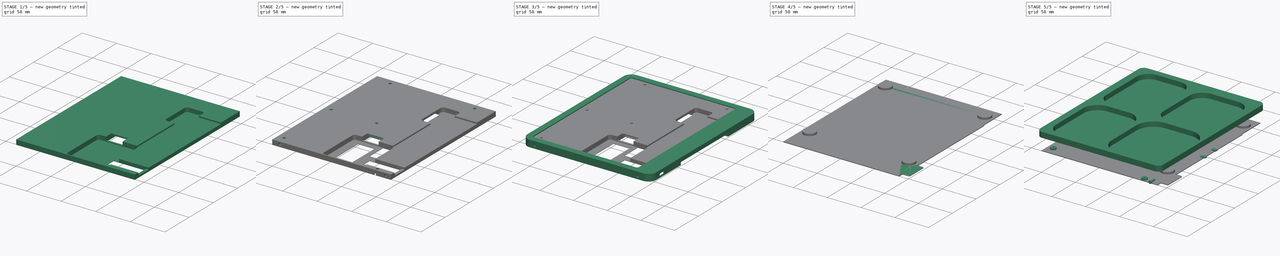
[diagram: build sequence overview — one tinted view per stage of 5, left to right]
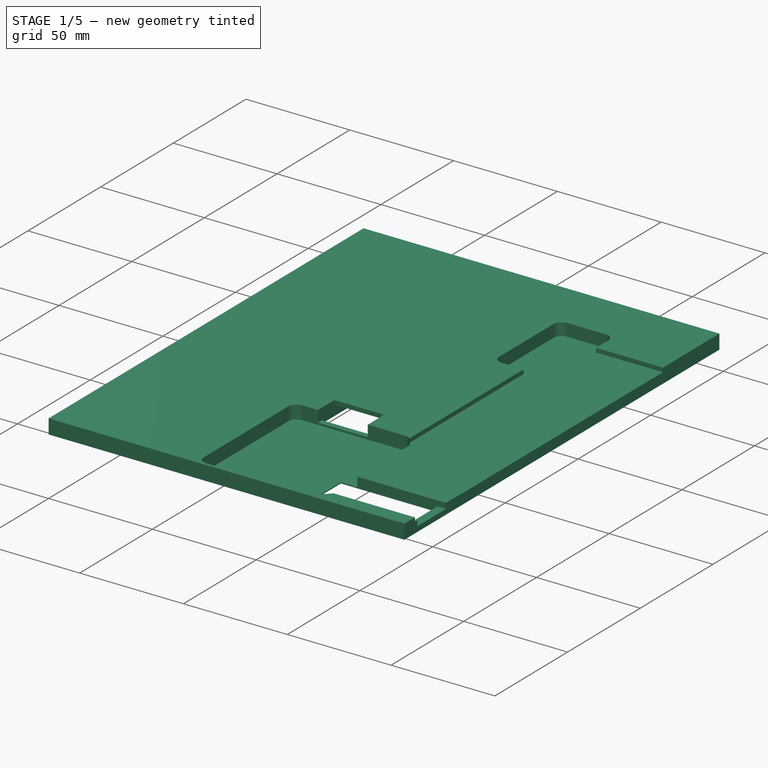
[diagram: stage 1 of 5 — iso view after this stage's code; geometry added in this stage tinted green]
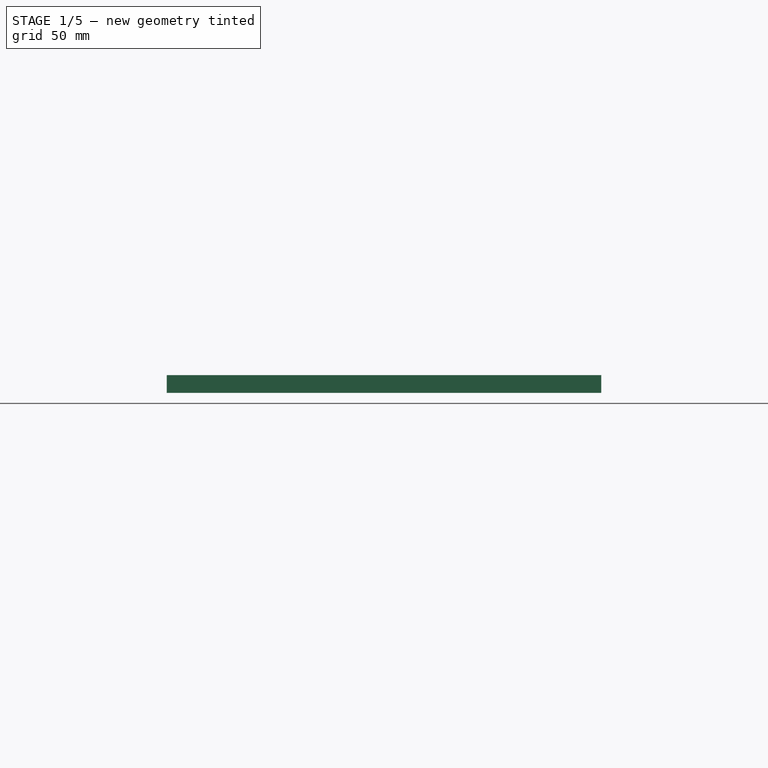
[diagram: stage 1 of 5 — front view after this stage's code; geometry added in this stage tinted green]
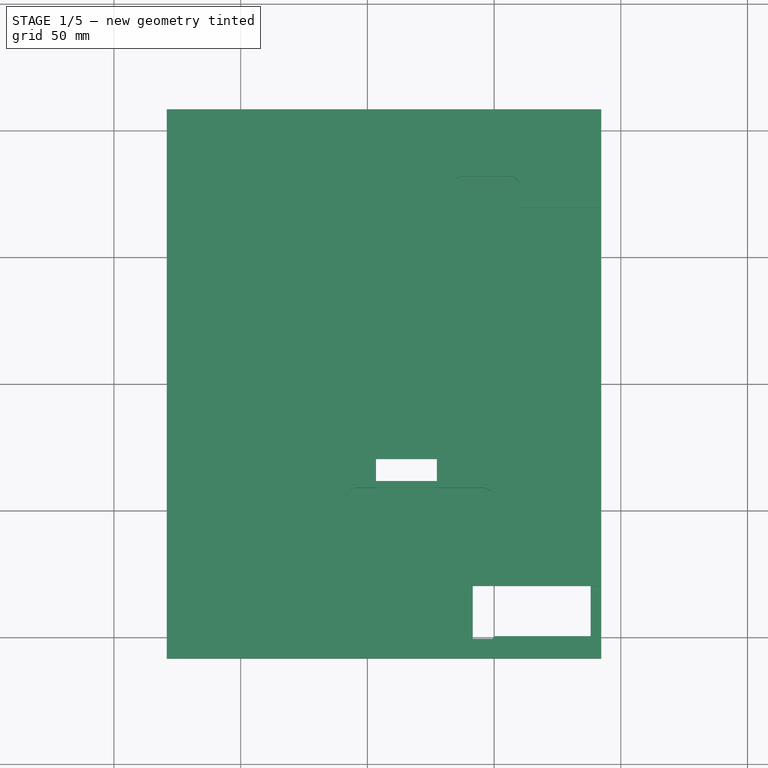
[diagram: stage 1 of 5 — top view after this stage's code; geometry added in this stage tinted green]
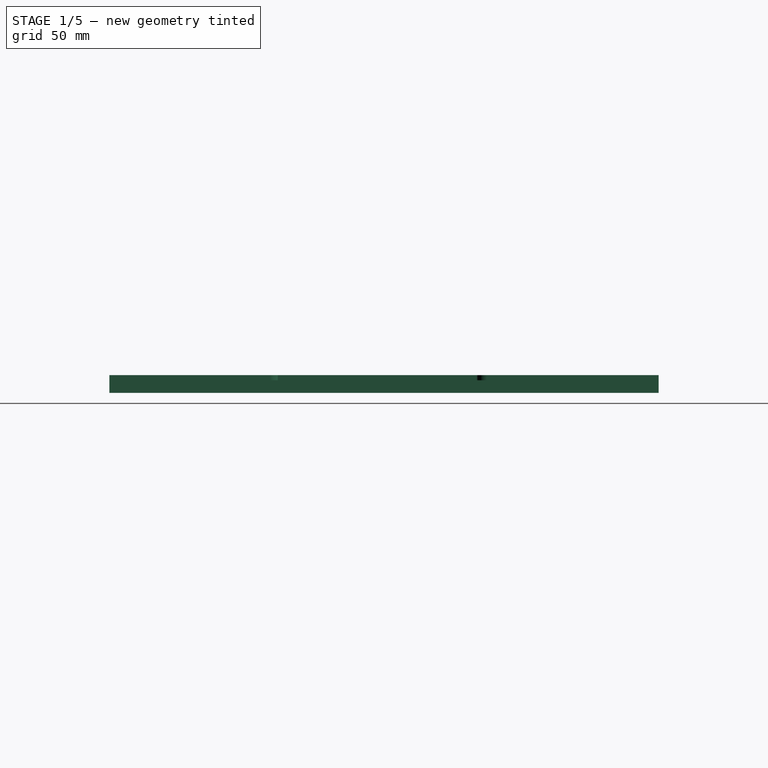
[diagram: stage 1 of 5 — right view after this stage's code; geometry added in this stage tinted green]
FCSTD DOCUMENT  (FreeCAD 2024.2R37240 (Git))
Label: freezer-display-assembly
License: All rights reserved
LicenseURL: http://en.wikipedia.org/wiki/All_rights_reserved
objects: Sketcher::SketchObject×45, PartDesign::Pocket×32, PartDesign::Pad×10, App::Link×9, PartDesign::Plane×9, PartDesign::CoordinateSystem×6, PartDesign::Body×5, PartDesign::SubShapeBinder×4, App::DocumentObjectGroup×3, App::FeaturePython×1, Image::ImagePlane×1, PartDesign::Chamfer×1, Part::FeaturePython×1, App::Part×1, PartDesign::Hole×1, PartDesign::Mirrored×1
note: 159 computed .brp shape members not serialized (recipe doc carries the construction recipe); baked Part::Feature solids carry a one-line shape summary decoded from their .brp
EXTERNAL_REF file=waveshare_10.3_1872x1404_EPD.FCStd obj=display_center
EXTERNAL_REF file=waveshare_10.3_1872x1404_EPD.FCStd obj=Body
EXTERNAL_REF file=FPC_to_FFC_board.FCStd obj=LCS_0
EXTERNAL_REF file=FPC_to_FFC_board.FCStd obj=FPC_to_FFC
EXTERNAL_REF file=PCB-assembly.FCStd obj=LCS_Origin
EXTERNAL_REF file=PCB-assembly.FCStd obj=Assembly
EXTERNAL_REF file=3M_bumpon_SJ5312.FCStd obj=mounting_surface
EXTERNAL_REF file=3M_bumpon_SJ5312.FCStd obj=Body

FEATURE [Sketcher::SketchObject] Sketch017
  AttachmentOffset = pos=(0,0,8) rot=(0,0,1;0rad)
  AttachmentSupport = -> [XY_Plane006]
  FullyConstrained = true
  MapMode = 5
  Placement = pos=(0,0,-8) rot=(0,1,0;3.14159rad)
  sketch-geometry (5):
    g0: LineSegment StartX=-92.255 StartY=108.35 StartZ=0 EndX=79.145 EndY=108.35 EndZ=0
    g1: LineSegment StartX=79.145 StartY=108.35 StartZ=0 EndX=79.145 EndY=-108.35 EndZ=0
    g2: LineSegment StartX=79.145 StartY=-108.35 StartZ=0 EndX=-92.255 EndY=-108.35 EndZ=0
    g3: LineSegment StartX=-92.255 StartY=-108.35 StartZ=0 EndX=-92.255 EndY=108.35 EndZ=0
    g4: GeomPoint X=-79.145 Y=108.35 Z=0
  constraints (12):
    c: Coincident(g0,g1)
    c: Coincident(g1,g2)
    c: Coincident(g2,g3)
    c: Coincident(g3,g0)
    c: Horizontal(g0)
    c: Horizontal(g2)
    c: Vertical(g3)
    c: Symmetric(g0,g1,g-1)
    c: DistanceY(g1,g1) = 216.7
    c: Symmetric(g4,g0,g-2)
    c: DistanceX(g0,g-1) = 92.255
    c: DistanceX(g0,g0) = 171.4
FEATURE [PartDesign::Pad] Pad008  label="bulk"
  Direction = (0,0,-1)
  Length = 7
  Length2 = 10
  Profile = -> Sketch017
  ReferenceAxis = -> Sketch017 [N_Axis]
  Refine = true
  Reversed = true
  Suppressed = false
  Type = 0
FEATURE [PartDesign::Plane] DatumPlane002  label="back-side"
  Length = 209.945
  Placement = pos=(0,0,-8) rot=(1,0,0;3.14159rad)
  ResizeMode = 0
  Width = 255.245
FEATURE [PartDesign::Plane] DatumPlane003  label="dispaly-side"
  Length = 209.945
  Placement = pos=(0,0,-1) rot=(0,0,1;0rad)
  ResizeMode = 0
  Width = 255.245
FEATURE [Sketcher::SketchObject] Sketch020
  AttachmentSupport = -> [DatumPlane003]
  FullyConstrained = false
  MapMode = 5
  Placement = pos=(0,0,-1) rot=(0,0,1;0rad)
  sketch-geometry (4):
    g0: LineSegment StartX=109.341 StartY=69.5 StartZ=0 EndX=48.1742 EndY=69.5 EndZ=0
    g1: LineSegment StartX=48.1742 StartY=69.5 StartZ=0 EndX=48.1742 EndY=-69.5 EndZ=0
    g2: LineSegment StartX=48.1742 StartY=-69.5 StartZ=0 EndX=109.341 EndY=-69.5 EndZ=0
    g3: LineSegment StartX=109.341 StartY=-69.5 StartZ=0 EndX=109.341 EndY=69.5 EndZ=0
  constraints (9):
    c: Coincident(g1,g2)
    c: Coincident(g2,g3)
    c: Coincident(g3,g0)
    c: Horizontal(g0)
    c: Horizontal(g2)
    c: Vertical(g1)
    c: Coincident(g0,g1)
    c: Symmetric(g2,g0,g-1)
    c: DistanceY(g3,g3) = 139
FEATURE [PartDesign::Pocket] Pocket010  label="FPC-calbe-slot"
  BaseFeature = -> Pad008
  Direction = (0,0,-1)
  Length = 2
  Length2 = 5
  Profile = -> Sketch020
  ReferenceAxis = -> Sketch020 [N_Axis]
  Refine = true
  Suppressed = false
  Type = 0
FEATURE [Sketcher::SketchObject] Sketch021
  AttachmentSupport = -> [DatumPlane003]
  FullyConstrained = false
  MapMode = 5
  Placement = pos=(0,0,-1) rot=(0,0,1;0rad)
  sketch-geometry (10):
    g0: ArcOfCircle CenterX=56 CenterY=78.009 CenterZ=0 NormalX=0 NormalY=0 NormalZ=1 AngleXU=0 Radius=4 StartAngle=1.7e-15 EndAngle=1.5708
    g1: LineSegment StartX=60 StartY=78.009 StartZ=0 EndX=60 EndY=40.6525 EndZ=0
    g2: ArcOfCircle CenterX=56 CenterY=40.6525 CenterZ=0 NormalX=0 NormalY=0 NormalZ=1 AngleXU=0 Radius=4 StartAngle=4.71239 EndAngle=6.28319
    g3: LineSegment StartX=56 StartY=36.6525 StartZ=0 EndX=37.5 EndY=36.6525 EndZ=0
    g4: ArcOfCircle CenterX=37.5 CenterY=40.6525 CenterZ=0 NormalX=0 NormalY=0 NormalZ=1 AngleXU=0 Radius=4 StartAngle=3.14159 EndAngle=4.71239
    g5: LineSegment StartX=33.5 StartY=40.6525 StartZ=0 EndX=33.5 EndY=78.009 EndZ=0
    g6: ArcOfCircle CenterX=37.5 CenterY=78.009 CenterZ=0 NormalX=0 NormalY=0 NormalZ=1 AngleXU=0 Radius=4 StartAngle=1.5708 EndAngle=3.14159
    g7: LineSegment StartX=37.5 StartY=82.009 StartZ=0 EndX=56 EndY=82.009 EndZ=0
    g8: GeomPoint X=60 Y=82.009 Z=0
    g9: GeomPoint X=33.5 Y=36.6525 Z=0
  constraints (22):
    c: Tangent(g0,g1) = 1.5708
    c: Tangent(g1,g2) = 1.5708
    c: Tangent(g2,g3) = 1.5708
    c: Tangent(g3,g4) = 1.5708
    c: Tangent(g4,g5) = 1.5708
    c: Tangent(g5,g6) = 1.5708
    c: Tangent(g6,g7) = 1.5708
    c: Tangent(g7,g0) = 1.5708
    c: Horizontal(g3)
    c: Horizontal(g7)
    c: Vertical(g1)
    c: Vertical(g5)
    c: Equal(g0,g2)
    c: Equal(g2,g4)
    c: Equal(g4,g6)
    c: PointOnObject(g8,g1)
    c: PointOnObject(g8,g7)
    c: PointOnObject(g9,g3)
    c: PointOnObject(g9,g5)
    c: Diameter(g0) = 8
    c: DistanceX(g3,g3) = 18.5
    c: DistanceX(g-1,g2) = 56
FEATURE [PartDesign::Pocket] Pocket011  label="FPC-to-FFC-pocket"
  BaseFeature = -> Pocket010
  Direction = (0,0,-1)
  Length = 6
  Length2 = 5
  Profile = -> Sketch021
  ReferenceAxis = -> Sketch021 [N_Axis]
  Refine = true
  Suppressed = false
  Type = 0
FEATURE [Sketcher::SketchObject] Sketch022
  AttachmentSupport = -> [DatumPlane002]
  FullyConstrained = false
  MapMode = 5
  Placement = pos=(0,0,-8) rot=(1,0,0;3.14159rad)
  sketch-geometry (4):
    g0: LineSegment StartX=27.4009 StartY=-100.162 StartZ=0 EndX=3.40089 EndY=-100.162 EndZ=0
    g1: LineSegment StartX=3.40089 StartY=-100.162 StartZ=0 EndX=3.40089 EndY=38.2396 EndZ=0
    g2: LineSegment StartX=3.40089 StartY=38.2396 StartZ=0 EndX=27.4009 EndY=38.2396 EndZ=0
    g3: LineSegment StartX=27.4009 StartY=38.2396 StartZ=0 EndX=27.4009 EndY=-100.162 EndZ=0
  constraints (10):
    c: Coincident(g0,g1)
    c: Coincident(g1,g2)
    c: Coincident(g2,g3)
    c: Coincident(g3,g0)
    c: Horizontal(g0)
    c: Horizontal(g2)
    c: Vertical(g1)
    c: Vertical(g3)
    c: DistanceX(g2,g2) = 24
    c: DistanceX(g-1,g0) = 3.40089
FEATURE [PartDesign::Pocket] Pocket012  label="FFC-cable-slot"
  BaseFeature = -> Pocket011
  Direction = (0,0,1)
  Length = 5
  Length2 = 5
  Profile = -> Sketch022
  ReferenceAxis = -> Sketch022 [N_Axis]
  Refine = true
  Suppressed = false
  Type = 0
FEATURE [App::Link] PCB_assembly  label="PCB-assembly"
  AttachedBy = #LCS_Origin
  AttachedTo = Parent Assembly#LCS_Origin
  AttachmentOffset = pos=(50.5,-90,-2.5) rot=(-0.707107,-0.707107,0;3.14159rad)
  LinkPlacement = pos=(50.5,-90,-2.5) rot=(-0.707107,-0.707107,0;3.14159rad)
  LinkedObject = -> <external PCB-assembly.FCStd>#Assembly
  Placement = pos=(50.5,-90,-2.5) rot=(-0.707107,-0.707107,0;3.14159rad)
  SolverId = Asm4EE
  expr: Placement = LCS_Origin.Placement * AttachmentOffset * PCB_assembly#LCS_Origin.Placement ^ -1
FEATURE [Sketcher::SketchObject] Sketch025
  AttachmentSupport = -> [DatumPlane003]
  FullyConstrained = false
  MapMode = 5
  Placement = pos=(0,0,-1) rot=(0,0,1;0rad)
  sketch-geometry (8):
    g0: LineSegment StartX=93.2468 StartY=-69.3047 StartZ=0 EndX=61.3879 EndY=-69.3047 EndZ=0
    g1: LineSegment StartX=61.3879 StartY=-69.3047 StartZ=0 EndX=55.0111 EndY=-64.2434 EndZ=0
    g2: LineSegment StartX=55.0111 StartY=-64.2434 StartZ=0 EndX=41.3305 EndY=-64.2434 EndZ=0
    g3: LineSegment StartX=41.3305 StartY=-64.2434 StartZ=0 EndX=41.3305 EndY=-102.943 EndZ=0
    g4: LineSegment StartX=48.6868 StartY=-105.844 StartZ=0 EndX=53.0779 EndY=-101.142 EndZ=0
    g5: LineSegment StartX=53.0779 StartY=-101.142 StartZ=0 EndX=93.2468 EndY=-101.142 EndZ=0
    g6: LineSegment StartX=93.2468 StartY=-101.142 StartZ=0 EndX=93.2468 EndY=-69.3047 EndZ=0
    g7: ArcOfCircle CenterX=45.5805 CenterY=-102.943 CenterZ=0 NormalX=0 NormalY=0 NormalZ=1 AngleXU=0 Radius=4.25 StartAngle=3.14159 EndAngle=5.532
  constraints (14):
    c: Horizontal(g0)
    c: Coincident(g0,g1)
    c: Coincident(g1,g2)
    c: Coincident(g2,g3)
    c: Vertical(g3)
    c: Coincident(g4,g5)
    c: Horizontal(g5)
    c: Coincident(g5,g6)
    c: Vertical(g6)
    c: Coincident(g0,g6)
    c: Horizontal(g2)
    c: Tangent(g7,g4) = -1.5708
    c: Tangent(g7,g3) = -1.5708
    c: Diameter(g7) = 8.5
FEATURE [PartDesign::Pocket] Pocket014  label="PCB-recess-1"
  BaseFeature = -> Pocket012
  Direction = (0,0,-1)
  Length = 1.9
  Length2 = 5
  Profile = -> Sketch025
  ReferenceAxis = -> Sketch025 [N_Axis]
  Refine = true
  Suppressed = false
  Type = 0
FEATURE [Sketcher::SketchObject] Sketch026
  AttachmentSupport = -> [DatumPlane003]
  FullyConstrained = false
  MapMode = 5
  Placement = pos=(0,0,-1) rot=(0,0,1;0rad)
  sketch-geometry (7):
    g0: LineSegment StartX=41.5727 StartY=-79.7249 StartZ=0 EndX=88.1006 EndY=-79.7249 EndZ=0
    g1: LineSegment StartX=88.1006 StartY=-79.7249 StartZ=0 EndX=88.1006 EndY=-99.5249 EndZ=0
    g2: LineSegment StartX=88.1006 StartY=-99.5249 StartZ=0 EndX=50.1347 EndY=-99.5249 EndZ=0
    g3: LineSegment StartX=41.5727 StartY=-99.4267 StartZ=0 EndX=41.5727 EndY=-79.7249 EndZ=0
    g4: LineSegment StartX=50.1347 StartY=-99.5249 StartZ=0 EndX=49.402 EndY=-100.487 EndZ=0
    g5: LineSegment StartX=49.402 StartY=-100.487 StartZ=0 EndX=41.5727 EndY=-100.487 EndZ=0
    g6: LineSegment StartX=41.5727 StartY=-100.487 StartZ=0 EndX=41.5727 EndY=-99.4267 EndZ=0
  constraints (15):
    c: Coincident(g0,g1)
    c: Coincident(g1,g2)
    c: Coincident(g3,g0)
    c: Horizontal(g0)
    c: Horizontal(g2)
    c: Vertical(g1)
    c: Vertical(g3)
    c: Coincident(g4,g5)
    c: Horizontal(g5)
    c: Coincident(g5,g6)
    c: Coincident(g6,g3)
    c: Vertical(g6)
    c: Coincident(g2,g4)
    c: DistanceX(g-1,g2) = 50.1347
    c: DistanceY(g1,g1) = 19.8
FEATURE [PartDesign::Pocket] Pocket015  label="PCB-recess-2"
  BaseFeature = -> Pocket014
  Direction = (0,0,-1)
  Length = 7
  Length2 = 5
  Profile = -> Sketch026
  ReferenceAxis = -> Sketch026 [N_Axis]
  Refine = true
  Suppressed = false
  Type = 0
FEATURE [Sketcher::SketchObject] Sketch027
  AttachmentSupport = -> [DatumPlane003]
  FullyConstrained = false
  MapMode = 5
  Placement = pos=(0,0,-1) rot=(0,0,1;0rad)
  sketch-geometry (10):
    g0: ArcOfCircle CenterX=-4.12153 CenterY=-44.9187 CenterZ=0 NormalX=0 NormalY=0 NormalZ=1 AngleXU=0 Radius=4 StartAngle=1.5708 EndAngle=3.14159
    g1: LineSegment StartX=-4.12153 StartY=-40.9187 StartZ=0 EndX=45.4999 EndY=-40.9187 EndZ=0
    g2: ArcOfCircle CenterX=45.4999 CenterY=-44.9187 CenterZ=0 NormalX=0 NormalY=0 NormalZ=1 AngleXU=0 Radius=4 StartAngle=7e-16 EndAngle=1.5708
    g3: LineSegment StartX=49.4999 StartY=-44.9187 StartZ=0 EndX=49.4999 EndY=-102.988 EndZ=0
    g4: ArcOfCircle CenterX=45.4999 CenterY=-102.988 CenterZ=0 NormalX=0 NormalY=0 NormalZ=1 AngleXU=0 Radius=4 StartAngle=4.71239 EndAngle=6.28319
    g5: LineSegment StartX=45.4999 StartY=-106.988 StartZ=0 EndX=-4.12153 EndY=-106.988 EndZ=0
    g6: ArcOfCircle CenterX=-4.12153 CenterY=-102.988 CenterZ=0 NormalX=0 NormalY=0 NormalZ=1 AngleXU=0 Radius=4 StartAngle=3.14159 EndAngle=4.71239
    g7: LineSegment StartX=-8.12153 StartY=-102.988 StartZ=0 EndX=-8.12153 EndY=-44.9187 EndZ=0
    g8: GeomPoint X=-8.12153 Y=-40.9187 Z=0
    g9: GeomPoint X=49.4999 Y=-106.988 Z=0
  constraints (20):
    c: Tangent(g0,g1) = 1.5708
    c: Tangent(g1,g2) = 1.5708
    c: Tangent(g2,g3) = 1.5708
    c: Tangent(g3,g4) = 1.5708
    c: Tangent(g4,g5) = 1.5708
    c: Tangent(g5,g6) = 1.5708
    c: Tangent(g6,g7) = 1.5708
    c: Tangent(g7,g0) = 1.5708
    c: Horizontal(g1)
    c: Horizontal(g5)
    c: Vertical(g3)
    c: Vertical(g7)
    c: Equal(g0,g2)
    c: Equal(g2,g4)
    c: Equal(g4,g6)
    c: PointOnObject(g8,g1)
    c: PointOnObject(g8,g7)
    c: PointOnObject(g9,g3)
    c: PointOnObject(g9,g5)
    c: Diameter(g4) = 8
FEATURE [PartDesign::Pocket] Pocket016  label="PCB-recess-3"
  BaseFeature = -> Pocket015
  Direction = (0,0,-1)
  Length = 6.5
  Length2 = 5
  Profile = -> Sketch027
  ReferenceAxis = -> Sketch027 [N_Axis]
  Refine = true
  Suppressed = false
  Type = 0
FEATURE [Sketcher::SketchObject] Sketch028
  AttachmentSupport = -> [DatumPlane003]
  ExternalGeometry = -> [Sketch022]
  FullyConstrained = false
  MapMode = 5
  Placement = pos=(0,0,-1) rot=(0,0,1;0rad)
  sketch-geometry (4):
    g0: LineSegment StartX=3.40089 StartY=-29.6561 StartZ=0 EndX=27.4009 EndY=-29.6561 EndZ=0
    g1: LineSegment StartX=27.4009 StartY=-29.6561 StartZ=0 EndX=27.4009 EndY=-41.6561 EndZ=0
    g2: LineSegment StartX=27.4009 StartY=-41.6561 StartZ=0 EndX=3.40089 EndY=-41.7974 EndZ=0
    g3: LineSegment StartX=3.40089 StartY=-41.7974 StartZ=0 EndX=3.40089 EndY=-29.6561 EndZ=0
  constraints (10):
    c: Coincident(g1,g2)
    c: Coincident(g2,g3)
    c: Vertical(g1)
    c: Vertical(g3)
    c: Coincident(g1,g0)
    c: Coincident(g3,g0)
    c: PointOnObject(g0,g-5)
    c: PointOnObject(g0,g-4)
    c: DistanceY(g1,g1) = 12
    c: Horizontal(g0)
FEATURE [PartDesign::Pocket] Pocket017  label="FFC-clearance-2"
  BaseFeature = -> Pocket016
  Direction = (0,0,-1)
  Length = 5.5
  Length2 = 5
  Profile = -> Sketch028
  ReferenceAxis = -> Sketch028 [N_Axis]
  Refine = true
  Suppressed = false
  Type = 0
FEATURE [Sketcher::SketchObject] Sketch029
  AttachmentSupport = -> [DatumPlane003]
  ExternalGeometry = -> [Sketch026]
  FullyConstrained = false
  MapMode = 5
  Placement = pos=(0,0,-1) rot=(0,0,1;0rad)
  sketch-geometry (4):
    g0: LineSegment StartX=88.1006 StartY=-79.7249 StartZ=0 EndX=94.3179 EndY=-79.7249 EndZ=0
    g1: LineSegment StartX=94.3179 StartY=-79.7249 StartZ=0 EndX=94.3179 EndY=-99.5249 EndZ=0
    g2: LineSegment StartX=94.3179 StartY=-99.5249 StartZ=0 EndX=88.1006 EndY=-99.5249 EndZ=0
    g3: LineSegment StartX=88.1006 StartY=-99.5249 StartZ=0 EndX=88.1006 EndY=-79.7249 EndZ=0
  constraints (9):
    c: Coincident(g0,g1)
    c: Coincident(g1,g2)
    c: Coincident(g2,g3)
    c: Coincident(g3,g0)
    c: Horizontal(g0)
    c: Horizontal(g2)
    c: Coincident(g0,g-3)
    c: Coincident(g2,g-4)
    c: Vertical(g1)
FEATURE [PartDesign::Pocket] Pocket018  label="PCB-recess-4"
  BaseFeature = -> Pocket017
  Direction = (0,0,-1)
  Length = 4.5
  Length2 = 5
  Profile = -> Sketch029
  ReferenceAxis = -> Sketch029 [N_Axis]
  Refine = true
  Suppressed = false
  Type = 0
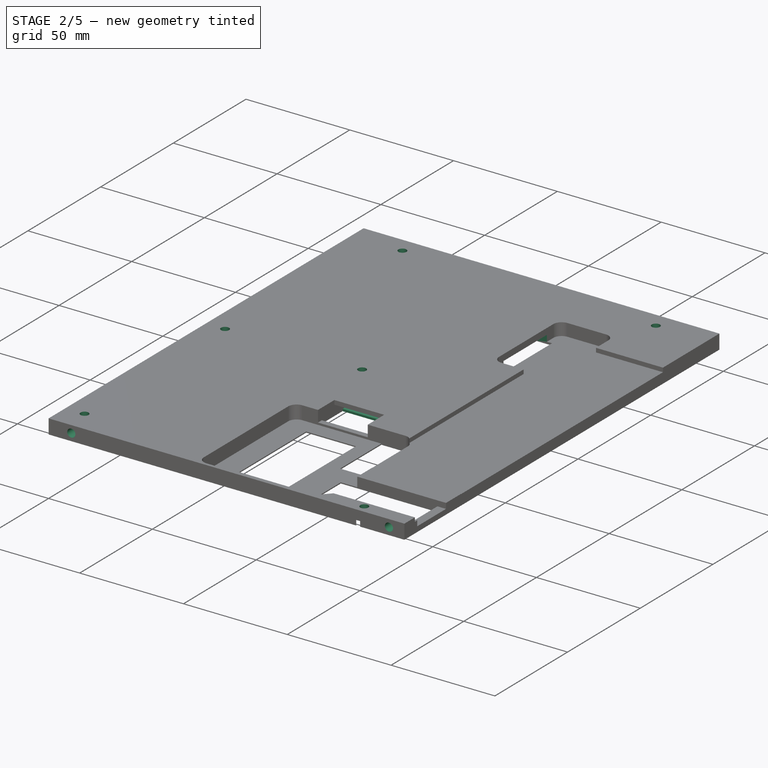
[diagram: stage 2 of 5 — iso view after this stage's code; geometry added in this stage tinted green]
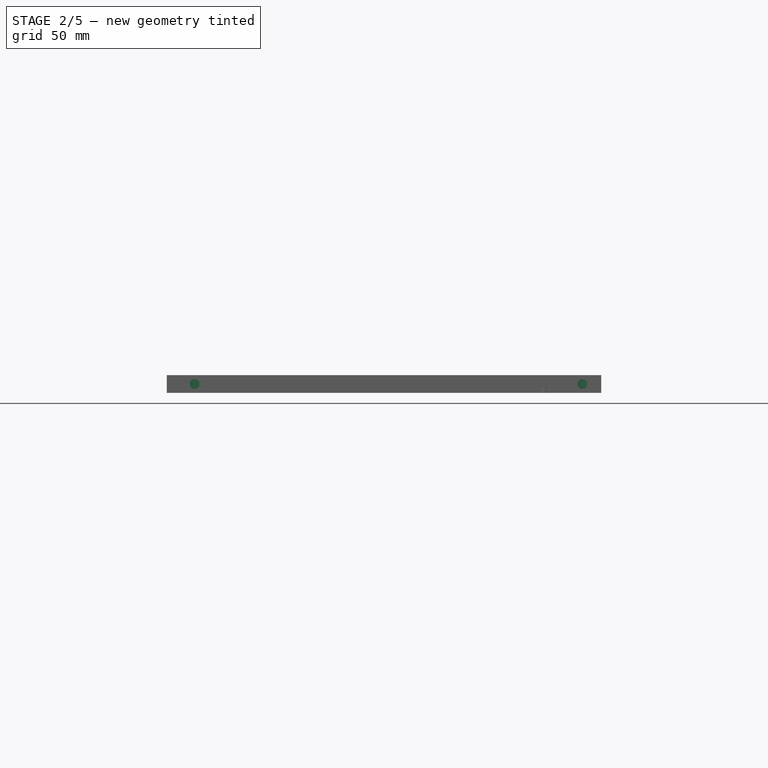
[diagram: stage 2 of 5 — front view after this stage's code; geometry added in this stage tinted green]
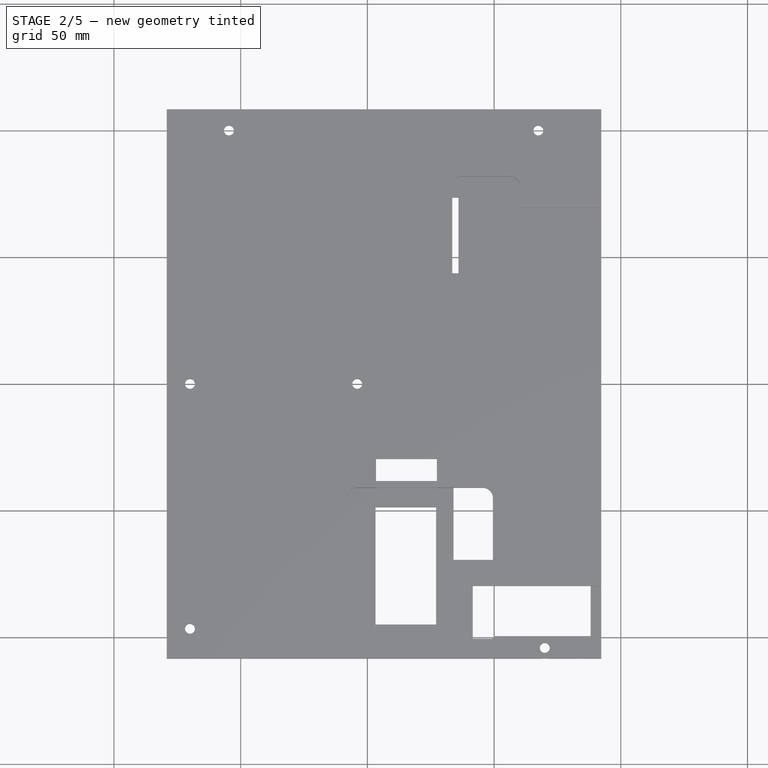
[diagram: stage 2 of 5 — top view after this stage's code; geometry added in this stage tinted green]
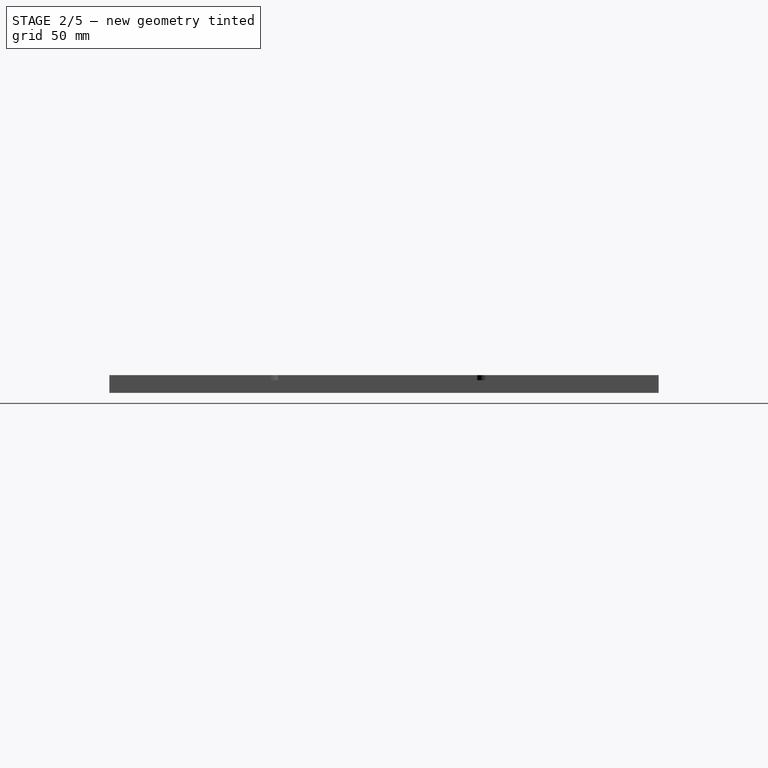
[diagram: stage 2 of 5 — right view after this stage's code; geometry added in this stage tinted green]
FEATURE [Sketcher::SketchObject] Sketch031
  AttachmentSupport = -> [DatumPlane003]
  ExternalGeometry = -> [Sketch027]
  FullyConstrained = false
  MapMode = 5
  Placement = pos=(0,0,-1) rot=(0,0,1;0rad)
  sketch-geometry (9):
    g0: LineSegment StartX=3.18153 StartY=-48.6977 StartZ=0 EndX=27.1267 EndY=-48.6977 EndZ=0
    g1: LineSegment StartX=27.1267 StartY=-48.6977 StartZ=0 EndX=27.1267 EndY=-94.8437 EndZ=0
    g2: LineSegment StartX=27.1267 StartY=-94.8437 StartZ=0 EndX=3.18153 EndY=-94.8437 EndZ=0
    g3: LineSegment StartX=3.18153 StartY=-94.8437 StartZ=0 EndX=3.18153 EndY=-48.6977 EndZ=0
    g4: LineSegment StartX=33.974 StartY=-40.9187 StartZ=0 EndX=45.4999 EndY=-40.9187 EndZ=0
    g5: LineSegment StartX=49.4999 StartY=-44.9187 StartZ=0 EndX=49.4999 EndY=-69.3315 EndZ=0
    g6: LineSegment StartX=49.4999 StartY=-69.3315 StartZ=0 EndX=33.974 EndY=-69.3315 EndZ=0
    g7: LineSegment StartX=33.974 StartY=-69.3315 StartZ=0 EndX=33.974 EndY=-40.9187 EndZ=0
    g8: ArcOfCircle CenterX=45.4999 CenterY=-44.9187 CenterZ=0 NormalX=0 NormalY=0 NormalZ=1 AngleXU=0 Radius=4 StartAngle=2.8e-15 EndAngle=1.5708
  constraints (18):
    c: Coincident(g0,g1)
    c: Coincident(g1,g2)
    c: Coincident(g2,g3)
    c: Coincident(g3,g0)
    c: Horizontal(g0)
    c: Horizontal(g2)
    c: Vertical(g1)
    c: Vertical(g3)
    c: Coincident(g5,g6)
    c: Coincident(g6,g7)
    c: Coincident(g7,g4)
    c: Horizontal(g4)
    c: Horizontal(g6)
    c: Vertical(g5)
    c: Vertical(g7)
    c: Tangent(g4,g8) = 1.5708
    c: Coincident(g4,g-3)
    c: Coincident(g-3,g5)
FEATURE [PartDesign::Pocket] Pocket020  label="PCB-recess-5"
  BaseFeature = -> Pocket018
  Direction = (0,0,-1)
  Length = 25
  Length2 = 5
  Profile = -> Sketch031
  ReferenceAxis = -> Sketch031 [N_Axis]
  Refine = true
  Suppressed = false
  Type = 0
FEATURE [Sketcher::SketchObject] Sketch033
  AttachmentSupport = -> [DatumPlane002]
  FullyConstrained = false
  MapMode = 5
  Placement = pos=(0,0,-8) rot=(1,0,0;3.14159rad)
  sketch-geometry (4):
    g0: LineSegment StartX=23.6196 StartY=-43.7679 StartZ=0 EndX=35.9661 EndY=-43.7679 EndZ=0
    g1: LineSegment StartX=35.9661 StartY=-43.7679 StartZ=0 EndX=35.9661 EndY=-73.5802 EndZ=0
    g2: LineSegment StartX=35.9661 StartY=-73.5802 StartZ=0 EndX=23.6196 EndY=-73.5802 EndZ=0
    g3: LineSegment StartX=23.6196 StartY=-73.5802 StartZ=0 EndX=23.6196 EndY=-43.7679 EndZ=0
  constraints (8):
    c: Coincident(g0,g1)
    c: Coincident(g1,g2)
    c: Coincident(g2,g3)
    c: Coincident(g3,g0)
    c: Horizontal(g0)
    c: Horizontal(g2)
    c: Vertical(g1)
    c: Vertical(g3)
FEATURE [PartDesign::Pocket] Pocket022
  BaseFeature = -> Pocket020
  Direction = (0,0,1)
  Length = 4
  Length2 = 5
  Offset = 1
  Profile = -> Sketch033
  ReferenceAxis = -> Sketch033 [N_Axis]
  Suppressed = false
  Type = 0
FEATURE [Sketcher::SketchObject] Sketch036
  AttachmentSupport = -> [Pad008]
  FullyConstrained = true
  MapMode = 5
  Placement = pos=(0,-108.35,0) rot=(1,0,0;1.5708rad)
  expr: Constraints[6] = 3.9 + 3.2
  sketch-geometry (4):
    g0: Circle CenterX=-68.2 CenterY=-4.5 CenterZ=0 NormalX=0 NormalY=0 NormalZ=1 AngleXU=0 Radius=1.95
    g1: Circle CenterX=84.8 CenterY=-4.5 CenterZ=0 NormalX=0 NormalY=0 NormalZ=1 AngleXU=0 Radius=1.95
    g2: LineSegment StartX=84.8 StartY=-4.5 StartZ=0 EndX=-68.2 EndY=-4.5 EndZ=0
    g3: Circle CenterX=84.8 CenterY=-4.5 CenterZ=0 NormalX=0 NormalY=0 NormalZ=1 AngleXU=0 Radius=3.55
  constraints (10):
    c: Equal(g0,g1)
    c: Diameter(g1) = 3.9
    c: Coincident(g2,g1)
    c: Coincident(g2,g0)
    c: Horizontal(g2)
    c: Coincident(g3,g1)
    c: Diameter(g3) = 7.1
    c: DistanceY(g1,g-1) = 4.5
    c: DistanceX(g-1,g1) = 84.8
    c: DistanceX(g0,g-1) = 68.2
FEATURE [PartDesign::Pocket] Pocket025  label="front-heated-insert-m2.5-4mm"
  BaseFeature = -> Pocket022
  Direction = (0,1,-2e-16)
  Length = 5
  Length2 = 5
  Profile = -> Sketch036
  ReferenceAxis = -> Sketch036 [N_Axis]
  Suppressed = false
  Type = 0
FEATURE [Sketcher::SketchObject] Sketch039
  AttachmentSupport = -> [Pad008]
  ExternalGeometry = -> [Sketch036]
  FullyConstrained = true
  MapMode = 5
  Placement = pos=(0,108.35,0) rot=(0,0.707107,0.707107;3.14159rad)
  sketch-geometry (2):
    g0: Circle CenterX=-84.8 CenterY=-4.5 CenterZ=0 NormalX=0 NormalY=0 NormalZ=1 AngleXU=0 Radius=1.95
    g1: Circle CenterX=68.2 CenterY=-4.5 CenterZ=0 NormalX=0 NormalY=0 NormalZ=1 AngleXU=0 Radius=1.95
  constraints (4):
    c: Coincident(g1,g-4)
    c: Equal(g-4,g1)
    c: Coincident(g0,g-3)
    c: Equal(g-3,g0)
FEATURE [PartDesign::Pocket] Pocket028  label="rear-heated-insert-m2.5-4mm"
  BaseFeature = -> Pocket025
  Direction = (0,-1,2e-16)
  Length = 5
  Length2 = 5
  Profile = -> Sketch039
  ReferenceAxis = -> Sketch039 [N_Axis]
  Suppressed = false
  Type = 0
FEATURE [Sketcher::SketchObject] Sketch048  label="M2.5-screw-locations"
  AttachmentSupport = -> [DatumPlane002]
  FullyConstrained = false
  MapMode = 5
  Placement = pos=(0,0,-8) rot=(1,0,0;3.14159rad)
  sketch-geometry (9):
    g0: Circle CenterX=-70 CenterY=0 CenterZ=0 NormalX=0 NormalY=0 NormalZ=1 AngleXU=0 Radius=1.95
    g1: Circle CenterX=-70 CenterY=96.6497 CenterZ=0 NormalX=0 NormalY=0 NormalZ=1 AngleXU=0 Radius=1.95
    g2: Circle CenterX=67.4746 CenterY=-100 CenterZ=0 NormalX=0 NormalY=0 NormalZ=1 AngleXU=0 Radius=1.95
    g3: Circle CenterX=-54.6125 CenterY=-100 CenterZ=0 NormalX=0 NormalY=0 NormalZ=1 AngleXU=0 Radius=1.95
    g4: Circle CenterX=70 CenterY=104.171 CenterZ=0 NormalX=0 NormalY=0 NormalZ=1 AngleXU=0 Radius=1.95
    g5: LineSegment StartX=-70 StartY=96.6497 StartZ=0 EndX=-70 EndY=0 EndZ=0
    g6: LineSegment StartX=-54.6125 StartY=-100 StartZ=0 EndX=67.4746 EndY=-100 EndZ=0
    g7: Circle CenterX=-4 CenterY=0 CenterZ=0 NormalX=0 NormalY=0 NormalZ=1 AngleXU=0 Radius=1.95
    g8: Circle CenterX=-4 CenterY=0 CenterZ=0 NormalX=0 NormalY=0 NormalZ=1 AngleXU=0 Radius=3.5
  constraints (15):
    c: PointOnObject(g0,g-1)
    c: Equal(g0,g1)
    c: Equal(g1,g2)
    c: Equal(g2,g3)
    c: Coincident(g5,g1)
    c: Coincident(g5,g0)
    c: Vertical(g5)
    c: Coincident(g6,g3)
    c: Coincident(g6,g2)
    c: Horizontal(g6)
    c: PointOnObject(g7,g-1)
    c: Equal(g0,g7)
    c: Coincident(g8,g7)
    c: Diameter(g8) = 7
    c: Equal(g4,g1)
FEATURE [Sketcher::SketchObject] Sketch049
  AttachmentSupport = -> [DatumPlane002]
  ExternalGeometry = -> [Sketch045]
  FullyConstrained = true
  MapMode = 5
  Placement = pos=(0,0,-8) rot=(1,0,0;3.14159rad)
  sketch-geometry (4):
    g0: Circle CenterX=-67 CenterY=-90 CenterZ=0 NormalX=0 NormalY=0 NormalZ=1 AngleXU=0 Radius=9.5
    g1: Circle CenterX=80 CenterY=-90 CenterZ=0 NormalX=0 NormalY=0 NormalZ=1 AngleXU=0 Radius=9.5
    g2: Circle CenterX=80 CenterY=70 CenterZ=0 NormalX=0 NormalY=0 NormalZ=1 AngleXU=0 Radius=9.5
    g3: Circle CenterX=-67 CenterY=70 CenterZ=0 NormalX=0 NormalY=0 NormalZ=1 AngleXU=0 Radius=9.5
  constraints (8):
    c: Coincident(g0,g-6)
    c: Coincident(g1,g-5)
    c: Coincident(g2,g-4)
    c: Coincident(g3,g-3)
    c: Equal(g0,g1)
    c: Equal(g1,g2)
    c: Equal(g2,g3)
    c: Diameter(g2) = 19
FEATURE [PartDesign::Pocket] Pocket030  label="bumpon-pockets"
  BaseFeature = -> Pad
  Direction = (0,0,1)
  Length = 3.5
  Length2 = 5
  Profile = -> Sketch049
  ReferenceAxis = -> Sketch049 [N_Axis]
  Refine = true
  Suppressed = false
  Type = 0
FEATURE [Sketcher::SketchObject] Sketch053
  AttachmentSupport = -> [DatumPlane002]
  ExternalGeometry = -> [Sketch048]
  FullyConstrained = false
  MapMode = 5
  Placement = pos=(0,0,-8) rot=(1,0,0;3.14159rad)
  sketch-geometry (6):
    g0: Circle CenterX=-70 CenterY=0 CenterZ=0 NormalX=0 NormalY=0 NormalZ=1 AngleXU=0 Radius=4.25
    g1: Circle CenterX=-4 CenterY=0 CenterZ=0 NormalX=0 NormalY=0 NormalZ=1 AngleXU=0 Radius=4.25
    g2: Circle CenterX=70 CenterY=104.201 CenterZ=0 NormalX=0 NormalY=0 NormalZ=1 AngleXU=0 Radius=4.25
    g3: Circle CenterX=-70 CenterY=96.6497 CenterZ=0 NormalX=0 NormalY=0 NormalZ=1 AngleXU=0 Radius=4.25
    g4: Circle CenterX=67.4746 CenterY=-100 CenterZ=0 NormalX=0 NormalY=0 NormalZ=1 AngleXU=0 Radius=4.25
    g5: Circle CenterX=-54.6125 CenterY=-100 CenterZ=0 NormalX=0 NormalY=0 NormalZ=1 AngleXU=0 Radius=4.25
  constraints (6):
    c: Equal(g0,g1)
    c: Equal(g2,g3)
    c: Equal(g3,g4)
    c: Equal(g4,g5)
    c: Diameter(g4) = 8.5
    c: Equal(g4,g1)
FEATURE [PartDesign::Pocket] Pocket033  label="M2.5-inset"
  BaseFeature = -> Pocket030
  Direction = (0,0,1)
  Length = 2.4
  Length2 = 5
  Profile = -> Sketch053
  ReferenceAxis = -> Sketch053 [N_Axis]
  Refine = true
  Suppressed = false
  Type = 0
FEATURE [Sketcher::SketchObject] Sketch054
  AttachmentSupport = -> [DatumPlane002]
  ExternalGeometry = -> [Sketch048]
  FullyConstrained = true
  MapMode = 5
  Placement = pos=(0,0,-8) rot=(1,0,0;3.14159rad)
  sketch-geometry (6):
    g0: Circle CenterX=-70 CenterY=96.6497 CenterZ=0 NormalX=0 NormalY=0 NormalZ=1 AngleXU=0 Radius=1.95
    g1: Circle CenterX=70 CenterY=104.171 CenterZ=0 NormalX=0 NormalY=0 NormalZ=1 AngleXU=0 Radius=1.95
    g2: Circle CenterX=-4 CenterY=0 CenterZ=0 NormalX=0 NormalY=0 NormalZ=1 AngleXU=0 Radius=1.95
    g3: Circle CenterX=-70 CenterY=0 CenterZ=0 NormalX=0 NormalY=0 NormalZ=1 AngleXU=0 Radius=1.95
    g4: Circle CenterX=-54.6125 CenterY=-100 CenterZ=0 NormalX=0 NormalY=0 NormalZ=1 AngleXU=0 Radius=1.95
    g5: Circle CenterX=67.4746 CenterY=-100 CenterZ=0 NormalX=0 NormalY=0 NormalZ=1 AngleXU=0 Radius=1.95
  constraints (12):
    c: Coincident(g0,g-3)
    c: Coincident(g1,g-8)
    c: Coincident(g2,g-7)
    c: Coincident(g3,g-4)
    c: Coincident(g4,g-5)
    c: Coincident(g5,g-6)
    c: Equal(g0,g1)
    c: Equal(g1,g2)
    c: Equal(g2,g3)
    c: Equal(g3,g4)
    c: Equal(g4,g5)
    c: Diameter(g5) = 3.9
FEATURE [PartDesign::Pocket] Pocket034  label="M2.5-heated-inserts-slot"
  BaseFeature = -> Pocket033
  Direction = (0,0,1)
  Length = 15
  Length2 = 5
  Profile = -> Sketch054
  ReferenceAxis = -> Sketch054 [N_Axis]
  Refine = true
  Suppressed = false
  Type = 0
FEATURE [Sketcher::SketchObject] Sketch055
  AttachmentSupport = -> [DatumPlane002]
  FullyConstrained = false
  MapMode = 5
  Placement = pos=(0,0,-8) rot=(1,0,0;3.14159rad)
  sketch-geometry (61):
    g0: LineSegment StartX=-47.5358 StartY=-89.9675 StartZ=0 EndX=-47.5358 EndY=-94.3675 EndZ=0
    g1: LineSegment StartX=-47.5358 StartY=-94.3675 StartZ=0 EndX=-32.1358 EndY=-94.3675 EndZ=0
    g2: LineSegment StartX=-32.1358 StartY=-94.3675 StartZ=0 EndX=-32.1358 EndY=-89.9675 EndZ=0
    g3: LineSegment StartX=-32.1358 StartY=-89.9675 StartZ=0 EndX=-47.5358 EndY=-89.9675 EndZ=0
    g4: LineSegment StartX=-54.4 StartY=45.6414 StartZ=0 EndX=-54.4 EndY=30.2414 EndZ=0
    g5: LineSegment StartX=-54.4 StartY=30.2414 StartZ=0 EndX=-50 EndY=30.2414 EndZ=0
    g6: LineSegment StartX=-50 StartY=30.2414 StartZ=0 EndX=-50 EndY=45.6414 EndZ=0
    g7: LineSegment StartX=-50 StartY=45.6414 StartZ=0 EndX=-54.4 EndY=45.6414 EndZ=0
    g8: LineSegment StartX=-54.4 StartY=20.2414 StartZ=0 EndX=-54.4 EndY=4.84145 EndZ=0
    g9: LineSegment StartX=-54.4 StartY=4.84145 StartZ=0 EndX=-50 EndY=4.84145 EndZ=0
    g10: LineSegment StartX=-50 StartY=4.84145 StartZ=0 EndX=-50 EndY=20.2414 EndZ=0
    g11: LineSegment StartX=-50 StartY=20.2414 StartZ=0 EndX=-54.4 EndY=20.2414 EndZ=0
    g12: LineSegment StartX=-54.4 StartY=-5.15855 StartZ=0 EndX=-54.4 EndY=-20.5586 EndZ=0
    g13: LineSegment StartX=-54.4 StartY=-20.5586 StartZ=0 EndX=-50 EndY=-20.5586 EndZ=0
    g14: LineSegment StartX=-50 StartY=-20.5586 StartZ=0 EndX=-50 EndY=-5.15855 EndZ=0
    g15: LineSegment StartX=-50 StartY=-5.15855 StartZ=0 EndX=-54.4 EndY=-5.15855 EndZ=0
    g16: LineSegment StartX=-54.4 StartY=30.2414 StartZ=0 EndX=-54.4 EndY=20.2414 EndZ=0
    g17: LineSegment StartX=-54.4 StartY=20.2414 StartZ=0 EndX=-54.4 EndY=4.84145 EndZ=0
    g18: LineSegment StartX=-54.4 StartY=4.84145 StartZ=0 EndX=-54.4 EndY=-5.15855 EndZ=0
    g19: LineSegment StartX=-54.4 StartY=-30.5586 StartZ=0 EndX=-54.4 EndY=-45.9586 EndZ=0
    g20: LineSegment StartX=-54.4 StartY=-45.9586 StartZ=0 EndX=-50 EndY=-45.9586 EndZ=0
    g21: LineSegment StartX=-50 StartY=-45.9586 StartZ=0 EndX=-50 EndY=-30.5586 EndZ=0
    g22: LineSegment StartX=-50 StartY=-30.5586 StartZ=0 EndX=-54.4 EndY=-30.5586 EndZ=0
    g23: LineSegment StartX=-54.4 StartY=-20.5586 StartZ=0 EndX=-54.4 EndY=-30.5586 EndZ=0
    g24: LineSegment StartX=-22.1358 StartY=-89.9675 StartZ=0 EndX=-22.1358 EndY=-94.3675 EndZ=0
    g25: LineSegment StartX=-22.1358 StartY=-94.3675 StartZ=0 EndX=-6.73584 EndY=-94.3675 EndZ=0
    g26: LineSegment StartX=-6.73584 StartY=-94.3675 StartZ=0 EndX=-6.73584 EndY=-89.9675 EndZ=0
    g27: LineSegment StartX=-6.73584 StartY=-89.9675 StartZ=0 EndX=-22.1358 EndY=-89.9675 EndZ=0
    g28: LineSegment StartX=-32.1358 StartY=-94.3675 StartZ=0 EndX=-22.1358 EndY=-94.3675 EndZ=0
    g29: LineSegment StartX=-58.5514 StartY=101.033 StartZ=0 EndX=-58.5514 EndY=96.633 EndZ=0
    g30: LineSegment StartX=-58.5514 StartY=96.633 StartZ=0 EndX=-43.1514 EndY=96.633 EndZ=0
    g31: LineSegment StartX=-43.1514 StartY=96.633 StartZ=0 EndX=-43.1514 EndY=101.033 EndZ=0
    g32: LineSegment StartX=-43.1514 StartY=101.033 StartZ=0 EndX=-58.5514 EndY=101.033 EndZ=0
    g33: LineSegment StartX=-33.1514 StartY=101.033 StartZ=0 EndX=-33.1514 EndY=96.633 EndZ=0
    g34: LineSegment StartX=-33.1514 StartY=96.633 StartZ=0 EndX=-17.7514 EndY=96.633 EndZ=0
    g35: LineSegment StartX=-17.7514 StartY=96.633 StartZ=0 EndX=-17.7514 EndY=101.033 EndZ=0
    g36: LineSegment StartX=-17.7514 StartY=101.033 StartZ=0 EndX=-33.1514 EndY=101.033 EndZ=0
    g37: LineSegment StartX=-43.1514 StartY=101.033 StartZ=0 EndX=-33.1514 EndY=101.033 EndZ=0
    g38: LineSegment StartX=40.1887 StartY=33.3511 StartZ=0 EndX=40.1887 EndY=17.9511 EndZ=0
    g39: LineSegment StartX=40.1887 StartY=17.9511 StartZ=0 EndX=44.5887 EndY=17.9511 EndZ=0
    g40: LineSegment StartX=44.5887 StartY=17.9511 StartZ=0 EndX=44.5887 EndY=33.3511 EndZ=0
    g41: LineSegment StartX=44.5887 StartY=33.3511 StartZ=0 EndX=40.1887 EndY=33.3511 EndZ=0
    g42: LineSegment StartX=40.1887 StartY=7.95108 StartZ=0 EndX=40.1887 EndY=-7.44892 EndZ=0
    g43: LineSegment StartX=40.1887 StartY=-7.44892 StartZ=0 EndX=44.5887 EndY=-7.44892 EndZ=0
    g44: LineSegment StartX=44.5887 StartY=-7.44892 StartZ=0 EndX=44.5887 EndY=7.95108 EndZ=0
    g45: LineSegment StartX=44.5887 StartY=7.95108 StartZ=0 EndX=40.1887 EndY=7.95108 EndZ=0
    g46: LineSegment StartX=40.1887 StartY=-17.4489 StartZ=0 EndX=40.1887 EndY=-32.8489 EndZ=0
    g47: LineSegment StartX=40.1887 StartY=-32.8489 StartZ=0 EndX=44.5887 EndY=-32.8489 EndZ=0
    g48: LineSegment StartX=44.5887 StartY=-32.8489 StartZ=0 EndX=44.5887 EndY=-17.4489 EndZ=0
    g49: LineSegment StartX=44.5887 StartY=-17.4489 StartZ=0 EndX=40.1887 EndY=-17.4489 EndZ=0
    g50: LineSegment StartX=40.1887 StartY=17.9511 StartZ=0 EndX=40.1887 EndY=7.95108 EndZ=0
    g51: LineSegment StartX=40.1887 StartY=7.95108 StartZ=0 EndX=40.1887 EndY=-7.44892 EndZ=0
    g52: LineSegment StartX=40.1887 StartY=-7.44892 StartZ=0 EndX=40.1887 EndY=-17.4489 EndZ=0
    g53: LineSegment StartX=71.2518 StartY=-72.5021 StartZ=0 EndX=71.2518 EndY=-76.9021 EndZ=0
    g54: LineSegment StartX=71.2518 StartY=-76.9021 StartZ=0 EndX=86.6518 EndY=-76.9021 EndZ=0
    g55: LineSegment StartX=86.6518 StartY=-76.9021 StartZ=0 EndX=86.6518 EndY=-72.5021 EndZ=0
    g56: LineSegment StartX=86.6518 StartY=-72.5021 StartZ=0 EndX=71.2518 EndY=-72.5021 EndZ=0
    g57: LineSegment StartX=43.0828 StartY=-97.4155 StartZ=0 EndX=43.0828 EndY=-101.816 EndZ=0
    g58: LineSegment StartX=43.0828 StartY=-101.816 StartZ=0 EndX=58.4828 EndY=-101.816 EndZ=0
    g59: LineSegment StartX=58.4828 StartY=-101.816 StartZ=0 EndX=58.4828 EndY=-97.4155 EndZ=0
    g60: LineSegment StartX=58.4828 StartY=-97.4155 StartZ=0 EndX=43.0828 EndY=-97.4155 EndZ=0
  constraints (162):
    c: Coincident(g0,g1)
    c: Coincident(g1,g2)
    c: Coincident(g2,g3)
    c: Coincident(g3,g0)
    c: Vertical(g0)
    c: Vertical(g2)
    c: Horizontal(g1)
    c: Horizontal(g3)
    c: Coincident(g4,g5)
    c: Coincident(g5,g6)
    c: Coincident(g6,g7)
    c: Coincident(g7,g4)
    c: Vertical(g4)
    c: Vertical(g6)
    c: Horizontal(g5)
    c: Horizontal(g7)
    c: DistanceY(g4,g4) = 15.4
    c: DistanceX(g7,g7) = 4.4
    c: Coincident(g8,g9)
    c: Coincident(g9,g10)
    c: Coincident(g10,g11)
    c: Coincident(g11,g8)
    c: Vertical(g8)
    c: Vertical(g10)
    c: Horizontal(g9)
    c: Horizontal(g11)
    c: Coincident(g12,g13)
    c: Coincident(g13,g14)
    c: Coincident(g14,g15)
    c: Coincident(g15,g12)
    c: Vertical(g12)
    c: Vertical(g14)
    c: Horizontal(g13)
    c: Horizontal(g15)
    c: Equal(g8,g4)
    c: Equal(g4,g12)
    c: Equal(g7,g11)
    c: Equal(g11,g15)
    c: Coincident(g4,g16)
    c: Coincident(g16,g8)
    c: Coincident(g16,g17)
    c: Coincident(g17,g8)
    c: Coincident(g17,g18)
    c: Coincident(g18,g12)
    c: Vertical(g18)
    c: Vertical(g16)
    c: Equal(g16,g18)
    c: DistanceY(g16,g16) = 10
    c: Coincident(g19,g20)
    c: Coincident(g20,g21)
    c: Coincident(g21,g22)
    c: Coincident(g22,g19)
    c: Vertical(g19)
    c: Vertical(g21)
    c: Horizontal(g20)
    c: Horizontal(g22)
    c: Coincident(g12,g23)
    c: Coincident(g23,g19)
    c: Vertical(g23)
    c: Equal(g13,g22)
    c: Equal(g19,g12)
    c: Equal(g18,g23)
    c: DistanceX(g3,g3) = 15.4
    c: DistanceY(g2,g2) = 4.4
    c: Coincident(g24,g25)
    c: Coincident(g25,g26)
    c: Coincident(g26,g27)
    c: Coincident(g27,g24)
    c: Vertical(g24)
    c: Vertical(g26)
    c: Horizontal(g25)
    c: Horizontal(g27)
    c: Coincident(g1,g28)
    c: Coincident(g28,g24)
    c: Horizontal(g28)
    c: DistanceX(g28,g28) = 10
    c: Equal(g27,g3)
    c: Equal(g24,g2)
    c: Coincident(g29,g30)
    c: Coincident(g30,g31)
    c: Coincident(g31,g32)
    c: Coincident(g32,g29)
    c: Vertical(g29)
    c: Vertical(g31)
    c: Horizontal(g30)
    c: Horizontal(g32)
    c: Coincident(g33,g34)
    c: Coincident(g34,g35)
    c: Coincident(g35,g36)
    c: Coincident(g36,g33)
    c: Vertical(g33)
    c: Vertical(g35)
    c: Horizontal(g34)
    c: Horizontal(g36)
    c: Equal(g32,g36)
    c: Equal(g32,g3)
    c: Equal(g0,g29)
    c: Equal(g29,g33)
    c: Coincident(g31,g37)
    c: Coincident(g37,g33)
    c: Horizontal(g37)
    c: Equal(g37,g28)
    c: Coincident(g38,g39)
    c: Coincident(g39,g40)
    c: Coincident(g40,g41)
    c: Coincident(g41,g38)
    c: Vertical(g38)
    c: Vertical(g40)
    c: Horizontal(g39)
    c: Horizontal(g41)
    c: Coincident(g42,g43)
    c: Coincident(g43,g44)
    c: Coincident(g44,g45)
    c: Coincident(g45,g42)
    c: Vertical(g42)
    c: Vertical(g44)
    c: Horizontal(g43)
    c: Horizontal(g45)
    c: Equal(g38,g42)
    c: Equal(g42,g4)
    c: Equal(g41,g45)
    c: Equal(g45,g11)
    c: Coincident(g46,g47)
    c: Coincident(g47,g48)
    c: Coincident(g48,g49)
    c: Coincident(g49,g46)
    c: Vertical(g46)
    c: Vertical(g48)
    c: Horizontal(g47)
    c: Horizontal(g49)
    c: Equal(g46,g42)
    c: Equal(g49,g43)
    c: Coincident(g38,g50)
    c: Coincident(g50,g42)
    c: Coincident(g50,g51)
    c: Coincident(g51,g42)
    c: Coincident(g51,g52)
    c: Coincident(g52,g46)
    c: Vertical(g52)
    c: Vertical(g50)
    c: Equal(g52,g16)
    c: Equal(g50,g52)
    c: Coincident(g53,g54)
    c: Coincident(g54,g55)
    c: Coincident(g55,g56)
    c: Coincident(g56,g53)
    c: Vertical(g53)
    c: Vertical(g55)
    c: Horizontal(g54)
    c: Horizontal(g56)
    c: Equal(g56,g3)
    c: Equal(g53,g0)
    c: Coincident(g57,g58)
    c: Coincident(g58,g59)
    c: Coincident(g59,g60)
    c: Coincident(g60,g57)
    c: Vertical(g57)
    c: Vertical(g59)
    c: Horizontal(g58)
    c: Horizontal(g60)
    c: Equal(g60,g56)
    c: Equal(g53,g57)
FEATURE [PartDesign::Pocket] Pocket035  label="magnet-slots"
  BaseFeature = -> Pocket034
  Direction = (0,0,1)
  Length = 4.4
  Length2 = 5
  Profile = -> Sketch055
  ReferenceAxis = -> Sketch055 [N_Axis]
  Refine = true
  Suppressed = false
  Type = 0
FEATURE [PartDesign::Body] Body002  label="internal-frame"
  Group = -> [Sketch017,Pad008,DatumPlane002,DatumPlane003,Sketch020,Pocket010,Sketch021,Pocket011,Sketch022,Pocket012,Sketch025,Pocket014,Sketch026,Pocket015,Sketch027,Pocket016,Sketch028,Pocket017,Sketch029,Pocket018,Pocket020,Sketch031,Sketch033,Pocket022,Sketch036,Pocket025,Sketch039,Pocket028,Sketch,Pad,Sketch045,Sketch048,Sketch049,Pocket030,Sketch053,Pocket033,Sketch054,Pocket034,Sketch055,Pocket035,+5 more]
  Origin = -> Origin006
  Tip = -> Pocket038
FEATURE [App::DocumentObjectGroup] Parts
  Group = -> [Body001,Body002,magnet,Body003]

RESOLVED EXTERNAL PARTS (link-assembly join: the EXTERNAL_REF files above that resolve inside this repo's crawl, each included once):
---- part 3M_bumpon_SJ5312.FCStd = doc fcstd_8d52c4807af3 ----
FCSTD DOCUMENT  (FreeCAD 2024.2R37240 (Git))
Label: 3M_bumpon_SJ5312
License: All rights reserved
LicenseURL: https://en.wikipedia.org/wiki/All_rights_reserved
objects: Sketcher::SketchObject×1, PartDesign::Revolution×1, PartDesign::CoordinateSystem×1, PartDesign::Body×1
note: 5 computed .brp shape members not serialized (recipe doc carries the construction recipe); baked Part::Feature solids carry a one-line shape summary decoded from their .brp

FEATURE [Sketcher::SketchObject] Sketch
  AttachmentSupport = -> [XZ_Plane]
  FullyConstrained = true
  MapMode = 5
  Placement = pos=(0,0,0) rot=(1,0,0;1.5708rad)
  sketch-geometry (6):
    g0: LineSegment StartX=0 StartY=0 StartZ=0 EndX=0 EndY=3.5 EndZ=0
    g1: LineSegment StartX=0 StartY=3.5 StartZ=0 EndX=5 EndY=3.5 EndZ=0
    g2: ArcOfCircle CenterX=0.130882 CenterY=0.5 CenterZ=0 NormalX=0 NormalY=0 NormalZ=1 AngleXU=0 Radius=5.71912 StartAngle=0 EndAngle=0.552194
    g3: LineSegment StartX=0 StartY=0 StartZ=0 EndX=6.35 EndY=0 EndZ=0
    g4: LineSegment StartX=6.35 StartY=0 StartZ=0 EndX=6.35 EndY=0.5 EndZ=0
    g5: LineSegment StartX=6.35 StartY=0.5 StartZ=0 EndX=5.85 EndY=0.5 EndZ=0
  constraints (18):
    c: Coincident(g-1,g0)
    c: PointOnObject(g0,g-2)
    c: DistanceY(g0,g0) = 3.5
    c: Coincident(g0,g1)
    c: Horizontal(g1)
    c: Coincident(g2,g1)
    c: Coincident(g0,g3)
    c: PointOnObject(g3,g-1)
    c: Coincident(g3,g4)
    c: Coincident(g4,g5)
    c: Coincident(g5,g2)
    c: Horizontal(g5)
    c: Vertical(g4)
    c: DistanceX(g3,g3) = 6.35
    c: DistanceY(g4,g4) = 0.5
    c: Equal(g5,g4)
    c: Perpendicular(g2,g5)
    c: DistanceX(g1,g1) = 5
FEATURE [PartDesign::Revolution] Revolution
  Angle = 360
  Angle2 = 60
  Axis = (0,2e-16,1)
  Base = (0,0,0)
  Placement = pos=(0,0,0) rot=(1,0,0;1.5708rad)
  Profile = -> Sketch
  ReferenceAxis = -> Sketch [V_Axis]
  Refine = true
  Reversed = true
  Suppressed = false
  Type = 0
FEATURE [PartDesign::CoordinateSystem] mounting_surface  label="mounting-surface"
  AttacherType = Attacher::AttachEngine3D
  AttachmentSupport = -> [Revolution]
  MapMode = 45
  Placement = pos=(1.8e-15,1.1e-15,0) rot=(0,1,0;3.14159rad)
FEATURE [PartDesign::Body] Body  label="bumpon"
  Group = -> [Sketch,Revolution,mounting_surface]
  Origin = -> Origin
  Tip = -> Revolution
---- part FPC_to_FFC_board.FCStd = doc fcstd_e2b22f15f93f ----
FCSTD DOCUMENT  (FreeCAD 0.20R29410 (Git))
Label: FPC_to_FFC_board
License: All rights reserved
LicenseURL: http://en.wikipedia.org/wiki/All_rights_reserved
objects: PartDesign::CoordinateSystem×5, Sketcher::SketchObject×2, PartDesign::Pad×2, PartDesign::Body×1
note: 12 computed .brp shape members not serialized (recipe doc carries the construction recipe); baked Part::Feature solids carry a one-line shape summary decoded from their .brp

FEATURE [PartDesign::CoordinateSystem] LCS_0
  AttacherType = Attacher::AttachEngine3D
  MapMode = 2
  Support = -> [X_Axis]
FEATURE [Sketcher::SketchObject] Sketch
  FullyConstrained = true
  MapMode = 5
  Support = -> [XY_Plane]
  sketch-geometry (14):
    g0: ArcOfCircle CenterX=-17.5 CenterY=7 CenterZ=0 NormalX=0 NormalY=0 NormalZ=1 AngleXU=0 Radius=3.5 StartAngle=1.5708 EndAngle=3.14159
    g1: LineSegment StartX=-17.5 StartY=10.5 StartZ=0 EndX=17.5 EndY=10.5 EndZ=0
    g2: ArcOfCircle CenterX=17.5 CenterY=7 CenterZ=0 NormalX=0 NormalY=0 NormalZ=1 AngleXU=0 Radius=3.5 StartAngle=0 EndAngle=1.5708
    g3: LineSegment StartX=21 StartY=7 StartZ=0 EndX=21 EndY=-7 EndZ=0
    g4: ArcOfCircle CenterX=17.5 CenterY=-7 CenterZ=0 NormalX=0 NormalY=0 NormalZ=1 AngleXU=0 Radius=3.5 StartAngle=4.71239 EndAngle=6.28319
    g5: LineSegment StartX=17.5 StartY=-10.5 StartZ=0 EndX=-17.5 EndY=-10.5 EndZ=0
    g6: ArcOfCircle CenterX=-17.5 CenterY=-7 CenterZ=0 NormalX=0 NormalY=0 NormalZ=1 AngleXU=0 Radius=3.5 StartAngle=3.14159 EndAngle=4.71239
    g7: LineSegment StartX=-21 StartY=-7 StartZ=0 EndX=-21 EndY=7 EndZ=0
    g8: GeomPoint X=-21 Y=10.5 Z=0
    g9: GeomPoint X=21 Y=-10.5 Z=0
    g10: Circle CenterX=-17.5 CenterY=7 CenterZ=0 NormalX=0 NormalY=0 NormalZ=1 AngleXU=0 Radius=1.5
    g11: Circle CenterX=-17.5 CenterY=-7 CenterZ=0 NormalX=0 NormalY=0 NormalZ=1 AngleXU=0 Radius=1.5
    g12: Circle CenterX=17.5 CenterY=7 CenterZ=0 NormalX=0 NormalY=0 NormalZ=1 AngleXU=0 Radius=1.5
    g13: Circle CenterX=17.5 CenterY=-7 CenterZ=0 NormalX=0 NormalY=0 NormalZ=1 AngleXU=0 Radius=1.5
  constraints (31):
    c: Tangent(g0,g1) = 1.5708
    c: Tangent(g1,g2) = 1.5708
    c: Tangent(g2,g3) = 1.5708
    c: Tangent(g3,g4) = 1.5708
    c: Tangent(g4,g5) = 1.5708
    c: Tangent(g5,g6) = 1.5708
    c: Tangent(g6,g7) = 1.5708
    c: Tangent(g7,g0) = 1.5708
    c: Horizontal(g1)
    c: Horizontal(g5)
    c: Vertical(g3)
    c: Vertical(g7)
    c: Equal(g0,g2)
    c: Equal(g2,g4)
    c: Equal(g4,g6)
    c: PointOnObject(g8,g1)
    c: PointOnObject(g8,g7)
    c: PointOnObject(g9,g3)
    c: PointOnObject(g9,g5)
    c: Symmetric(g4,g0,g-1)
    c: DistanceX(g0,g2) = 42
    c: DistanceY(g4,g1) = 21
    c: Coincident(g10,g0)
    c: Coincident(g11,g6)
    c: Coincident(g12,g2)
    c: Coincident(g13,g4)
    c: Equal(g10,g11)
    c: Equal(g11,g12)
    c: Equal(g12,g13)
    c: Diameter(g13) = 3
    c: DistanceY(g0,g0) = 3.5
FEATURE [PartDesign::Pad] Pad  label="PCB"
  Direction = (0,0,1)
  Length = 1.5
  Length2 = 10
  Profile = -> Sketch
  ReferenceAxis = -> Sketch [N_Axis]
  Refine = true
  Type = 0
FEATURE [Sketcher::SketchObject] Sketch001
  ExternalGeometry = -> [Sketch]
  FullyConstrained = false
  MapMode = 5
  Support = -> [XY_Plane]
  sketch-geometry (8):
    g0: LineSegment StartX=-12.25 StartY=10.5 StartZ=0 EndX=12.25 EndY=10.5 EndZ=0
    g1: LineSegment StartX=12.25 StartY=10.5 StartZ=0 EndX=12.25 EndY=4.30348 EndZ=0
    g2: LineSegment StartX=12.25 StartY=4.30348 StartZ=0 EndX=-12.25 EndY=4.30348 EndZ=0
    g3: LineSegment StartX=-12.25 StartY=4.30348 StartZ=0 EndX=-12.25 EndY=10.5 EndZ=0
    g4: LineSegment StartX=-12.25 StartY=-10.5 StartZ=0 EndX=12.25 EndY=-10.5 EndZ=0
    g5: LineSegment StartX=12.25 StartY=-10.5 StartZ=0 EndX=12.25 EndY=-4.30348 EndZ=0
    g6: LineSegment StartX=12.25 StartY=-4.30348 StartZ=0 EndX=-12.25 EndY=-4.30348 EndZ=0
    g7: LineSegment StartX=-12.25 StartY=-4.30348 StartZ=0 EndX=-12.25 EndY=-10.5 EndZ=0
  constraints (21):
    c: Coincident(g0,g1)
    c: Coincident(g1,g2)
    c: Coincident(g2,g3)
    c: Coincident(g3,g0)
    c: Horizontal(g0)
    c: Vertical(g1)
    c: Vertical(g3)
    c: PointOnObject(g0,g-3)
    c: Coincident(g4,g5)
    c: Coincident(g5,g6)
    c: Coincident(g6,g7)
    c: Coincident(g7,g4)
    c: Horizontal(g4)
    c: Vertical(g5)
    c: Vertical(g7)
    c: PointOnObject(g4,g-4)
    c: Symmetric(g5,g6,g-2)
    c: Symmetric(g1,g2,g-2)
    c: Equal(g6,g2)
    c: DistanceX(g2,g2) = 24.5
    c: Equal(g1,g5)
FEATURE [PartDesign::Pad] Pad001  label="connetors"
  BaseFeature = -> Pad
  Direction = (0,0,1)
  Length = 3.6
  Length2 = 10
  Profile = -> Sketch001
  ReferenceAxis = -> Sketch001 [N_Axis]
  Refine = true
  Type = 0
FEATURE [PartDesign::CoordinateSystem] mounting_point_A  label="mounting-point-A"
  AttacherType = Attacher::AttachEngine3D
  MapMode = 11
  Placement = pos=(-17.5,-7,0) rot=(0,0,1;1.5708rad)
  Support = -> [Pad001]
FEATURE [PartDesign::CoordinateSystem] mounting_point_B  label="mounting-point-B"
  AttacherType = Attacher::AttachEngine3D
  MapMode = 11
  Placement = pos=(17.5,-7,0) rot=(0,0,1;1.5708rad)
  Support = -> [Pad001]
FEATURE [PartDesign::CoordinateSystem] mounting_point_C  label="mounting-point-C"
  AttacherType = Attacher::AttachEngine3D
  MapMode = 11
  Placement = pos=(17.5,7,0) rot=(0,0,1;1.5708rad)
  Support = -> [Pad001]
FEATURE [PartDesign::CoordinateSystem] mounting_point_D  label="mounting-point-D"
  AttacherType = Attacher::AttachEngine3D
  MapMode = 11
  Placement = pos=(-17.5,7,0) rot=(0,0,1;1.5708rad)
  Support = -> [Pad001]
FEATURE [PartDesign::Body] FPC_to_FFC  label="FPC-to-FFC"
  Group = -> [LCS_0,Sketch,Pad,Sketch001,Pad001,mounting_point_A,mounting_point_B,mounting_point_C,mounting_point_D]
  Origin = -> Origin
  Tip = -> Pad001
---- part PCB-assembly.FCStd = doc fcstd_c0ba055c60d4 ----
FCSTD DOCUMENT  (FreeCAD 0.20R29410 (Git))
Label: PCB-assembly
License: All rights reserved
LicenseURL: http://en.wikipedia.org/wiki/All_rights_reserved
objects: App::DocumentObjectGroup×3, App::Link×3, PartDesign::CoordinateSystem×1, App::FeaturePython×1, Sketcher::SketchObject×1, App::Part×1
note: 2 computed .brp shape members not serialized (recipe doc carries the construction recipe); baked Part::Feature solids carry a one-line shape summary decoded from their .brp
EXTERNAL_REF file=IT8951_driver_board.FCStd obj=mounting_point_A
EXTERNAL_REF file=IT8951_driver_board.FCStd obj=Body
EXTERNAL_REF file=UnexpectedMaker_ProS3.FCStd obj=board_edge_A
EXTERNAL_REF file=UnexpectedMaker_ProS3.FCStd obj=ProS3_1
EXTERNAL_REF file=PCB-freezer-display.FCStd obj=screw_point_A
EXTERNAL_REF file=PCB-freezer-display.FCStd obj=Board_e244

FEATURE [App::DocumentObjectGroup] Parts
FEATURE [PartDesign::CoordinateSystem] LCS_Origin
  AttacherType = Attacher::AttachEngine3D
  MapMode = 2
  Support = -> [X_Axis]
FEATURE [App::DocumentObjectGroup] Constraints
FEATURE [App::FeaturePython] Variables  # WARN: FeaturePython — macro-defined, semantics opaque (R4)
  Type = App::PropertyContainer
FEATURE [App::DocumentObjectGroup] Configurations
FEATURE [App::Link] IT8951_board  label="IT8951-board"
  AttachedBy = #mounting_point_A
  AttachedTo = Parent Assembly#LCS_Origin
  AttachmentOffset = pos=(-13.03,-5,0) rot=(0,0,1;1.5708rad)
  LinkPlacement = pos=(15.97,-29.8001,0) rot=(0,0,1;0rad)
  LinkedObject = -> <external IT8951_driver_board.FCStd>#Body
  Placement = pos=(15.97,-29.8001,0) rot=(0,0,1;0rad)
  SolverId = Asm4EE
  expr: Placement = LCS_Origin.Placement * AttachmentOffset * IT8951_driver_board#mounting_point_A.Placement ^ -1
FEATURE [App::Link] ProS3_1  label="ProS3 1"
  AttachedBy = #board_edge_A
  AttachedTo = Parent Assembly#LCS_Origin
  AttachmentOffset = pos=(0,-0.2,0) rot=(-0.57735,0.57735,0.57735;4.18879rad)
  LinkPlacement = pos=(-8.89,51.8192,-1.29e-14) rot=(0,0,1;4.71239rad)
  LinkedObject = -> <external UnexpectedMaker_ProS3.FCStd>#ProS3_1
  Placement = pos=(-8.89,51.8192,-1.29e-14) rot=(0,0,1;4.71239rad)
  SolverId = Asm4EE
  expr: Placement = LCS_Origin.Placement * AttachmentOffset * UnexpectedMaker_ProS3#board_edge_A.Placement ^ -1
FEATURE [Sketcher::SketchObject] PCB_outline  label="PCB-outline"
  FullyConstrained = false
  sketch-geometry (15):
    g0: LineSegment StartX=-10.5 StartY=50.824 StartZ=0 EndX=-10.5 EndY=2.50484 EndZ=0
    g1: LineSegment StartX=25.0351 StartY=-7.44798 StartZ=0 EndX=25.0351 EndY=4.53464 EndZ=0
    g2: LineSegment StartX=24.7931 StartY=5.07566 StartZ=0 EndX=18.442 EndY=10.7534 EndZ=0
    g3: LineSegment StartX=18.2 StartY=11.2944 StartZ=0 EndX=18.2 EndY=50.824 EndZ=0
    g4: LineSegment StartX=17.2 StartY=51.824 StartZ=0 EndX=-9.5 EndY=51.824 EndZ=0
    g5: ArcOfCircle CenterX=-9.5 CenterY=50.824 CenterZ=0 NormalX=0 NormalY=0 NormalZ=1 AngleXU=0 Radius=1 StartAngle=1.5708 EndAngle=3.14159
    g6: ArcOfCircle CenterX=17.2 CenterY=50.824 CenterZ=0 NormalX=0 NormalY=0 NormalZ=1 AngleXU=0 Radius=1 StartAngle=7e-16 EndAngle=1.5708
    g7: ArcOfCircle CenterX=18.9257 CenterY=11.2944 CenterZ=0 NormalX=0 NormalY=0 NormalZ=1 AngleXU=0 Radius=0.725698 StartAngle=3.14159 EndAngle=3.98291
    g8: ArcOfCircle CenterX=24.3094 CenterY=4.53464 CenterZ=0 NormalX=0 NormalY=0 NormalZ=1 AngleXU=0 Radius=0.725698 StartAngle=-9e-16 EndAngle=0.841316
    g9: ArcOfCircle CenterX=24.0351 CenterY=-7.44798 CenterZ=0 NormalX=0 NormalY=0 NormalZ=1 AngleXU=0 Radius=1 StartAngle=4.71095 EndAngle=6.28319
    g10: LineSegment StartX=-10.7358 StartY=1.9695 StartZ=0 EndX=-15.4147 EndY=-2.31274 EndZ=0
    g11: ArcOfCircle CenterX=-13.0517 CenterY=-4.89465 CenterZ=0 NormalX=0 NormalY=0 NormalZ=1 AngleXU=0 Radius=3.5 StartAngle=2.31195 EndAngle=4.71095
    g12: LineSegment StartX=-13.0568 StartY=-8.39465 StartZ=0 EndX=24.0337 EndY=-8.44798 EndZ=0
    g13: ArcOfCircle CenterX=-11.2257 CenterY=2.50484 CenterZ=0 NormalX=0 NormalY=0 NormalZ=1 AngleXU=0 Radius=0.725698 StartAngle=5.45354 EndAngle=6.28319
    g14: Circle CenterX=-13.0517 CenterY=-4.89465 CenterZ=0 NormalX=0 NormalY=0 NormalZ=1 AngleXU=0 Radius=1.5
  constraints (28):
    c: Vertical(g0)
    c: Vertical(g3)
    c: Horizontal(g4)
    c: Tangent(g4,g5) = -1.5708
    c: Tangent(g0,g5) = -1.5708
    c: Tangent(g4,g6) = -1.5708
    c: Tangent(g3,g6) = -1.5708
    c: Vertical(g1)
    c: DistanceX(g0,g-1) = 10.5
    c: DistanceX(g-1,g3) = 18.2
    c: Equal(g6,g5)
    c: Diameter(g6) = 2
    c: Tangent(g3,g7) = 1.5708
    c: Tangent(g2,g7) = 1.5708
    c: Tangent(g2,g8) = -1.5708
    c: Tangent(g1,g8) = -1.5708
    c: Equal(g8,g7)
    c: Tangent(g1,g9) = -1.5708
    c: Equal(g9,g6)
    c: Tangent(g11,g10) = -1.5708
    c: Tangent(g12,g11) = -1.5708
    c: Diameter(g11) = 7
    c: Tangent(g0,g13) = 1.5708
    c: Tangent(g10,g13) = 1.5708
    c: Equal(g13,g7)
    c: Coincident(g14,g11)
    c: Diameter(g14) = 3
    c: Tangent(g12,g9) = -1.5708
FEATURE [App::Link] freezer_display_pcb  label="freezer-display-pcb"
  AttachedBy = #screw_point_A
  AttachedTo = IT8951_board#mounting_point_A
  LinkPlacement = pos=(-167.384,87.3036,0) rot=(0,0,1;0rad)
  LinkedObject = -> <external PCB-freezer-display.FCStd>#Board_e244
  Placement = pos=(-167.384,87.3036,0) rot=(0,0,1;0rad)
  SolverId = Asm4EE
  expr: Placement = IT8951_board.Placement * IT8951_driver_board#mounting_point_A.Placement * AttachmentOffset * PCB_freezer_display#screw_point_A.Placement ^ -1
FEATURE [App::Part] Assembly  label="PCB-assembly"
  AssemblyType = Part::Link
  Group = -> [LCS_Origin,Constraints,Variables,Configurations,IT8951_board,ProS3_1,PCB_outline,freezer_display_pcb]
  Origin = -> Origin
  Type = Assembly
---- part waveshare_10.3_1872x1404_EPD.FCStd = doc fcstd_94e55fbf95ce ----
FCSTD DOCUMENT  (FreeCAD 0.20R29410 (Git))
Label: waveshare_10.3_1872x1404_EPD
License: All rights reserved
LicenseURL: http://en.wikipedia.org/wiki/All_rights_reserved
objects: Sketcher::SketchObject×4, PartDesign::Pad×2, PartDesign::CoordinateSystem×1, PartDesign::Body×1
note: 10 computed .brp shape members not serialized (recipe doc carries the construction recipe); baked Part::Feature solids carry a one-line shape summary decoded from their .brp

FEATURE [Sketcher::SketchObject] Sketch
  FullyConstrained = true
  MapMode = 5
  Support = -> [XY_Plane]
  sketch-geometry (4):
    g0: LineSegment StartX=-78.625 StartY=104.83 StartZ=0 EndX=78.625 EndY=104.83 EndZ=0
    g1: LineSegment StartX=78.625 StartY=104.83 StartZ=0 EndX=78.625 EndY=-104.83 EndZ=0
    g2: LineSegment StartX=78.625 StartY=-104.83 StartZ=0 EndX=-78.625 EndY=-104.83 EndZ=0
    g3: LineSegment StartX=-78.625 StartY=-104.83 StartZ=0 EndX=-78.625 EndY=104.83 EndZ=0
  constraints (11):
    c: Coincident(g0,g1)
    c: Coincident(g1,g2)
    c: Coincident(g2,g3)
    c: Coincident(g3,g0)
    c: Horizontal(g0)
    c: Horizontal(g2)
    c: Vertical(g1)
    c: Vertical(g3)
    c: Symmetric(g1,g0,g-1)
    c: DistanceX(g0,g0) = 157.25
    c: DistanceY(g1,g1) = 209.66
FEATURE [PartDesign::Pad] Pad  label="active-area"
  Direction = (0,0,1)
  Length = 0.78
  Length2 = 10
  Profile = -> Sketch
  ReferenceAxis = -> Sketch [N_Axis]
  Refine = true
  Type = 0
FEATURE [Sketcher::SketchObject] Sketch001
  ExternalGeometry = -> [Sketch]
  FullyConstrained = true
  MapMode = 5
  Support = -> [XY_Plane]
  sketch-geometry (6):
    g0: LineSegment StartX=-82.145 StartY=108.35 StartZ=0 EndX=92.255 EndY=108.35 EndZ=0
    g1: LineSegment StartX=92.255 StartY=108.35 StartZ=0 EndX=92.255 EndY=-108.35 EndZ=0
    g2: LineSegment StartX=92.255 StartY=-108.35 StartZ=0 EndX=-82.145 EndY=-108.35 EndZ=0
    g3: LineSegment StartX=-82.145 StartY=-108.35 StartZ=0 EndX=-82.145 EndY=108.35 EndZ=0
    g4: LineSegment StartX=-78.625 StartY=104.83 StartZ=0 EndX=-82.145 EndY=104.83 EndZ=0
    g5: LineSegment StartX=-78.625 StartY=104.83 StartZ=0 EndX=-78.625 EndY=108.35 EndZ=0
  constraints (20):
    c: Coincident(g0,g1)
    c: Coincident(g1,g2)
    c: Coincident(g2,g3)
    c: Coincident(g3,g0)
    c: Horizontal(g0)
    c: Horizontal(g2)
    c: Vertical(g1)
    c: Symmetric(g0,g2,g-1)
    c: DistanceY(g3,g3) = 216.7
    c: DistanceX(g0,g0) = 174.4
    c: Coincident(g4,g-3)
    c: PointOnObject(g4,g3)
    c: Horizontal(g4)
    c: Coincident(g5,g4)
    c: PointOnObject(g5,g0)
    c: Vertical(g5)
    c: Equal(g5,g4)
    c: DistanceX(g4,g4) = 3.52
    c: DistanceX(g4,g-1) = 82.145
    c: DistanceX(g-1,g0) = 92.255
FEATURE [PartDesign::Pad] Pad001  label="frame"
  BaseFeature = -> Pad
  Direction = (0,0,1)
  Length = 0.77
  Length2 = 10
  Profile = -> Sketch001
  ReferenceAxis = -> Sketch001 [N_Axis]
  Refine = true
  Type = 0
FEATURE [Sketcher::SketchObject] Sketch002
  AttachmentOffset = pos=(0,0,-58.85) rot=(0,0,1;0rad)
  ExternalGeometry = -> [Sketch001]
  FullyConstrained = true
  MapMode = 5
  Placement = pos=(0,58.85,1.31e-14) rot=(1,0,0;1.5708rad)
  Support = -> [XZ_Plane]
  expr: .AttachmentOffset.Base.z = -(216.7 / 2 - 49.5)
  sketch-geometry (2):
    g0: ArcOfCircle CenterX=92.255 CenterY=-2.5 CenterZ=0 NormalX=0 NormalY=0 NormalZ=1 AngleXU=0 Radius=2.5 StartAngle=4.71239 EndAngle=7.85398
    g1: LineSegment StartX=92.255 StartY=-5 StartZ=0 EndX=52.255 EndY=-5 EndZ=0
  constraints (6):
    c: Coincident(g0,g-3)
    c: Horizontal(g1)
    c: Tangent(g1,g0) = 1.5708
    c: Tangent(g0,g-1)
    c: DistanceX(g1,g1) = 40
    c: Diameter(g0) = 5
FEATURE [PartDesign::CoordinateSystem] display_center  label="display-center"
  AttacherType = Attacher::AttachEngine3D
  MapMode = 45
  Placement = pos=(-6e-16,-8e-16,0.78) rot=(0,0,1;0rad)
  Support = -> [Pad001]
FEATURE [Sketcher::SketchObject] Sketch003  label="FPC-bulk-width"
  ExternalGeometry = -> [Sketch001]
  FullyConstrained = false
  MapMode = 5
  Support = -> [XY_Plane]
  sketch-geometry (4):
    g0: LineSegment StartX=78.625 StartY=68.35 StartZ=0 EndX=102.72 EndY=68.35 EndZ=0
    g1: LineSegment StartX=102.72 StartY=68.35 StartZ=0 EndX=102.72 EndY=-68.35 EndZ=0
    g2: LineSegment StartX=102.72 StartY=-68.35 StartZ=0 EndX=78.625 EndY=-68.35 EndZ=0
    g3: LineSegment StartX=78.625 StartY=-68.35 StartZ=0 EndX=78.625 EndY=68.35 EndZ=0
  constraints (11):
    c: Coincident(g0,g1)
    c: Coincident(g1,g2)
    c: Coincident(g2,g3)
    c: Coincident(g3,g0)
    c: Horizontal(g0)
    c: Horizontal(g2)
    c: Vertical(g1)
    c: Vertical(g3)
    c: DistanceY(g-4,g1) = 40
    c: DistanceY(g0,g-3) = 40
    c: DistanceY(g1,g1) = 136.7
FEATURE [PartDesign::Body] Body  label="EPD_10.3-inch"
  Group = -> [Sketch,Pad,Sketch001,Pad001,Sketch002,display_center,Sketch003]
  Origin = -> Origin
  Tip = -> Pad001
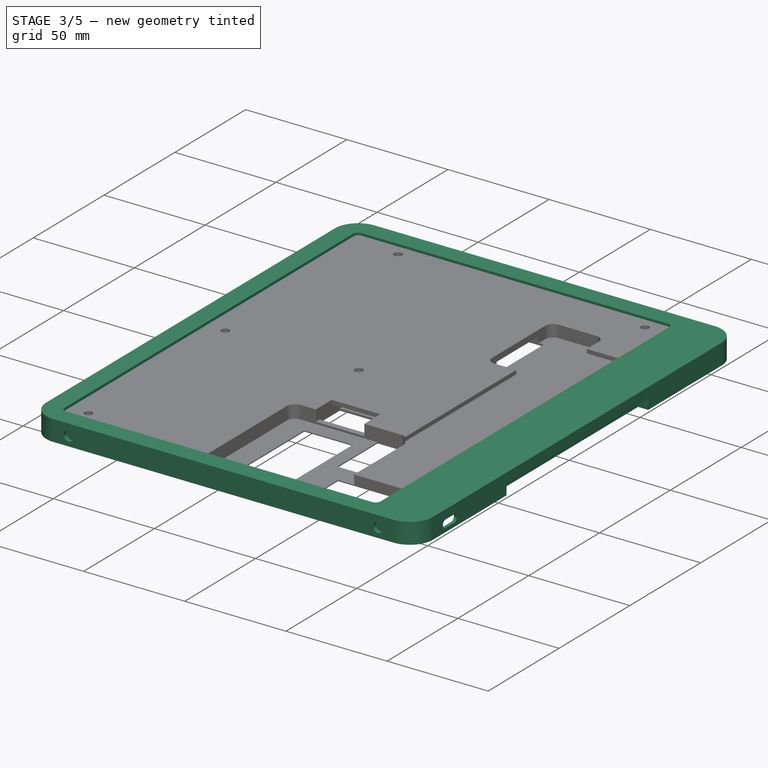
[diagram: stage 3 of 5 — iso view after this stage's code; geometry added in this stage tinted green]
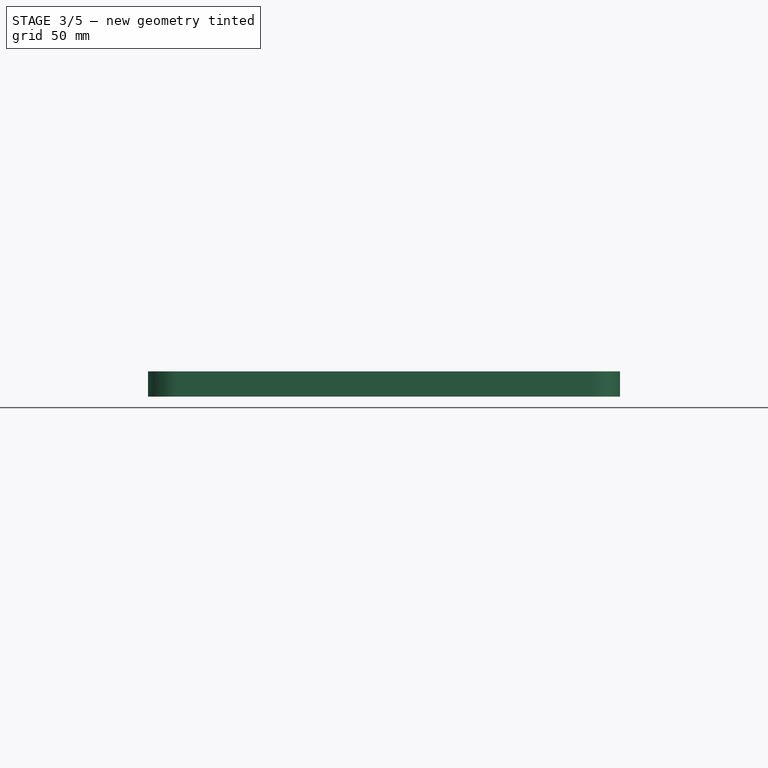
[diagram: stage 3 of 5 — front view after this stage's code; geometry added in this stage tinted green]
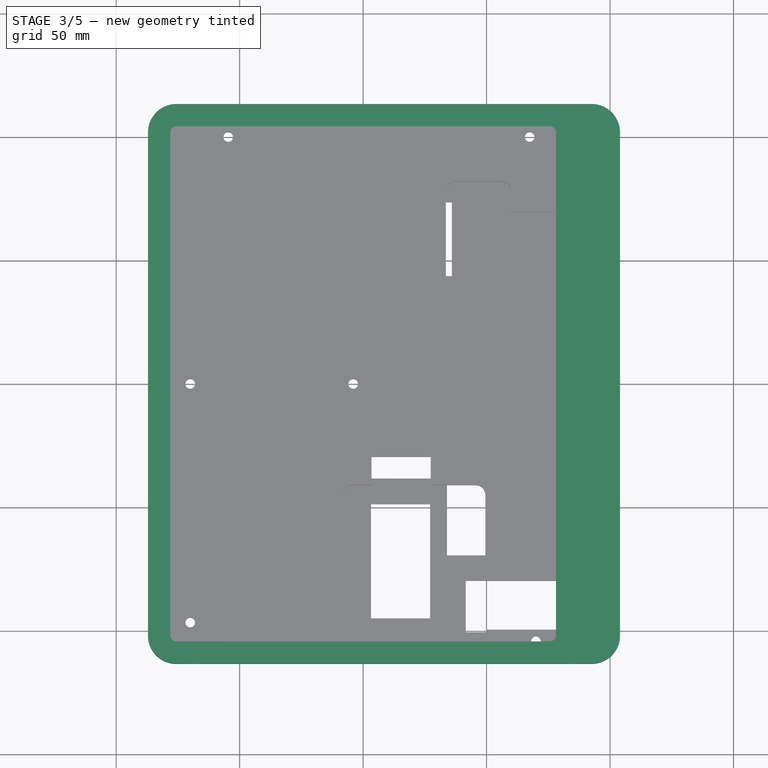
[diagram: stage 3 of 5 — top view after this stage's code; geometry added in this stage tinted green]
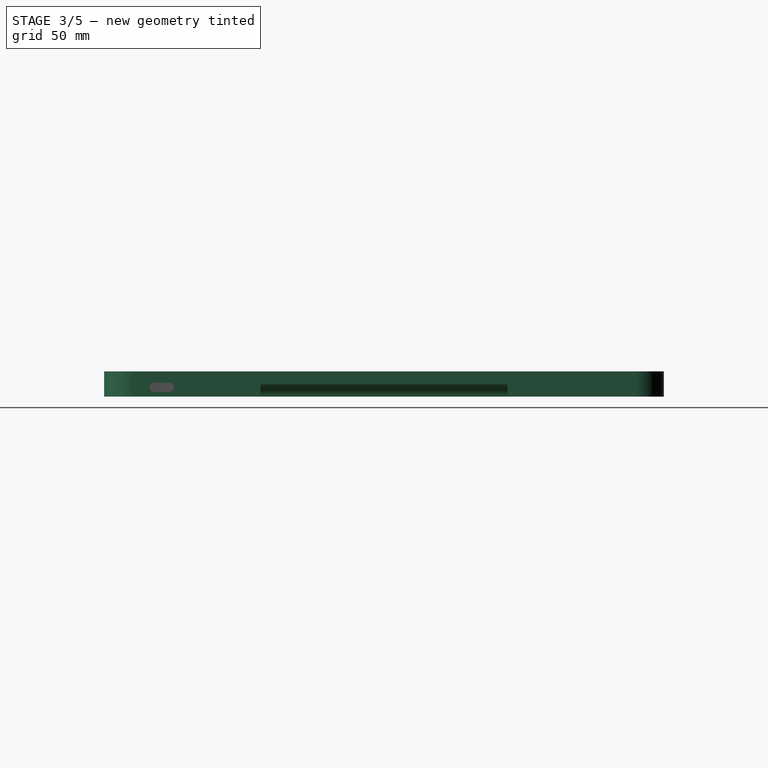
[diagram: stage 3 of 5 — right view after this stage's code; geometry added in this stage tinted green]
FEATURE [PartDesign::Body] Body  label="placeholder"
  Group = -> [Sketch004,Pad003,Sketch005,Pocket]
  Origin = -> Origin003
  Tip = -> Pocket
FEATURE [Sketcher::SketchObject] Sketch006
  AttachmentSupport = -> [XY_Plane004]
  FullyConstrained = false
  MapMode = 5
  sketch-geometry (21):
    g0: ArcOfCircle CenterX=-75.625 CenterY=101.83 CenterZ=0 NormalX=0 NormalY=0 NormalZ=1 AngleXU=0 Radius=2.5 StartAngle=1.5708 EndAngle=3.14159
    g1: LineSegment StartX=-75.625 StartY=104.33 StartZ=0 EndX=75.625 EndY=104.33 EndZ=0
    g2: ArcOfCircle CenterX=75.625 CenterY=101.83 CenterZ=0 NormalX=0 NormalY=0 NormalZ=1 AngleXU=0 Radius=2.5 StartAngle=8e-16 EndAngle=1.5708
    g3: LineSegment StartX=78.125 StartY=101.83 StartZ=0 EndX=78.125 EndY=-101.83 EndZ=0
    g4: ArcOfCircle CenterX=75.625 CenterY=-101.83 CenterZ=0 NormalX=0 NormalY=0 NormalZ=1 AngleXU=0 Radius=2.5 StartAngle=4.71239 EndAngle=6.28319
    g5: LineSegment StartX=75.625 StartY=-104.33 StartZ=0 EndX=-75.625 EndY=-104.33 EndZ=0
    g6: ArcOfCircle CenterX=-75.625 CenterY=-101.83 CenterZ=0 NormalX=0 NormalY=0 NormalZ=1 AngleXU=0 Radius=2.5 StartAngle=3.14159 EndAngle=4.71239
    g7: LineSegment StartX=-78.125 StartY=-101.83 StartZ=0 EndX=-78.125 EndY=101.83 EndZ=0
    g8: GeomPoint X=-78.125 Y=104.33 Z=0
    g9: GeomPoint X=78.125 Y=-104.33 Z=0
    g10: ArcOfCircle CenterX=-75.625 CenterY=101.83 CenterZ=0 NormalX=0 NormalY=0 NormalZ=1 AngleXU=0 Radius=11.5 StartAngle=1.5708 EndAngle=3.14159
    g11: LineSegment StartX=-75.625 StartY=113.33 StartZ=0 EndX=92.5389 EndY=113.33 EndZ=0
    g12: ArcOfCircle CenterX=92.5389 CenterY=101.83 CenterZ=0 NormalX=0 NormalY=0 NormalZ=1 AngleXU=0 Radius=11.5 StartAngle=7e-16 EndAngle=1.5708
    g13: LineSegment StartX=104.039 StartY=101.83 StartZ=0 EndX=104.039 EndY=-101.83 EndZ=0
    g14: ArcOfCircle CenterX=92.5389 CenterY=-101.83 CenterZ=0 NormalX=0 NormalY=0 NormalZ=1 AngleXU=0 Radius=11.5 StartAngle=4.71239 EndAngle=6.28319
    g15: LineSegment StartX=92.5389 StartY=-113.33 StartZ=0 EndX=-75.625 EndY=-113.33 EndZ=0
    g16: ArcOfCircle CenterX=-75.625 CenterY=-101.83 CenterZ=0 NormalX=0 NormalY=0 NormalZ=1 AngleXU=0 Radius=11.5 StartAngle=3.14159 EndAngle=4.71239
    g17: LineSegment StartX=-87.125 StartY=-101.83 StartZ=0 EndX=-87.125 EndY=101.83 EndZ=0
    g18: GeomPoint X=-87.125 Y=113.33 Z=0
    g19: GeomPoint X=104.039 Y=-113.33 Z=0
    g20: LineSegment StartX=-83.7787 StartY=109.94 StartZ=0 EndX=-82.1303 EndY=108.314 EndZ=0
  constraints (45):
    c: Tangent(g0,g1) = 1.5708
    c: Tangent(g1,g2) = 1.5708
    c: Tangent(g2,g3) = 1.5708
    c: Tangent(g3,g4) = 1.5708
    c: Tangent(g4,g5) = 1.5708
    c: Tangent(g5,g6) = 1.5708
    c: Tangent(g6,g7) = 1.5708
    c: Tangent(g7,g0) = 1.5708
    c: Horizontal(g1)
    c: Horizontal(g5)
    c: Vertical(g3)
    c: Vertical(g7)
    c: Equal(g0,g2)
    c: Equal(g2,g4)
    c: PointOnObject(g8,g1)
    c: PointOnObject(g8,g7)
    c: PointOnObject(g9,g3)
    c: PointOnObject(g9,g5)
    c: Diameter(g4) = 5
    c: DistanceX(g0,g2) = 156.25
    c: Symmetric(g0,g4,g-1)
    c: DistanceY(g5,g0) = 208.66
    c: Tangent(g10,g11) = 1.5708
    c: Tangent(g11,g12) = 1.5708
    c: Tangent(g12,g13) = 1.5708
    c: Tangent(g13,g14) = 1.5708
    c: Tangent(g14,g15) = 1.5708
    c: Tangent(g15,g16) = 1.5708
    c: Tangent(g16,g17) = 1.5708
    c: Tangent(g17,g10) = 1.5708
    c: Horizontal(g11)
    c: Horizontal(g15)
    c: Vertical(g13)
    c: Equal(g10,g12)
    c: Equal(g12,g14)
    c: PointOnObject(g18,g11)
    c: PointOnObject(g18,g17)
    c: PointOnObject(g19,g13)
    c: PointOnObject(g19,g15)
    c: Diameter(g10) = 23
    c: Coincident(g10,g0)
    c: Symmetric(g10,g16,g-1)
    c: Coincident(g16,g6)
    c: PointOnObject(g20,g10)
    c: Distance(g20) = 2.31538
FEATURE [PartDesign::Pad] Pad004  label="front-opening-bulk-shape"
  Direction = (0,0,1)
  Length = 1.2
  Length2 = 9
  Profile = -> Sketch006
  ReferenceAxis = -> Sketch006 [N_Axis]
  Refine = true
  Suppressed = false
  Type = 4
FEATURE [Sketcher::SketchObject] Sketch007
  AttachmentSupport = -> [XY_Plane004]
  FullyConstrained = false
  MapMode = 5
  Placement = pos=(0,0,0) rot=(0,1,0;3.14159rad)
  expr: Constraints[8] = 174.4 + 1
  expr: Constraints[9] = 216.7 + 1
  sketch-geometry (4):
    g0: LineSegment StartX=82.6332 StartY=108.85 StartZ=0 EndX=-92.7668 EndY=108.85 EndZ=0
    g1: LineSegment StartX=-92.7668 StartY=108.85 StartZ=0 EndX=-92.7668 EndY=-108.85 EndZ=0
    g2: LineSegment StartX=-92.7668 StartY=-108.85 StartZ=0 EndX=82.6332 EndY=-108.85 EndZ=0
    g3: LineSegment StartX=82.6332 StartY=-108.85 StartZ=0 EndX=82.6332 EndY=108.85 EndZ=0
  constraints (10):
    c: Coincident(g0,g1)
    c: Coincident(g1,g2)
    c: Coincident(g2,g3)
    c: Coincident(g3,g0)
    c: Horizontal(g0)
    c: Horizontal(g2)
    c: Vertical(g1)
    c: Symmetric(g0,g2,g-1)
    c: DistanceX(g0,g0) = 175.4
    c: DistanceY(g3,g3) = 217.7
FEATURE [PartDesign::Pocket] Pocket001  label="dispaly-insertion-point"
  BaseFeature = -> Pad004
  Direction = (0,0,1)
  Length = 19
  Length2 = 5
  Profile = -> Sketch007
  ReferenceAxis = -> Sketch007 [N_Axis]
  Refine = true
  Reversed = true
  Suppressed = false
  Type = 0
FEATURE [Sketcher::SketchObject] Sketch008
  AttachmentSupport = -> [XZ_Plane004]
  ExternalGeometry = -> [Sketch006]
  FullyConstrained = false
  MapMode = 5
  Placement = pos=(0,0,0) rot=(1,0,0;1.5708rad)
  sketch-geometry (6):
    g0: Circle CenterX=-87.125 CenterY=-9 CenterZ=0 NormalX=0 NormalY=0 NormalZ=1 AngleXU=0 Radius=7.5
    g1: LineSegment StartX=-87.125 StartY=-9 StartZ=0 EndX=-87.125 EndY=0 EndZ=0
    g2: ArcOfCircle CenterX=-87.125 CenterY=-9 CenterZ=0 NormalX=0 NormalY=0 NormalZ=1 AngleXU=0 Radius=7.5 StartAngle=0 EndAngle=1.04963
    g3: LineSegment StartX=-87.125 StartY=-9 StartZ=0 EndX=-61.4654 EndY=-9 EndZ=0
    g4: LineSegment StartX=-79.625 StartY=-9 StartZ=0 EndX=-83.3908 EndY=-9 EndZ=0
    g5: LineSegment StartX=-83.3908 StartY=-2.49572 StartZ=0 EndX=-83.3908 EndY=-9 EndZ=0
  constraints (15):
    c: DistanceY(g0,g-1) = 9
    c: Diameter(g0) = 15
    c: Coincident(g1,g0)
    c: Coincident(g1,g-3)
    c: Vertical(g1)
    c: Coincident(g2,g0)
    c: PointOnObject(g2,g0)
    c: Coincident(g3,g2)
    c: Horizontal(g3)
    c: PointOnObject(g2,g3)
    c: Coincident(g4,g2)
    c: Vertical(g5)
    c: Coincident(g2,g5)
    c: Coincident(g4,g5)
    c: Horizontal(g4)
FEATURE [PartDesign::Pad] Pad005  label="handle-bulk"
  BaseFeature = -> Pocket001
  Direction = (0,-1,2e-16)
  Length = 220
  Length2 = 10
  Midplane = true
  Profile = -> Sketch008
  ReferenceAxis = -> Sketch008 [N_Axis]
  Refine = true
  Suppressed = false
  Type = 0
FEATURE [Sketcher::SketchObject] Sketch009
  AttachmentSupport = -> [XZ_Plane004]
  ExternalGeometry = -> [Sketch008,Sketch006]
  FullyConstrained = true
  MapMode = 5
  Placement = pos=(0,0,0) rot=(1,0,0;1.5708rad)
  sketch-geometry (8):
    g0: ArcOfCircle CenterX=-87.125 CenterY=-9 CenterZ=0 NormalX=0 NormalY=0 NormalZ=1 AngleXU=0 Radius=5 StartAngle=0 EndAngle=1.5708
    g1: LineSegment StartX=-82.125 StartY=-9 StartZ=0 EndX=-87.125 EndY=-9 EndZ=0
    g2: LineSegment StartX=-87.125 StartY=-9 StartZ=0 EndX=-87.125 EndY=-4 EndZ=0
    g3: LineSegment StartX=-79.625 StartY=-9 StartZ=0 EndX=104.039 EndY=-9 EndZ=0
    g4: ArcOfCircle CenterX=104.039 CenterY=-9 CenterZ=0 NormalX=0 NormalY=0 NormalZ=1 AngleXU=0 Radius=5 StartAngle=1.5708 EndAngle=3.14159
    g5: LineSegment StartX=104.039 StartY=-9 StartZ=0 EndX=104.039 EndY=0 EndZ=0
    g6: LineSegment StartX=99.0389 StartY=-9 StartZ=0 EndX=104.039 EndY=-9 EndZ=0
    g7: LineSegment StartX=104.039 StartY=-9 StartZ=0 EndX=104.039 EndY=-4 EndZ=0
  constraints (22):
    c: Coincident(g0,g-3)
    c: Coincident(g1,g0)
    c: Coincident(g1,g0)
    c: Horizontal(g1)
    c: Coincident(g2,g0)
    c: Coincident(g2,g0)
    c: Vertical(g2)
    c: DistanceX(g0,g-3) = 2.5
    c: DistanceY(g0,g0) = 5
    c: Coincident(g3,g-3)
    c: Horizontal(g3)
    c: Coincident(g4,g3)
    c: PointOnObject(g4,g3)
    c: Coincident(g5,g4)
    c: Coincident(g5,g-4)
    c: Vertical(g5)
    c: PointOnObject(g4,g5)
    c: Equal(g4,g0)
    c: Coincident(g6,g4)
    c: Coincident(g6,g4)
    c: Coincident(g7,g4)
    c: Coincident(g7,g4)
FEATURE [PartDesign::Pocket] Pocket002  label="handle-pocket"
  BaseFeature = -> Pad005
  Direction = (0,1,-2e-16)
  Length = 100
  Length2 = 5
  Midplane = true
  Profile = -> Sketch009
  ReferenceAxis = -> Sketch009 [N_Axis]
  Refine = true
  Suppressed = false
  Type = 0
FEATURE [Sketcher::SketchObject] Sketch010
  AttachmentSupport = -> [XZ_Plane004]
  ExternalGeometry = -> [Sketch007]
  FullyConstrained = true
  MapMode = 5
  Placement = pos=(0,0,0) rot=(1,0,0;1.5708rad)
  sketch-geometry (7):
    g0: LineSegment StartX=92.7668 StartY=-3.5e-15 StartZ=0 EndX=96.9668 EndY=-3.5e-15 EndZ=0
    g1: LineSegment StartX=96.9668 StartY=-3.5e-15 StartZ=0 EndX=96.9668 EndY=-8 EndZ=0
    g2: LineSegment StartX=96.9668 StartY=-8 StartZ=0 EndX=92.7668 EndY=-8 EndZ=0
    g3: LineSegment StartX=92.7668 StartY=-8 StartZ=0 EndX=92.7668 EndY=-3.6e-15 EndZ=0
    g4: ArcOfCircle CenterX=82.7106 CenterY=0 CenterZ=0 NormalX=0 NormalY=0 NormalZ=1 AngleXU=0 Radius=14.2562 StartAngle=5.59995 EndAngle=6.28319
    g5: LineSegment StartX=92.7668 StartY=-8 StartZ=0 EndX=92.7668 EndY=-9 EndZ=0
    g6: LineSegment StartX=92.7668 StartY=-9 StartZ=0 EndX=93.7668 EndY=-9 EndZ=0
  constraints (20):
    c: Coincident(g0,g1)
    c: Coincident(g1,g2)
    c: Coincident(g2,g3)
    c: Coincident(g3,g0)
    c: Horizontal(g0)
    c: Horizontal(g2)
    c: Vertical(g1)
    c: Vertical(g3)
    c: Coincident(g0,g-3)
    c: DistanceY(g1,g1) = 8
    c: DistanceX(g0,g0) = 4.2
    c: PointOnObject(g4,g-1)
    c: Coincident(g4,g0)
    c: Coincident(g2,g5)
    c: Vertical(g5)
    c: Coincident(g5,g6)
    c: Horizontal(g6)
    c: Equal(g6,g5)
    c: DistanceY(g5,g5) = 1
    c: Coincident(g4,g6)
FEATURE [PartDesign::Pocket] Pocket003  label="FPC-fold-cutout"
  BaseFeature = -> Pocket002
  Direction = (0,1,-2e-16)
  Length = 139
  Length2 = 5
  Midplane = true
  Profile = -> Sketch010
  ReferenceAxis = -> Sketch010 [N_Axis]
  Refine = true
  Suppressed = false
  Type = 0
FEATURE [PartDesign::Plane] DatumPlane  label="port-panel"
  Length = 154.963
  Placement = pos=(104.039,0,0) rot=(0.57735,0.57735,0.57735;2.0944rad)
  ResizeMode = 0
  Width = 66.6331
FEATURE [Sketcher::SketchObject] Sketch011
  AttachmentSupport = -> [DatumPlane]
  FullyConstrained = false
  MapMode = 5
  Placement = pos=(104.039,0,0) rot=(0.57735,0.57735,0.57735;2.0944rad)
  sketch-geometry (5):
    g0: ArcOfCircle CenterX=-93.0254 CenterY=-5.23827 CenterZ=0 NormalX=0 NormalY=0 NormalZ=1 AngleXU=0 Radius=1.9 StartAngle=1.5708 EndAngle=4.71239
    g1: ArcOfCircle CenterX=-86.9254 CenterY=-5.23827 CenterZ=0 NormalX=0 NormalY=0 NormalZ=1 AngleXU=0 Radius=1.9 StartAngle=4.71239 EndAngle=7.85398
    g2: LineSegment StartX=-93.0254 StartY=-7.13828 StartZ=0 EndX=-86.9254 EndY=-7.13828 EndZ=0
    g3: LineSegment StartX=-86.9254 StartY=-3.33827 StartZ=0 EndX=-93.0254 EndY=-3.33827 EndZ=0
    g4: Circle CenterX=-74.7278 CenterY=-6.01747 CenterZ=0 NormalX=0 NormalY=0 NormalZ=1 AngleXU=0 Radius=1.75
  constraints (9):
    c: Tangent(g0,g2) = -1.5708
    c: Tangent(g2,g1) = -1.5708
    c: Tangent(g1,g3) = -1.5708
    c: Tangent(g3,g0) = -1.5708
    c: Equal(g0,g1)
    c: Horizontal(g2)
    c: Diameter(g4) = 3.5
    c: Diameter(g1) = 3.8
    c: DistanceX(g0,g1) = 6.1
FEATURE [PartDesign::Pocket] Pocket004  label="ports"
  BaseFeature = -> Pocket003
  Direction = (-1,0,0)
  Length = 17
  Length2 = 5
  Profile = -> Sketch011
  ReferenceAxis = -> Sketch011 [N_Axis]
  Refine = true
  Suppressed = false
  Type = 0
FEATURE [PartDesign::Plane] DatumPlane001  label="bottom-surface"
  Length = 197.907
  Placement = pos=(0,0,-9) rot=(1,0,0;3.14159rad)
  ResizeMode = 0
  Width = 168.771
FEATURE [Sketcher::SketchObject] Sketch012
  AttachmentOffset = pos=(0,0,0.2) rot=(0,0,1;0rad)
  AttachmentSupport = -> [DatumPlane001]
  ExternalGeometry = -> [Sketch006]
  FullyConstrained = false
  MapMode = 5
  Placement = pos=(0,0,-9.2) rot=(1,0,0;3.14159rad)
  sketch-geometry (10):
    g0: ArcOfCircle CenterX=101.039 CenterY=99.7237 CenterZ=0 NormalX=0 NormalY=0 NormalZ=1 AngleXU=0 Radius=1.5 StartAngle=4e-16 EndAngle=1.5708
    g1: LineSegment StartX=102.539 StartY=99.7237 StartZ=0 EndX=102.539 EndY=72.4333 EndZ=0
    g2: ArcOfCircle CenterX=101.039 CenterY=72.4333 CenterZ=0 NormalX=0 NormalY=0 NormalZ=1 AngleXU=0 Radius=1.5 StartAngle=4.71239 EndAngle=6.28319
    g3: LineSegment StartX=101.039 StartY=70.9333 StartZ=0 EndX=49.8228 EndY=70.9333 EndZ=0
    g4: ArcOfCircle CenterX=49.8228 CenterY=72.4333 CenterZ=0 NormalX=0 NormalY=0 NormalZ=1 AngleXU=0 Radius=1.5 StartAngle=3.14159 EndAngle=4.71239
    g5: LineSegment StartX=48.3228 StartY=72.4333 StartZ=0 EndX=48.3228 EndY=99.7237 EndZ=0
    g6: ArcOfCircle CenterX=49.8228 CenterY=99.7237 CenterZ=0 NormalX=0 NormalY=0 NormalZ=1 AngleXU=0 Radius=1.5 StartAngle=1.5708 EndAngle=3.14159
    g7: LineSegment StartX=49.8228 StartY=101.224 StartZ=0 EndX=101.039 EndY=101.224 EndZ=0
    g8: GeomPoint X=102.539 Y=101.224 Z=0
    g9: GeomPoint X=48.3228 Y=70.9333 Z=0
  constraints (21):
    c: Tangent(g0,g1) = 1.5708
    c: Tangent(g1,g2) = 1.5708
    c: Tangent(g2,g3) = 1.5708
    c: Tangent(g3,g4) = 1.5708
    c: Tangent(g4,g5) = 1.5708
    c: Tangent(g5,g6) = 1.5708
    c: Tangent(g6,g7) = 1.5708
    c: Tangent(g7,g0) = 1.5708
    c: Horizontal(g3)
    c: Horizontal(g7)
    c: Vertical(g1)
    c: Vertical(g5)
    c: Equal(g0,g2)
    c: Equal(g2,g4)
    c: Equal(g4,g6)
    c: PointOnObject(g8,g1)
    c: PointOnObject(g8,g7)
    c: PointOnObject(g9,g3)
    c: PointOnObject(g9,g5)
    c: Diameter(g0) = 3
    c: DistanceX(g0,g-3) = 1.5
FEATURE [PartDesign::Pocket] Pocket005  label="PCB-cutout"
  BaseFeature = -> Pocket004
  Direction = (0,0,1)
  Length = 0
  Length2 = 5
  Profile = -> Sketch012
  ReferenceAxis = -> Sketch012 [N_Axis]
  Refine = true
  Suppressed = false
  Type = 3
  UpToFace = -> Pocket004 [Face2]
FEATURE [PartDesign::Plane] DatumPlane004  label="front-edge"
  Length = 185.768
  Placement = pos=(0,-113.33,0) rot=(1,0,0;1.5708rad)
  ResizeMode = 0
  Width = 68.3012
FEATURE [PartDesign::Plane] DatumPlane005  label="rear-edge"
  Length = 185.768
  Placement = pos=(0,113.33,0) rot=(0,0.707107,0.707107;3.14159rad)
  ResizeMode = 0
  Width = 68.3012
FEATURE [Sketcher::SketchObject] Sketch034
  AttachmentSupport = -> [DatumPlane004]
  FullyConstrained = true
  MapMode = 5
  Placement = pos=(0,-113.33,0) rot=(1,0,0;1.5708rad)
  sketch-geometry (3):
    g0: Circle CenterX=-68.2 CenterY=-4.5 CenterZ=0 NormalX=0 NormalY=0 NormalZ=1 AngleXU=0 Radius=2.3
    g1: Circle CenterX=84.8 CenterY=-4.5 CenterZ=0 NormalX=0 NormalY=0 NormalZ=1 AngleXU=0 Radius=2.3
    g2: LineSegment StartX=-68.2 StartY=-4.5 StartZ=0 EndX=84.8 EndY=-4.5 EndZ=0
  constraints (8):
    c: Coincident(g2,g0)
    c: Coincident(g2,g1)
    c: Horizontal(g2)
    c: Equal(g0,g1)
    c: DistanceY(g0,g-1) = 4.5
    c: Diameter(g0) = 4.6
    c: DistanceX(g-1,g1) = 84.8
    c: DistanceX(g0,g-1) = 68.2
FEATURE [PartDesign::Pocket] Pocket023  label="screwpoint-frame-front-clearance"
  BaseFeature = -> Pocket005
  Direction = (0,1,-2e-16)
  Length = 2
  Length2 = 5
  Profile = -> Sketch034
  ReferenceAxis = -> Sketch034 [N_Axis]
  Suppressed = false
  Type = 0
FEATURE [Sketcher::SketchObject] Sketch057
  AttachmentSupport = -> [DatumPlane002]
  FullyConstrained = false
  MapMode = 5
  Placement = pos=(0,0,-8) rot=(1,0,0;3.14159rad)
  sketch-geometry (8):
    g0: LineSegment StartX=88.6505 StartY=15 StartZ=0 EndX=88.6505 EndY=9 EndZ=0
    g1: LineSegment StartX=88.6505 StartY=9 StartZ=0 EndX=92.6505 EndY=9 EndZ=0
    g2: LineSegment StartX=92.6505 StartY=9 StartZ=0 EndX=92.6505 EndY=15 EndZ=0
    g3: LineSegment StartX=92.6505 StartY=15 StartZ=0 EndX=88.6505 EndY=15 EndZ=0
    g4: LineSegment StartX=88.6505 StartY=-9 StartZ=0 EndX=88.6505 EndY=-15 EndZ=0
    g5: LineSegment StartX=88.6505 StartY=-15 StartZ=0 EndX=92.6505 EndY=-15 EndZ=0
    g6: LineSegment StartX=92.6505 StartY=-15 StartZ=0 EndX=92.6505 EndY=-9 EndZ=0
    g7: LineSegment StartX=92.6505 StartY=-9 StartZ=0 EndX=88.6505 EndY=-9 EndZ=0
  constraints (22):
    c: Coincident(g0,g1)
    c: Coincident(g1,g2)
    c: Coincident(g2,g3)
    c: Coincident(g3,g0)
    c: Vertical(g0)
    c: Vertical(g2)
    c: Horizontal(g1)
    c: Horizontal(g3)
    c: Coincident(g4,g5)
    c: Coincident(g5,g6)
    c: Coincident(g6,g7)
    c: Coincident(g7,g4)
    c: Vertical(g4)
    c: Vertical(g6)
    c: Horizontal(g5)
    c: Horizontal(g7)
    c: Equal(g1,g7)
    c: Equal(g4,g0)
    c: Symmetric(g0,g4,g-1)
    c: DistanceY(g0,g0) = 6
    c: DistanceX(g3,g3) = 4
    c: DistanceY(g-1,g0) = 9
FEATURE [PartDesign::Pocket] Pocket036  label="backpanel-hook-slots"
  BaseFeature = -> Pocket035
  Direction = (0,0,1)
  Length = 2
  Length2 = 5
  Profile = -> Sketch057
  ReferenceAxis = -> Sketch057 [N_Axis]
  Refine = true
  Suppressed = false
  Type = 0
FEATURE [PartDesign::Body] Body003  label="Back-panel"
  Group = -> [DatumPlane006,Sketch044,Pad010,Binder,Binder001,Binder002,Sketch046,Pad011,Sketch047,Pocket029,Sketch050,Binder003,Pad012,Sketch051,Pocket031,Sketch052,Pocket032,bumppon_A,bumppon_B,bumppon_C,bumppon_D,Sketch059,Pad013]
  Origin = -> Origin008
  Tip = -> Pad013
FEATURE [PartDesign::Plane] DatumPlane008  label="side-non-pcb"
  Length = 237.518
  Placement = pos=(-79.145,0,0) rot=(0.57735,-0.57735,-0.57735;2.0944rad)
  ResizeMode = 0
  Width = 70.8183
FEATURE [Sketcher::SketchObject] Sketch060
  AttachmentSupport = -> [DatumPlane008]
  FullyConstrained = true
  MapMode = 5
  Placement = pos=(-79.145,0,0) rot=(0.57735,-0.57735,-0.57735;2.0944rad)
  sketch-geometry (3):
    g0: Circle CenterX=-54.5 CenterY=-4.5 CenterZ=0 NormalX=0 NormalY=0 NormalZ=1 AngleXU=0 Radius=1.95
    g1: Circle CenterX=54.5 CenterY=-4.5 CenterZ=0 NormalX=0 NormalY=0 NormalZ=1 AngleXU=0 Radius=1.95
    g2: Circle CenterX=54.5 CenterY=-4.5 CenterZ=0 NormalX=0 NormalY=0 NormalZ=1 AngleXU=0 Radius=3.55
  constraints (7):
    c: Symmetric(g1,g0,g-2)
    c: DistanceY(g0,g-1) = 4.5
    c: DistanceX(g0,g-1) = 54.5
    c: Equal(g1,g0)
    c: Diameter(g1) = 3.9
    c: Coincident(g2,g1)
    c: Diameter(g2) = 7.1
FEATURE [PartDesign::Pocket] Pocket038  label="side-heated-inserts-M2.5"
  BaseFeature = -> Pocket036
  Direction = (1,0,0)
  Length = 5
  Length2 = 5
  Profile = -> Sketch060
  ReferenceAxis = -> Sketch060 [N_Axis]
  Refine = true
  Suppressed = false
  Type = 0
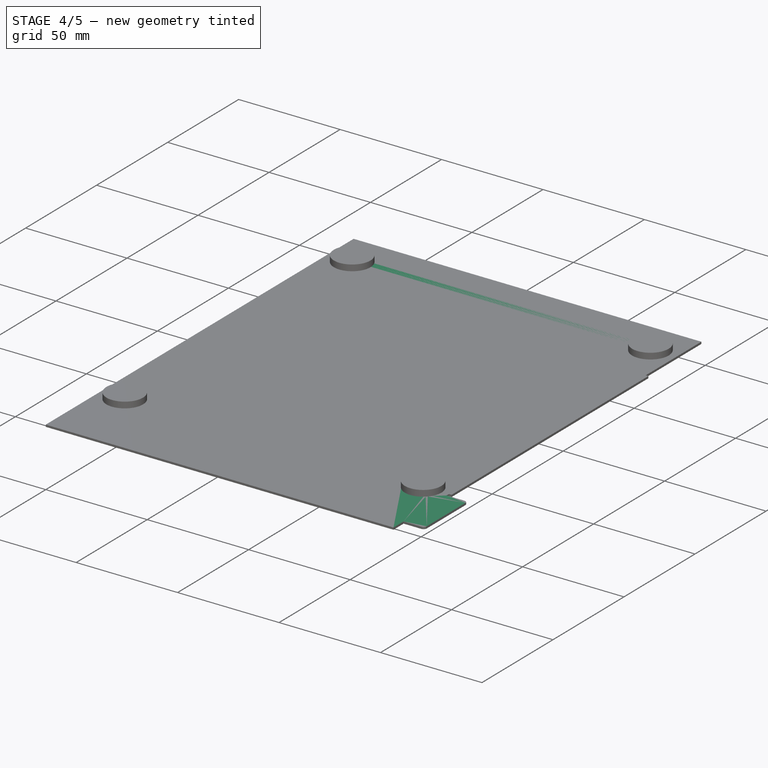
[diagram: stage 4 of 5 — iso view after this stage's code; geometry added in this stage tinted green]
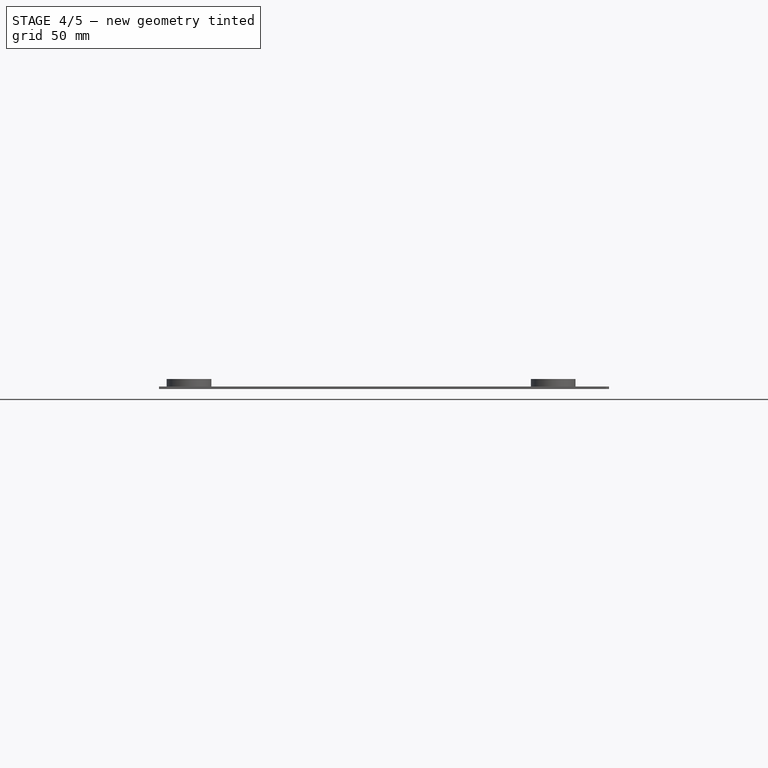
[diagram: stage 4 of 5 — front view after this stage's code; geometry added in this stage tinted green]
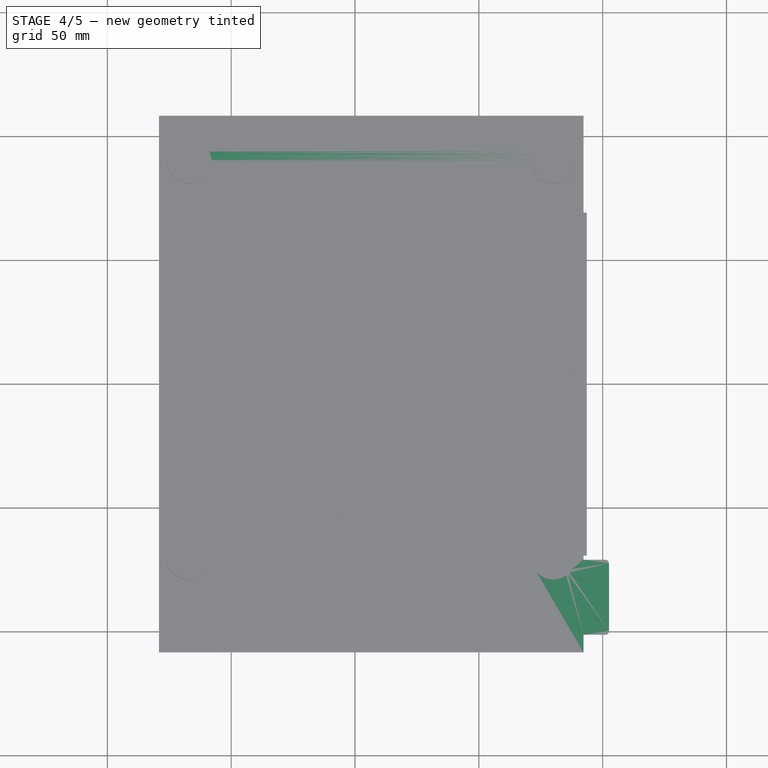
[diagram: stage 4 of 5 — top view after this stage's code; geometry added in this stage tinted green]
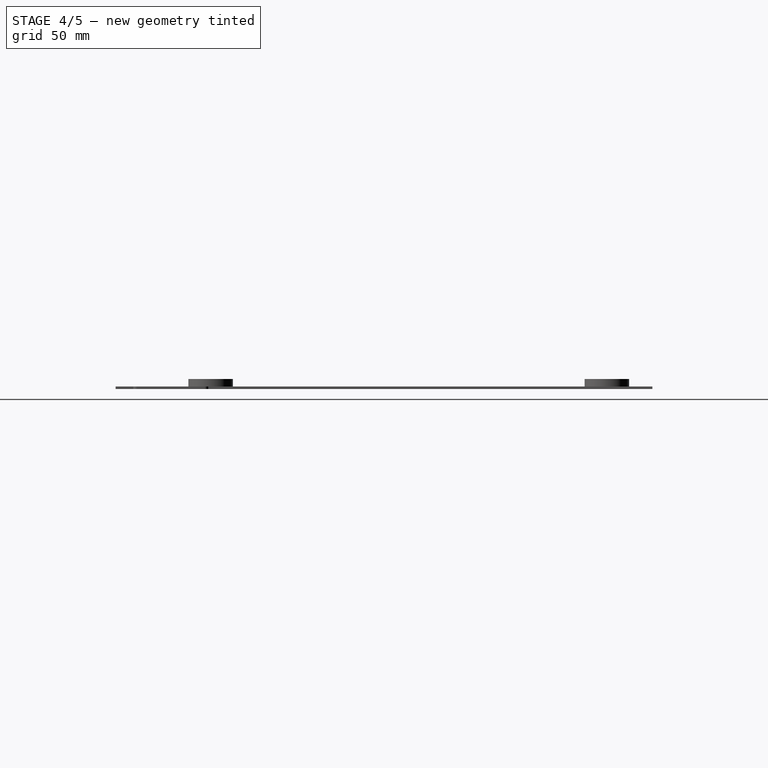
[diagram: stage 4 of 5 — right view after this stage's code; geometry added in this stage tinted green]
FEATURE [Sketcher::SketchObject] Sketch035
  AttachmentSupport = -> [DatumPlane004]
  ExternalGeometry = -> [Sketch034]
  FullyConstrained = true
  MapMode = 5
  Placement = pos=(0,-113.33,0) rot=(1,0,0;1.5708rad)
  sketch-geometry (2):
    g0: Circle CenterX=84.8 CenterY=-4.5 CenterZ=0 NormalX=0 NormalY=0 NormalZ=1 AngleXU=0 Radius=1.25
    g1: Circle CenterX=-68.2 CenterY=-4.5 CenterZ=0 NormalX=0 NormalY=0 NormalZ=1 AngleXU=0 Radius=1.25
  constraints (4):
    c: Coincident(g0,g-4)
    c: Coincident(g1,g-3)
    c: Equal(g1,g0)
    c: Diameter(g0) = 2.5
FEATURE [PartDesign::Pocket] Pocket024  label="screwpoint-frame-front-through"
  BaseFeature = -> Pocket023
  Direction = (0,1,-2e-16)
  Length = 16
  Length2 = 5
  Profile = -> Sketch035
  ReferenceAxis = -> Sketch035 [N_Axis]
  Suppressed = false
  Type = 0
FEATURE [Sketcher::SketchObject] Sketch037
  AttachmentSupport = -> [DatumPlane005]
  ExternalGeometry = -> [Sketch034]
  FullyConstrained = true
  MapMode = 5
  Placement = pos=(0,113.33,0) rot=(0,0.707107,0.707107;3.14159rad)
  sketch-geometry (2):
    g0: Circle CenterX=-84.8 CenterY=-4.5 CenterZ=0 NormalX=0 NormalY=0 NormalZ=1 AngleXU=0 Radius=2.3
    g1: Circle CenterX=68.2 CenterY=-4.5 CenterZ=0 NormalX=0 NormalY=0 NormalZ=1 AngleXU=0 Radius=2.3
  constraints (4):
    c: Coincident(g1,g-4)
    c: Coincident(g0,g-3)
    c: Equal(g0,g-3)
    c: Equal(g-4,g1)
FEATURE [PartDesign::Pocket] Pocket026  label="screwpoint-frame-rear-clearance"
  BaseFeature = -> Pocket024
  Direction = (0,-1,2e-16)
  Length = 2
  Length2 = 5
  Profile = -> Sketch037
  ReferenceAxis = -> Sketch037 [N_Axis]
  Suppressed = false
  Type = 0
FEATURE [Sketcher::SketchObject] Sketch038
  AttachmentSupport = -> [DatumPlane005]
  ExternalGeometry = -> [Sketch037]
  FullyConstrained = true
  MapMode = 5
  Placement = pos=(0,113.33,0) rot=(0,0.707107,0.707107;3.14159rad)
  sketch-geometry (2):
    g0: Circle CenterX=-84.8 CenterY=-4.5 CenterZ=0 NormalX=0 NormalY=0 NormalZ=1 AngleXU=0 Radius=1.3
    g1: Circle CenterX=68.2 CenterY=-4.5 CenterZ=0 NormalX=0 NormalY=0 NormalZ=1 AngleXU=0 Radius=1.3
  constraints (4):
    c: Equal(g0,g1)
    c: Coincident(g-4,g0)
    c: Diameter(g0) = 2.6
    c: Coincident(g1,g-3)
FEATURE [PartDesign::Pocket] Pocket027  label="screwpoint-frame-rear-through"
  BaseFeature = -> Pocket026
  Direction = (0,-1,2e-16)
  Length = 20
  Length2 = 5
  Profile = -> Sketch038
  ReferenceAxis = -> Sketch038 [N_Axis]
  Suppressed = false
  Type = 0
FEATURE [PartDesign::Chamfer] Chamfer002
  Angle = 45
  Base = -> Pocket027 [Edge100]
  BaseFeature = -> Pocket027
  ChamferType = 0
  FlipDirection = false
  Refine = true
  Size = 1
  Size2 = 1
  SupportTransform = false
  Suppressed = false
  UseAllEdges = false
FEATURE [PartDesign::CoordinateSystem] LCS_0003  label="frontface"
  AttacherType = Attacher::AttachEngine3D
  AttachmentSupport = -> [Pad009]
  MapMode = 45
  Placement = pos=(-1.2e-15,8e-16,-2) rot=(0,1,0;3.14159rad)
FEATURE [PartDesign::Body] magnet
  Group = -> [LCS_0003,Sketch043,Pad009]
  Origin = -> Origin007
  Tip = -> Pad009
FEATURE [App::Link] internal_frame  label="internal-frame001"
  AttachedBy = #DatumPlane002
  AttachedTo = Parent Assembly#LCS_Origin
  AttachmentOffset = pos=(0,0,-8) rot=(1,0,0;3.14159rad)
  LinkPlacement = pos=(0,5e-16,0) rot=(0,0,1;0rad)
  LinkedObject = -> Body002
  Placement = pos=(0,5e-16,0) rot=(0,0,1;0rad)
  SolverId = Asm4EE
  expr: Placement = LCS_Origin.Placement * AttachmentOffset * DatumPlane002.Placement ^ -1
FEATURE [Sketcher::SketchObject] Sketch  label="extra-trusses-sketch"
  AttachmentSupport = -> [DatumPlane002]
  FullyConstrained = false
  MapMode = 5
  Placement = pos=(0,0,-8) rot=(1,0,0;3.14159rad)
  sketch-geometry (19):
    g0: LineSegment StartX=2.70492 StartY=24 StartZ=0 EndX=2.70492 EndY=22 EndZ=0
    g1: LineSegment StartX=2.70492 StartY=22 StartZ=0 EndX=30 EndY=22 EndZ=0
    g2: LineSegment StartX=30 StartY=22 StartZ=0 EndX=30 EndY=24 EndZ=0
    g3: LineSegment StartX=30 StartY=24 StartZ=0 EndX=2.70492 EndY=24 EndZ=0
    g4: LineSegment StartX=2.50997 StartY=-8 StartZ=0 EndX=2.50997 EndY=-10 EndZ=0
    g5: LineSegment StartX=2.50997 StartY=-10 StartZ=0 EndX=30 EndY=-10 EndZ=0
    g6: LineSegment StartX=30 StartY=-10 StartZ=0 EndX=30 EndY=-8 EndZ=0
    g7: LineSegment StartX=30 StartY=-8 StartZ=0 EndX=2.50997 EndY=-8 EndZ=0
    g8: LineSegment StartX=1.73116 StartY=-40 StartZ=0 EndX=1.73116 EndY=-42 EndZ=0
    g9: LineSegment StartX=1.73116 StartY=-42 StartZ=0 EndX=30 EndY=-42 EndZ=0
    g10: LineSegment StartX=30 StartY=-42 StartZ=0 EndX=30 EndY=-40 EndZ=0
    g11: LineSegment StartX=30 StartY=-40 StartZ=0 EndX=1.73116 EndY=-40 EndZ=0
    g12: LineSegment StartX=2.94796 StartY=-78 StartZ=0 EndX=2.94796 EndY=-80 EndZ=0
    g13: LineSegment StartX=2.94796 StartY=-80 StartZ=0 EndX=30 EndY=-80 EndZ=0
    g14: LineSegment StartX=30 StartY=-80 StartZ=0 EndX=30 EndY=-78 EndZ=0
    g15: LineSegment StartX=30 StartY=-78 StartZ=0 EndX=2.94796 EndY=-78 EndZ=0
    g16: LineSegment StartX=30 StartY=22 StartZ=0 EndX=30 EndY=-8 EndZ=0
    g17: LineSegment StartX=30 StartY=-10 StartZ=0 EndX=30 EndY=-40 EndZ=0
    g18: LineSegment StartX=30 StartY=-42 StartZ=0 EndX=30 EndY=-78 EndZ=0
  constraints (47):
    c: Coincident(g0,g1)
    c: Coincident(g1,g2)
    c: Coincident(g2,g3)
    c: Coincident(g3,g0)
    c: Vertical(g0)
    c: Vertical(g2)
    c: Horizontal(g1)
    c: Horizontal(g3)
    c: Coincident(g4,g5)
    c: Coincident(g5,g6)
    c: Coincident(g6,g7)
    c: Coincident(g7,g4)
    c: Vertical(g4)
    c: Vertical(g6)
    c: Horizontal(g5)
    c: Horizontal(g7)
    c: Coincident(g8,g9)
    c: Coincident(g9,g10)
    c: Coincident(g10,g11)
    c: Coincident(g11,g8)
    c: Vertical(g8)
    c: Vertical(g10)
    c: Horizontal(g9)
    c: Horizontal(g11)
    c: Coincident(g12,g13)
    c: Coincident(g13,g14)
    c: Coincident(g14,g15)
    c: Coincident(g15,g12)
    c: Vertical(g12)
    c: Vertical(g14)
    c: Horizontal(g13)
    c: Horizontal(g15)
    c: Equal(g14,g10)
    c: Equal(g10,g6)
    c: Equal(g6,g2)
    c: DistanceY(g2,g2) = 2
    c: Coincident(g1,g16)
    c: Coincident(g16,g6)
    c: Vertical(g16)
    c: Coincident(g5,g17)
    c: Coincident(g17,g10)
    c: Vertical(g17)
    c: Coincident(g9,g18)
    c: Coincident(g18,g14)
    c: Vertical(g18)
    c: Equal(g17,g16)
    c: DistanceY(g-1,g2) = 24
FEATURE [PartDesign::Pad] Pad  label="cable-guide-bars"
  BaseFeature = -> Pocket028
  Direction = (0,0,-1)
  Length = 1
  Length2 = 10
  Profile = -> Sketch
  ReferenceAxis = -> Sketch [N_Axis]
  Refine = true
  Reversed = true
  Suppressed = false
  Type = 0
FEATURE [PartDesign::Plane] DatumPlane006  label="reference-plane"
  Length = 221.368
  Placement = pos=(0,0,-9) rot=(1,0,0;3.14159rad)
  ResizeMode = 0
  Width = 256.384
FEATURE [PartDesign::SubShapeBinder] Binder  label="PCB-cutout-shape"
  BindCopyOnChange = 0
  BindMode = 0
  ClaimChildren = false
  Context = -> Body003 [Binder.]
  Fuse = false
  MakeFace = true
  OffsetFill = false
  OffsetIntersection = false
  OffsetJoinType = 0
  OffsetOpenResult = false
  PartialLoad = false
  Refine = true
  Relative = true
  Support = -> [Body001[Pocket005.Sketch012.]]
  _Version = 2
FEATURE [PartDesign::SubShapeBinder] Binder001  label="internal-frame-bulk"
  BindCopyOnChange = 0
  BindMode = 0
  ClaimChildren = false
  Context = -> Body003 [Binder001.]
  Fuse = false
  MakeFace = true
  OffsetFill = false
  OffsetIntersection = false
  OffsetJoinType = 0
  OffsetOpenResult = false
  PartialLoad = false
  Refine = true
  Relative = true
  Support = -> [Body002[Pad008.Sketch017.]]
  _Version = 2
FEATURE [Sketcher::SketchObject] Sketch044
  AttachmentSupport = -> [DatumPlane006]
  ExternalGeometry = -> [Binder,Binder001]
  FullyConstrained = false
  MapMode = 5
  Placement = pos=(0,0,-9) rot=(1,0,0;3.14159rad)
  sketch-geometry (15):
    g0: LineSegment StartX=-79.145 StartY=108.35 StartZ=0 EndX=-79.145 EndY=-108.35 EndZ=0
    g1: LineSegment StartX=-79.145 StartY=-108.35 StartZ=0 EndX=92.255 EndY=-108.35 EndZ=0
    g2: LineSegment StartX=92.255 StartY=-108.35 StartZ=0 EndX=92.255 EndY=-69.2062 EndZ=0
    g3: LineSegment StartX=92.2465 StartY=70.9333 StartZ=0 EndX=101.039 EndY=70.9333 EndZ=0
    g4: ArcOfCircle CenterX=101.039 CenterY=72.4333 CenterZ=0 NormalX=0 NormalY=0 NormalZ=1 AngleXU=0 Radius=1.5 StartAngle=4.71239 EndAngle=6.28319
    g5: LineSegment StartX=102.539 StartY=72.4333 StartZ=0 EndX=102.539 EndY=99.7237 EndZ=0
    g6: ArcOfCircle CenterX=101.039 CenterY=99.7237 CenterZ=0 NormalX=0 NormalY=0 NormalZ=1 AngleXU=0 Radius=1.5 StartAngle=-4.4e-15 EndAngle=1.5708
    g7: LineSegment StartX=101.039 StartY=101.224 StartZ=0 EndX=92.2465 EndY=101.224 EndZ=0
    g8: LineSegment StartX=92.2465 StartY=101.224 StartZ=0 EndX=92.2465 EndY=108.35 EndZ=0
    g9: LineSegment StartX=92.2465 StartY=108.35 StartZ=0 EndX=-79.145 EndY=108.35 EndZ=0
    g10: LineSegment StartX=92.2465 StartY=101.224 StartZ=0 EndX=92.2465 EndY=70.9333 EndZ=0
    g11: LineSegment StartX=92.2465 StartY=69.2593 StartZ=0 EndX=93.5443 EndY=69.2593 EndZ=0
    g12: LineSegment StartX=93.5443 StartY=69.2593 StartZ=0 EndX=93.5443 EndY=-69.2062 EndZ=0
    g13: LineSegment StartX=93.5443 StartY=-69.2062 StartZ=0 EndX=92.255 EndY=-69.2062 EndZ=0
    g14: LineSegment StartX=92.2465 StartY=69.2593 StartZ=0 EndX=92.2465 EndY=70.9333 EndZ=0
  constraints (34):
    c: Vertical(g0)
    c: Coincident(g0,g1)
    c: Horizontal(g1)
    c: Coincident(g1,g2)
    c: Vertical(g2)
    c: Coincident(g14,g3)
    c: Tangent(g3,g4) = -1.5708
    c: Tangent(g4,g5) = -1.5708
    c: Tangent(g5,g6) = -1.5708
    c: Tangent(g6,g7) = -1.5708
    c: Coincident(g7,g8)
    c: Vertical(g8)
    c: Coincident(g8,g9)
    c: Coincident(g9,g0)
    c: Horizontal(g9)
    c: Vertical(g5)
    c: Horizontal(g7)
    c: Horizontal(g3)
    c: Coincident(g7,g10)
    c: Coincident(g10,g14)
    c: Vertical(g10)
    c: Coincident(g4,g-4)
    c: Coincident(g-3,g6)
    c: Equal(g-3,g6)
    c: Coincident(g1,g-6)
    c: Coincident(g0,g-5)
    c: Coincident(g11,g12)
    c: Vertical(g12)
    c: Coincident(g12,g13)
    c: Horizontal(g13)
    c: Horizontal(g11)
    c: Coincident(g2,g13)
    c: Coincident(g14,g11)
    c: Vertical(g14)
FEATURE [PartDesign::Pad] Pad010
  Direction = (0,0,-1)
  Length = 1
  Length2 = 10
  Placement = pos=(0,0,-9) rot=(1,0,0;3.14159rad)
  Profile = -> Sketch044
  ReferenceAxis = -> Sketch044 [N_Axis]
  Refine = true
  Reversed = true
  Suppressed = false
  Type = 0
FEATURE [Sketcher::SketchObject] Sketch045  label="bumpon locations"
  AttachmentSupport = -> [DatumPlane002]
  FullyConstrained = true
  MapMode = 5
  Placement = pos=(0,0,-8) rot=(1,0,0;3.14159rad)
  sketch-geometry (8):
    g0: Circle CenterX=-67 CenterY=70 CenterZ=0 NormalX=0 NormalY=0 NormalZ=1 AngleXU=0 Radius=6.35
    g1: Circle CenterX=80 CenterY=70 CenterZ=0 NormalX=0 NormalY=0 NormalZ=1 AngleXU=0 Radius=6.35
    g2: Circle CenterX=80 CenterY=-90 CenterZ=0 NormalX=0 NormalY=0 NormalZ=1 AngleXU=0 Radius=6.35
    g3: Circle CenterX=-67 CenterY=-90 CenterZ=0 NormalX=0 NormalY=0 NormalZ=1 AngleXU=0 Radius=6.35
    g4: LineSegment StartX=-67 StartY=70 StartZ=0 EndX=-67 EndY=-90 EndZ=0
    g5: LineSegment StartX=-67 StartY=-90 StartZ=0 EndX=80 EndY=-90 EndZ=0
    g6: LineSegment StartX=80 StartY=-90 StartZ=0 EndX=80 EndY=70 EndZ=0
    g7: LineSegment StartX=80 StartY=70 StartZ=0 EndX=-67 EndY=70 EndZ=0
  constraints (20):
    c: Equal(g1,g2)
    c: Equal(g2,g3)
    c: Diameter(g0) = 12.7
    c: Coincident(g4,g5)
    c: Coincident(g5,g6)
    c: Coincident(g6,g7)
    c: Coincident(g7,g4)
    c: Vertical(g4)
    c: Vertical(g6)
    c: Horizontal(g5)
    c: Horizontal(g7)
    c: Coincident(g4,g0)
    c: Coincident(g5,g2)
    c: Coincident(g1,g6)
    c: Coincident(g3,g4)
    c: DistanceY(g-1,g1) = 70
    c: Equal(g0,g1)
    c: DistanceX(g0,g-1) = 67
    c: DistanceX(g-1,g1) = 80
    c: DistanceY(g2,g-1) = 90
FEATURE [PartDesign::SubShapeBinder] Binder002  label="bumpon-locations"
  BindCopyOnChange = 0
  BindMode = 0
  ClaimChildren = false
  Context = -> Body003 [Binder002.]
  Fuse = false
  MakeFace = true
  OffsetFill = false
  OffsetIntersection = false
  OffsetJoinType = 0
  OffsetOpenResult = false
  PartialLoad = false
  Refine = true
  Relative = true
  Support = -> [Body002[Sketch045.]]
  _Version = 2
FEATURE [Sketcher::SketchObject] Sketch046
  AttachmentSupport = -> [DatumPlane006]
  ExternalGeometry = -> [Binder002]
  FullyConstrained = false
  MapMode = 5
  Placement = pos=(0,0,-9) rot=(1,0,0;3.14159rad)
  sketch-geometry (4):
    g0: Circle CenterX=-67.0755 CenterY=70 CenterZ=0 NormalX=0 NormalY=0 NormalZ=1 AngleXU=0 Radius=9
    g1: Circle CenterX=80 CenterY=70 CenterZ=0 NormalX=0 NormalY=0 NormalZ=1 AngleXU=0 Radius=9
    g2: Circle CenterX=80 CenterY=-90 CenterZ=0 NormalX=0 NormalY=0 NormalZ=1 AngleXU=0 Radius=9
    g3: Circle CenterX=-67 CenterY=-90 CenterZ=0 NormalX=0 NormalY=0 NormalZ=1 AngleXU=0 Radius=9
  constraints (7):
    c: Coincident(g1,g-4)
    c: Coincident(g2,g-5)
    c: Coincident(g3,g-6)
    c: Equal(g3,g0)
    c: Equal(g0,g1)
    c: Equal(g1,g2)
    c: Diameter(g1) = 18
FEATURE [PartDesign::Pad] Pad011  label="bumpon-reinforcement"
  BaseFeature = -> Pad010
  Direction = (0,0,-1)
  Length = 4
  Length2 = 10
  Placement = pos=(0,0,-9) rot=(1,0,0;3.14159rad)
  Profile = -> Sketch046
  ReferenceAxis = -> Sketch046 [N_Axis]
  Refine = true
  Reversed = true
  Suppressed = false
  Type = 0
FEATURE [App::Link] bumpon
  AttachedBy = #mounting_surface
  AttachedTo = Back_panel#bumppon_A
  AttachmentOffset = pos=(0,0,0) rot=(0,0,1;3.14159rad)
  LinkPlacement = pos=(-54.6125,100,-7) rot=(1,0,0;3.14159rad)
  LinkedObject = -> <external 3M_bumpon_SJ5312.FCStd>#Body
  Placement = pos=(-54.6125,100,-7) rot=(1,0,0;3.14159rad)
  SolverId = Asm4EE
  expr: Placement = Back_panel.Placement * bumppon_A.Placement * AttachmentOffset * _M_bumpon_SJ5312#mounting_surface.Placement ^ -1
FEATURE [PartDesign::CoordinateSystem] bumppon_A  label="bumppon-A"
  AttacherType = Attacher::AttachEngine3D
  AttachmentSupport = -> [Pocket032]
  MapMode = 45
  Placement = pos=(-54.6125,100,-7) rot=(0,0,1;0rad)
FEATURE [PartDesign::CoordinateSystem] bumppon_B  label="bumppon-B"
  AttacherType = Attacher::AttachEngine3D
  AttachmentSupport = -> [Pocket032]
  MapMode = 45
  Placement = pos=(80,90,-6.5) rot=(0,0,1;0rad)
FEATURE [PartDesign::CoordinateSystem] bumppon_C  label="bumppon-C"
  AttacherType = Attacher::AttachEngine3D
  AttachmentSupport = -> [Pocket029]
  MapMode = 45
  Placement = pos=(-67,90,-6.5) rot=(0,0,1;0rad)
FEATURE [PartDesign::CoordinateSystem] bumppon_D  label="bumppon-D"
  AttacherType = Attacher::AttachEngine3D
  AttachmentSupport = -> [Pocket029]
  MapMode = 45
  Placement = pos=(80,90,-6.5) rot=(0,0,1;0rad)
FEATURE [App::Link] Back_panel  label="Back-panel001"
  LinkedObject = -> Body003
FEATURE [App::Link] bumpon001
  AttachedBy = #mounting_surface
  AttachedTo = Back_panel#bumppon_B
  LinkPlacement = pos=(80,90,-6.5) rot=(0,-1,0;3.14159rad)
  LinkedObject = -> <external 3M_bumpon_SJ5312.FCStd>#Body
  Placement = pos=(80,90,-6.5) rot=(0,-1,0;3.14159rad)
  SolverId = Asm4EE
  expr: Placement = Back_panel.Placement * bumppon_B.Placement * AttachmentOffset * _M_bumpon_SJ5312#mounting_surface.Placement ^ -1
FEATURE [App::Link] bumpon002
  AttachedBy = #mounting_surface
  AttachedTo = Back_panel#bumppon_C
  LinkPlacement = pos=(-67,90,-6.5) rot=(0,-1,0;3.14159rad)
  LinkedObject = -> <external 3M_bumpon_SJ5312.FCStd>#Body
  Placement = pos=(-67,90,-6.5) rot=(0,-1,0;3.14159rad)
  SolverId = Asm4EE
  expr: Placement = Back_panel.Placement * bumppon_C.Placement * AttachmentOffset * _M_bumpon_SJ5312#mounting_surface.Placement ^ -1
FEATURE [App::Link] bumpon003
  AttachedBy = #mounting_surface
  AttachedTo = Back_panel#bumppon_D
  LinkPlacement = pos=(80,90,-6.5) rot=(0,-1,0;3.14159rad)
  LinkedObject = -> <external 3M_bumpon_SJ5312.FCStd>#Body
  Placement = pos=(80,90,-6.5) rot=(0,-1,0;3.14159rad)
  SolverId = Asm4EE
  expr: Placement = Back_panel.Placement * bumppon_D.Placement * AttachmentOffset * _M_bumpon_SJ5312#mounting_surface.Placement ^ -1
FEATURE [App::Part] Assembly  label="freezer-display-assembly"
  AssemblyType = Part::Link
  Group = -> [LCS_Origin,Constraints,Variables,Configurations,EPD_10_3_inch,FPC_to_FFC,PCB_assembly,Screw,internal_frame,bumpon,Back_panel,bumpon001,bumpon002,bumpon003]
  Origin = -> Origin
  Type = Assembly
FEATURE [PartDesign::Plane] DatumPlane007  label="grip-side"
  Length = 154.963
  Placement = pos=(-87.125,0,0) rot=(0.57735,-0.57735,-0.57735;2.0944rad)
  ResizeMode = 0
  Width = 66.6331
FEATURE [Sketcher::SketchObject] Sketch056
  AttachmentSupport = -> [DatumPlane007]
  FullyConstrained = true
  MapMode = 5
  Placement = pos=(-87.125,0,0) rot=(0.57735,-0.57735,-0.57735;2.0944rad)
  sketch-geometry (2):
    g0: Circle CenterX=-54.5 CenterY=-4.5 CenterZ=0 NormalX=0 NormalY=0 NormalZ=1 AngleXU=0 Radius=2.25
    g1: Circle CenterX=54.5 CenterY=-4.5 CenterZ=0 NormalX=0 NormalY=0 NormalZ=1 AngleXU=0 Radius=2.25
  constraints (5):
    c: Symmetric(g1,g0,g-2)
    c: Equal(g0,g1)
    c: Diameter(g1) = 4.5
    c: DistanceY(g0,g-1) = 4.5
    c: DistanceX(g0,g-1) = 54.5
FEATURE [PartDesign::Hole] Hole  label="screwpoint-frame-side"
  BaseFeature = -> Chamfer002
  CustomThreadClearance = 0
  Depth = 25
  DepthType = 0
  Diameter = 2.7
  DrillForDepth = false
  DrillPoint = 1
  DrillPointAngle = 118
  HoleCutCountersinkAngle = 90
  HoleCutCustomValues = false
  HoleCutDepth = 2
  HoleCutDiameter = 4.6
  HoleCutType = 1
  ModelThread = false
  Profile = -> Sketch056
  Refine = true
  Suppressed = false
  Tapered = false
  TaperedAngle = 90
  ThreadClass = 0
  ThreadDepth = 25
  ThreadDepthType = 0
  ThreadDirection = 0
  ThreadFit = 1
  ThreadSize = 8
  ThreadType = 1
  Threaded = false
  UseCustomThreadClearance = false
  expr: HoleCutDiameter = 4.6
FEATURE [Sketcher::SketchObject] Sketch058
  AttachmentOffset = pos=(0,0,12) rot=(0,0,1;0rad)
  AttachmentSupport = -> [XZ_Plane004]
  FullyConstrained = false
  MapMode = 5
  Placement = pos=(0,-12,2.7e-15) rot=(1,0,0;1.5708rad)
  sketch-geometry (4):
    g0: LineSegment StartX=92 StartY=-8 StartZ=0 EndX=96.3689 EndY=-8 EndZ=0
    g1: LineSegment StartX=96.3689 StartY=-8 StartZ=0 EndX=96.3689 EndY=-6.4 EndZ=0
    g2: LineSegment StartX=96.3689 StartY=-6.4 StartZ=0 EndX=92 EndY=-6.4 EndZ=0
    g3: LineSegment StartX=92 StartY=-6.4 StartZ=0 EndX=92 EndY=-8 EndZ=0
  constraints (10):
    c: Horizontal(g0)
    c: Coincident(g0,g1)
    c: Vertical(g1)
    c: Coincident(g1,g2)
    c: Horizontal(g2)
    c: Coincident(g2,g3)
    c: Coincident(g3,g0)
    c: Vertical(g3)
    c: DistanceY(g3,g3) = 1.6
    c: DistanceY(g0,g-1) = 8
FEATURE [PartDesign::Pocket] Pocket037  label="backpanel-latch-nook"
  BaseFeature = -> Hole
  Direction = (0,1,-2e-16)
  Length = 6
  Length2 = 5
  Midplane = true
  Profile = -> Sketch058
  ReferenceAxis = -> Sketch058 [N_Axis]
  Refine = true
  Suppressed = false
  Type = 0
FEATURE [PartDesign::Mirrored] Mirrored
  BaseFeature = -> Pocket037
  MirrorPlane = -> XZ_Plane004
  Originals = -> [Pocket037]
  Refine = true
  Suppressed = false
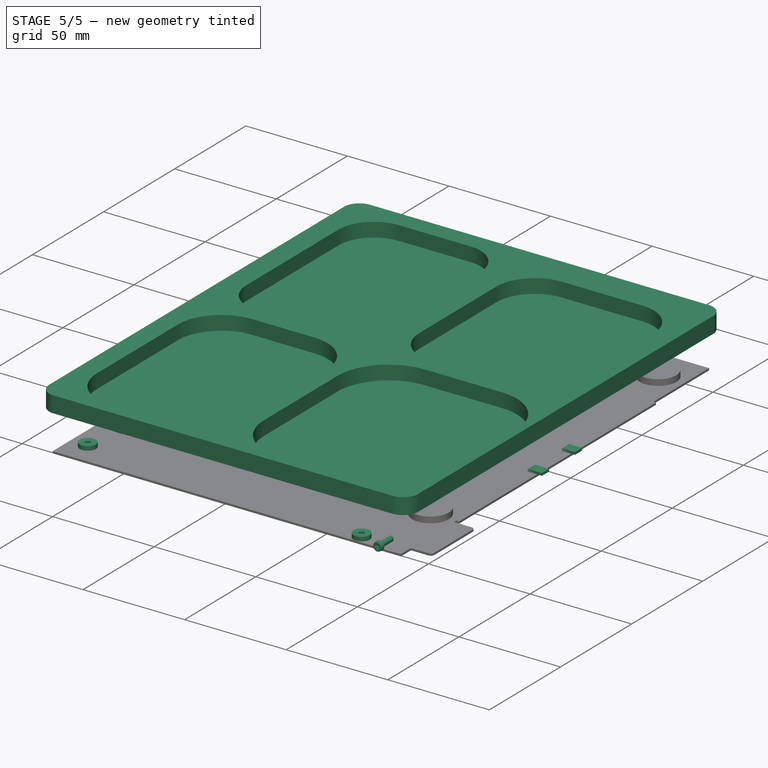
[diagram: stage 5 of 5 — iso view after this stage's code; geometry added in this stage tinted green]
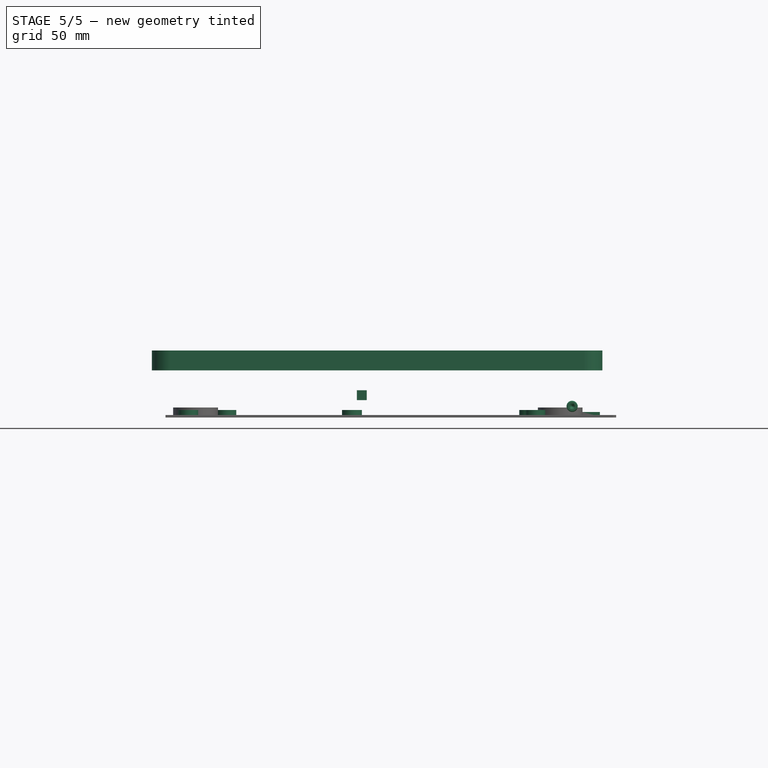
[diagram: stage 5 of 5 — front view after this stage's code; geometry added in this stage tinted green]
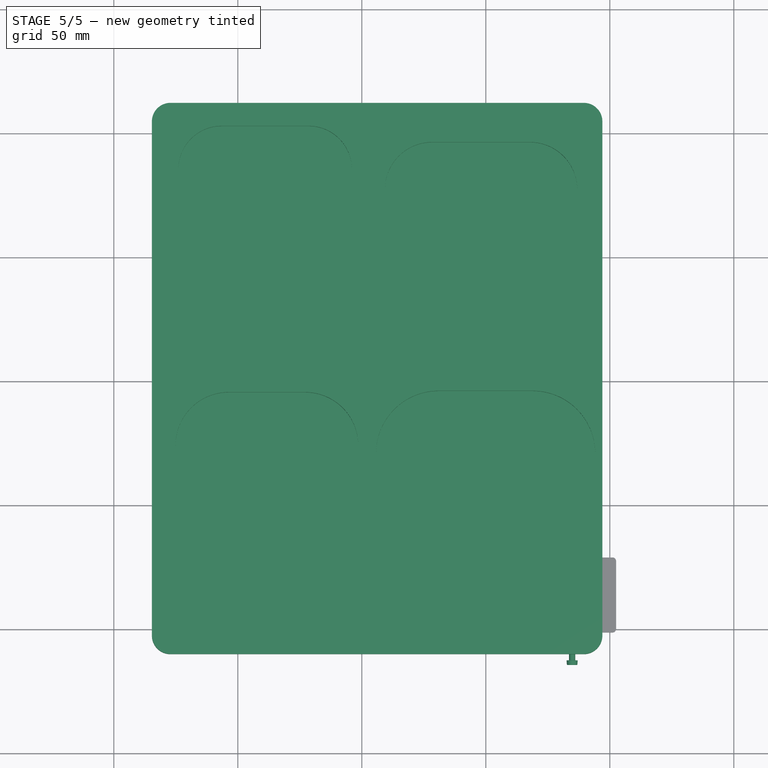
[diagram: stage 5 of 5 — top view after this stage's code; geometry added in this stage tinted green]
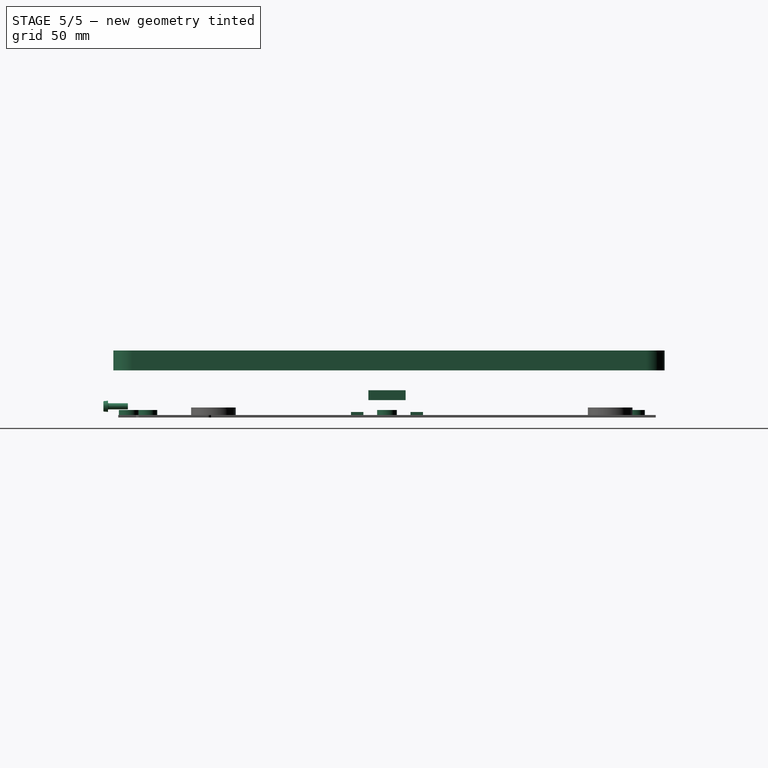
[diagram: stage 5 of 5 — right view after this stage's code; geometry added in this stage tinted green]
FEATURE [PartDesign::CoordinateSystem] LCS_Origin
  AttacherType = Attacher::AttachEngine3D
  AttachmentSupport = -> [X_Axis]
  MapMode = 2
FEATURE [App::DocumentObjectGroup] Constraints
FEATURE [App::FeaturePython] Variables  # WARN: FeaturePython — macro-defined, semantics opaque (R4)
  Type = App::PropertyContainer
FEATURE [App::DocumentObjectGroup] Configurations
FEATURE [App::Link] EPD_10_3_inch  label="EPD_10.3-inch"
  AttachedBy = #display_center
  AttachedTo = Parent Assembly#LCS_Origin
  LinkPlacement = pos=(6e-16,8e-16,-0.78) rot=(0,0,1;0rad)
  LinkedObject = -> <external waveshare_10.3_1872x1404_EPD.FCStd>#Body
  Placement = pos=(6e-16,8e-16,-0.78) rot=(0,0,1;0rad)
  SolverId = Asm4EE
  expr: Placement = LCS_Origin.Placement * AttachmentOffset * waveshare_10_3_1872x1404_EPD#display_center.Placement ^ -1
FEATURE [Image::ImagePlane] static_ui
  XSize = 157.1
  YSize = 209.466
FEATURE [App::Link] FPC_to_FFC  label="FPC-to-FFC"
  AttachedBy = #LCS_0
  AttachedTo = Parent Assembly#LCS_Origin
  AttachmentOffset = pos=(47,59,-3) rot=(0.707107,0.707107,0;3.14159rad)
  LinkPlacement = pos=(47,59,-3) rot=(0.707107,0.707107,0;3.14159rad)
  LinkedObject = -> <external FPC_to_FFC_board.FCStd>#FPC_to_FFC
  Placement = pos=(47,59,-3) rot=(0.707107,0.707107,0;3.14159rad)
  SolverId = Asm4EE
  expr: Placement = LCS_Origin.Placement * AttachmentOffset * FPC_to_FFC_board#LCS_0.Placement ^ -1
FEATURE [Sketcher::SketchObject] Sketch004
  AttachmentOffset = pos=(0,0,10) rot=(0,0,1;0rad)
  AttachmentSupport = -> [XY_Plane003]
  FullyConstrained = false
  MapMode = 5
  Placement = pos=(0,0,10) rot=(0,0,1;0rad)
  sketch-geometry (10):
    g0: ArcOfCircle CenterX=-77.1526 CenterY=104.437 CenterZ=0 NormalX=0 NormalY=0 NormalZ=1 AngleXU=0 Radius=7.5 StartAngle=1.5708 EndAngle=3.14159
    g1: LineSegment StartX=-77.1526 StartY=111.937 StartZ=0 EndX=89.4898 EndY=111.937 EndZ=0
    g2: ArcOfCircle CenterX=89.4898 CenterY=104.437 CenterZ=0 NormalX=0 NormalY=0 NormalZ=1 AngleXU=0 Radius=7.5 StartAngle=0 EndAngle=1.5708
    g3: LineSegment StartX=96.9898 StartY=104.437 StartZ=0 EndX=96.9898 EndY=-102.808 EndZ=0
    g4: ArcOfCircle CenterX=89.4898 CenterY=-102.808 CenterZ=0 NormalX=0 NormalY=0 NormalZ=1 AngleXU=0 Radius=7.5 StartAngle=4.71239 EndAngle=6.28319
    g5: LineSegment StartX=89.4898 StartY=-110.308 StartZ=0 EndX=-77.1526 EndY=-110.308 EndZ=0
    g6: ArcOfCircle CenterX=-77.1526 CenterY=-102.808 CenterZ=0 NormalX=0 NormalY=0 NormalZ=1 AngleXU=0 Radius=7.5 StartAngle=3.14159 EndAngle=4.71239
    g7: LineSegment StartX=-84.6526 StartY=-102.808 StartZ=0 EndX=-84.6526 EndY=104.437 EndZ=0
    g8: GeomPoint X=-84.6526 Y=111.937 Z=0
    g9: GeomPoint X=96.9898 Y=-110.308 Z=0
  constraints (20):
    c: Tangent(g0,g1) = 1.5708
    c: Tangent(g1,g2) = 1.5708
    c: Tangent(g2,g3) = 1.5708
    c: Tangent(g3,g4) = 1.5708
    c: Tangent(g4,g5) = 1.5708
    c: Tangent(g5,g6) = 1.5708
    c: Tangent(g6,g7) = 1.5708
    c: Tangent(g7,g0) = 1.5708
    c: Horizontal(g1)
    c: Horizontal(g5)
    c: Vertical(g3)
    c: Vertical(g7)
    c: Equal(g0,g2)
    c: Equal(g2,g4)
    c: Equal(g4,g6)
    c: PointOnObject(g8,g1)
    c: PointOnObject(g8,g7)
    c: PointOnObject(g9,g3)
    c: PointOnObject(g9,g5)
    c: Diameter(g4) = 15
FEATURE [PartDesign::Pad] Pad003
  Direction = (0,0,1)
  Length = 8
  Length2 = 10
  Profile = -> Sketch004
  ReferenceAxis = -> Sketch004 [N_Axis]
  Refine = true
  Suppressed = false
  Type = 0
FEATURE [Sketcher::SketchObject] Sketch005
  AttachmentSupport = -> [Pad003]
  FullyConstrained = false
  MapMode = 5
  Placement = pos=(0,0,18) rot=(0,0,1;0rad)
  sketch-geometry (40):
    g0: ArcOfCircle CenterX=-56.4829 CenterY=85.1627 CenterZ=0 NormalX=0 NormalY=0 NormalZ=1 AngleXU=0 Radius=17.496 StartAngle=1.5708 EndAngle=3.14159
    g1: LineSegment StartX=-56.4829 StartY=102.659 StartZ=0 EndX=-21.4911 EndY=102.659 EndZ=0
    g2: ArcOfCircle CenterX=-21.4911 CenterY=85.1627 CenterZ=0 NormalX=0 NormalY=0 NormalZ=1 AngleXU=0 Radius=17.496 StartAngle=1e-16 EndAngle=1.5708
    g3: LineSegment StartX=-3.99511 StartY=85.1627 StartZ=0 EndX=-3.99511 EndY=20.7193 EndZ=0
    g4: ArcOfCircle CenterX=-21.4911 CenterY=20.7193 CenterZ=0 NormalX=0 NormalY=0 NormalZ=1 AngleXU=0 Radius=17.496 StartAngle=4.71239 EndAngle=6.28319
    g5: LineSegment StartX=-21.4911 StartY=3.22331 StartZ=0 EndX=-56.4829 EndY=3.22331 EndZ=0
    g6: ArcOfCircle CenterX=-56.4829 CenterY=20.7193 CenterZ=0 NormalX=0 NormalY=0 NormalZ=1 AngleXU=0 Radius=17.496 StartAngle=3.14159 EndAngle=4.71239
    g7: LineSegment StartX=-73.9789 StartY=20.7193 StartZ=0 EndX=-73.9789 EndY=85.1627 EndZ=0
    g8: GeomPoint X=-73.9789 Y=102.659 Z=0
    g9: GeomPoint X=-3.99511 Y=3.22331 Z=0
    g10: ArcOfCircle CenterX=28.3724 CenterY=77.0631 CenterZ=0 NormalX=0 NormalY=0 NormalZ=1 AngleXU=0 Radius=19.05 StartAngle=1.5708 EndAngle=3.14159
    g11: LineSegment StartX=28.3724 StartY=96.1131 StartZ=0 EndX=67.8034 EndY=96.1131 EndZ=0
    g12: ArcOfCircle CenterX=67.8034 CenterY=77.0631 CenterZ=0 NormalX=0 NormalY=0 NormalZ=1 AngleXU=0 Radius=19.05 StartAngle=1e-16 EndAngle=1.5708
    g13: LineSegment StartX=86.8535 StartY=77.0631 StartZ=0 EndX=86.8535 EndY=23.1482 EndZ=0
    g14: ArcOfCircle CenterX=67.8034 CenterY=23.1482 CenterZ=0 NormalX=0 NormalY=0 NormalZ=1 AngleXU=0 Radius=19.05 StartAngle=4.71239 EndAngle=6.28319
    g15: LineSegment StartX=67.8034 StartY=4.09812 StartZ=0 EndX=28.3724 EndY=4.09812 EndZ=0
    g16: ArcOfCircle CenterX=28.3724 CenterY=23.1482 CenterZ=0 NormalX=0 NormalY=0 NormalZ=1 AngleXU=0 Radius=19.05 StartAngle=3.14159 EndAngle=4.71239
    g17: LineSegment StartX=9.32233 StartY=23.1482 StartZ=0 EndX=9.32233 EndY=77.0631 EndZ=0
    g18: GeomPoint X=9.32233 Y=96.1131 Z=0
    g19: GeomPoint X=86.8535 Y=4.09812 Z=0
    g20: ArcOfCircle CenterX=-53.6616 CenterY=-26.1553 CenterZ=0 NormalX=0 NormalY=0 NormalZ=1 AngleXU=0 Radius=21.4402 StartAngle=1.5708 EndAngle=3.14159
    g21: LineSegment StartX=-53.6616 StartY=-4.71507 StartZ=0 EndX=-22.8762 EndY=-4.71507 EndZ=0
    g22: ArcOfCircle CenterX=-22.8762 CenterY=-26.1553 CenterZ=0 NormalX=0 NormalY=0 NormalZ=1 AngleXU=0 Radius=21.4402 StartAngle=1e-16 EndAngle=1.5708
    g23: LineSegment StartX=-1.43594 StartY=-26.1553 StartZ=0 EndX=-1.43594 EndY=-82.893 EndZ=0
    g24: ArcOfCircle CenterX=-22.8762 CenterY=-82.893 CenterZ=0 NormalX=0 NormalY=0 NormalZ=1 AngleXU=0 Radius=21.4402 StartAngle=4.71239 EndAngle=6.28319
    g25: LineSegment StartX=-22.8762 StartY=-104.333 StartZ=0 EndX=-53.6616 EndY=-104.333 EndZ=0
    g26: ArcOfCircle CenterX=-53.6616 CenterY=-82.893 CenterZ=0 NormalX=0 NormalY=0 NormalZ=1 AngleXU=0 Radius=21.4402 StartAngle=3.14159 EndAngle=4.71239
    g27: LineSegment StartX=-75.1018 StartY=-82.893 StartZ=0 EndX=-75.1018 EndY=-26.1553 EndZ=0
    g28: GeomPoint X=-75.1018 Y=-4.71507 Z=0
    g29: GeomPoint X=-1.43594 Y=-104.333 Z=0
    g30: ArcOfCircle CenterX=30.9968 CenterY=-29.4358 CenterZ=0 NormalX=0 NormalY=0 NormalZ=1 AngleXU=0 Radius=25.2768 StartAngle=1.5708 EndAngle=3.14159
    g31: LineSegment StartX=30.9968 StartY=-4.15898 StartZ=0 EndX=68.8382 EndY=-4.15898 EndZ=0
    g32: ArcOfCircle CenterX=68.8382 CenterY=-29.4358 CenterZ=0 NormalX=0 NormalY=0 NormalZ=1 AngleXU=0 Radius=25.2768 StartAngle=2e-16 EndAngle=1.5708
    g33: LineSegment StartX=94.115 StartY=-29.4358 StartZ=0 EndX=94.115 EndY=-80.6908 EndZ=0
    g34: ArcOfCircle CenterX=68.8382 CenterY=-80.6908 CenterZ=0 NormalX=0 NormalY=0 NormalZ=1 AngleXU=0 Radius=25.2768 StartAngle=4.71239 EndAngle=6.28319
    g35: LineSegment StartX=68.8382 StartY=-105.968 StartZ=0 EndX=30.9968 EndY=-105.968 EndZ=0
    g36: ArcOfCircle CenterX=30.9968 CenterY=-80.6908 CenterZ=0 NormalX=0 NormalY=0 NormalZ=1 AngleXU=0 Radius=25.2768 StartAngle=3.14159 EndAngle=4.71239
    g37: LineSegment StartX=5.71998 StartY=-80.6908 StartZ=0 EndX=5.71998 EndY=-29.4358 EndZ=0
    g38: GeomPoint X=5.71998 Y=-4.15898 Z=0
    g39: GeomPoint X=94.115 Y=-105.968 Z=0
  constraints (76):
    c: Tangent(g0,g1) = 1.5708
    c: Tangent(g1,g2) = 1.5708
    c: Tangent(g2,g3) = 1.5708
    c: Tangent(g3,g4) = 1.5708
    c: Tangent(g4,g5) = 1.5708
    c: Tangent(g5,g6) = 1.5708
    c: Tangent(g6,g7) = 1.5708
    c: Tangent(g7,g0) = 1.5708
    c: Horizontal(g1)
    c: Horizontal(g5)
    c: Vertical(g3)
    c: Vertical(g7)
    c: Equal(g0,g2)
    c: Equal(g2,g4)
    c: Equal(g4,g6)
    c: PointOnObject(g8,g1)
    c: PointOnObject(g8,g7)
    c: PointOnObject(g9,g3)
    c: PointOnObject(g9,g5)
    c: Tangent(g10,g11) = 1.5708
    c: Tangent(g11,g12) = 1.5708
    c: Tangent(g12,g13) = 1.5708
    c: Tangent(g13,g14) = 1.5708
    c: Tangent(g14,g15) = 1.5708
    c: Tangent(g15,g16) = 1.5708
    c: Tangent(g16,g17) = 1.5708
    c: Tangent(g17,g10) = 1.5708
    c: Horizontal(g11)
    c: Horizontal(g15)
    c: Vertical(g13)
    c: Vertical(g17)
    c: Equal(g10,g12)
    c: Equal(g12,g14)
    c: Equal(g14,g16)
    c: PointOnObject(g18,g11)
    c: PointOnObject(g18,g17)
    c: PointOnObject(g19,g13)
    c: PointOnObject(g19,g15)
    c: Tangent(g20,g21) = 1.5708
    c: Tangent(g21,g22) = 1.5708
    c: Tangent(g22,g23) = 1.5708
    c: Tangent(g23,g24) = 1.5708
    c: Tangent(g24,g25) = 1.5708
    c: Tangent(g25,g26) = 1.5708
    c: Tangent(g26,g27) = 1.5708
    c: Tangent(g27,g20) = 1.5708
    c: Horizontal(g21)
    c: Horizontal(g25)
    c: Vertical(g23)
    c: Vertical(g27)
    c: Equal(g20,g22)
    c: Equal(g22,g24)
    c: Equal(g24,g26)
    c: PointOnObject(g28,g21)
    c: PointOnObject(g28,g27)
    c: PointOnObject(g29,g23)
    c: PointOnObject(g29,g25)
    c: Tangent(g30,g31) = 1.5708
    c: Tangent(g31,g32) = 1.5708
    c: Tangent(g32,g33) = 1.5708
    c: Tangent(g33,g34) = 1.5708
    c: Tangent(g34,g35) = 1.5708
    c: Tangent(g35,g36) = 1.5708
    c: Tangent(g36,g37) = 1.5708
    c: Tangent(g37,g30) = 1.5708
    c: Horizontal(g31)
    c: Horizontal(g35)
    c: Vertical(g33)
    c: Vertical(g37)
    c: Equal(g30,g32)
    c: Equal(g32,g34)
    c: Equal(g34,g36)
    c: PointOnObject(g38,g31)
    c: PointOnObject(g38,g37)
    c: PointOnObject(g39,g33)
    c: PointOnObject(g39,g35)
FEATURE [PartDesign::Pocket] Pocket
  BaseFeature = -> Pad003
  Direction = (0,0,-1)
  Length = 7
  Length2 = 5
  Profile = -> Sketch005
  ReferenceAxis = -> Sketch005 [N_Axis]
  Refine = true
  Suppressed = false
  Type = 0
FEATURE [Part::FeaturePython] Screw  label="M2.5x8-Screw"  # WARN: FeaturePython — macro-defined, semantics opaque (R4)
  Diameter = 3
  Invert = false
  LeftHanded = false
  Length = 4
  LengthCustom = 8
  MatchOuter = false
  OffsetAngle = 0
  Placement = pos=(84.8,-112.5,-4.5) rot=(1,0,0;1.5708rad)
  Thread = false
  Type = 53
FEATURE [Sketcher::SketchObject] Sketch043
  AttachmentSupport = -> [XY_Plane007]
  FullyConstrained = true
  MapMode = 5
  sketch-geometry (4):
    g0: LineSegment StartX=-2 StartY=7.5 StartZ=0 EndX=-2 EndY=-7.5 EndZ=0
    g1: LineSegment StartX=-2 StartY=-7.5 StartZ=0 EndX=2 EndY=-7.5 EndZ=0
    g2: LineSegment StartX=2 StartY=-7.5 StartZ=0 EndX=2 EndY=7.5 EndZ=0
    g3: LineSegment StartX=2 StartY=7.5 StartZ=0 EndX=-2 EndY=7.5 EndZ=0
  constraints (11):
    c: Coincident(g0,g1)
    c: Coincident(g1,g2)
    c: Coincident(g2,g3)
    c: Coincident(g3,g0)
    c: Vertical(g0)
    c: Vertical(g2)
    c: Horizontal(g1)
    c: Horizontal(g3)
    c: Symmetric(g0,g1,g-1)
    c: DistanceX(g3,g3) = 4
    c: DistanceY(g2,g2) = 15
FEATURE [PartDesign::Pad] Pad009
  Direction = (0,0,1)
  Length = 2
  Length2 = 2
  Profile = -> Sketch043
  ReferenceAxis = -> Sketch043 [N_Axis]
  Suppressed = false
  TaperAngle2 = 0.01
  Type = 4
FEATURE [Sketcher::SketchObject] Sketch047
  AttachmentSupport = -> [DatumPlane006]
  ExternalGeometry = -> [Binder002]
  FullyConstrained = true
  MapMode = 5
  Placement = pos=(0,0,-9) rot=(1,0,0;3.14159rad)
  sketch-geometry (4):
    g0: Circle CenterX=-67 CenterY=70 CenterZ=0 NormalX=0 NormalY=0 NormalZ=1 AngleXU=0 Radius=6.5
    g1: Circle CenterX=80 CenterY=70 CenterZ=0 NormalX=0 NormalY=0 NormalZ=1 AngleXU=0 Radius=6.5
    g2: Circle CenterX=80 CenterY=-90 CenterZ=0 NormalX=0 NormalY=0 NormalZ=1 AngleXU=0 Radius=6.5
    g3: Circle CenterX=-67 CenterY=-90 CenterZ=0 NormalX=0 NormalY=0 NormalZ=1 AngleXU=0 Radius=6.5
  constraints (8):
    c: Coincident(g0,g-3)
    c: Tangent(g1,g-5) = -1.5708
    c: Coincident(g2,g-6)
    c: Coincident(g3,g-7)
    c: Equal(g3,g2)
    c: Equal(g2,g1)
    c: Equal(g1,g0)
    c: Diameter(g1) = 13
FEATURE [PartDesign::Pocket] Pocket029  label="bumpon-cutout"
  BaseFeature = -> Pad011
  Direction = (0,0,1)
  Length = 2.6
  Length2 = 5
  Placement = pos=(0,0,-9) rot=(1,0,0;3.14159rad)
  Profile = -> Sketch047
  ReferenceAxis = -> Sketch047 [N_Axis]
  Refine = true
  Suppressed = false
  Type = 0
FEATURE [PartDesign::SubShapeBinder] Binder003  label="M2.5-screws"
  BindCopyOnChange = 0
  BindMode = 0
  ClaimChildren = false
  Context = -> Body003 [Binder003.]
  Fuse = false
  MakeFace = true
  OffsetFill = false
  OffsetIntersection = false
  OffsetJoinType = 0
  OffsetOpenResult = false
  PartialLoad = false
  Refine = true
  Relative = true
  Support = -> [Body002[Sketch048.]]
  _Version = 2
FEATURE [Sketcher::SketchObject] Sketch050
  AttachmentSupport = -> [DatumPlane006]
  ExternalGeometry = -> [Binder003]
  FullyConstrained = false
  MapMode = 5
  Placement = pos=(0,0,-9) rot=(1,0,0;3.14159rad)
  sketch-geometry (6):
    g0: Circle CenterX=-70 CenterY=0 CenterZ=0 NormalX=0 NormalY=0 NormalZ=1 AngleXU=0 Radius=4
    g1: Circle CenterX=-70 CenterY=96.6497 CenterZ=0 NormalX=0 NormalY=0 NormalZ=1 AngleXU=0 Radius=4
    g2: Circle CenterX=-4 CenterY=0 CenterZ=0 NormalX=0 NormalY=0 NormalZ=1 AngleXU=0 Radius=4
    g3: Circle CenterX=67.4746 CenterY=-100 CenterZ=0 NormalX=0 NormalY=0 NormalZ=1 AngleXU=0 Radius=4
    g4: Circle CenterX=-54.6125 CenterY=-100 CenterZ=0 NormalX=0 NormalY=0 NormalZ=1 AngleXU=0 Radius=4
    g5: Circle CenterX=70 CenterY=104.126 CenterZ=0 NormalX=0 NormalY=0 NormalZ=1 AngleXU=0 Radius=4
  constraints (6):
    c: Diameter(g0) = 8
    c: Equal(g0,g1)
    c: Equal(g1,g2)
    c: Equal(g3,g4)
    c: Equal(g4,g5)
    c: Equal(g5,g0)
FEATURE [PartDesign::Pad] Pad012  label="M2.5-reinforcements"
  BaseFeature = -> Pocket029
  Direction = (0,0,-1)
  Length = 3
  Length2 = 10
  Placement = pos=(0,0,-9) rot=(1,0,0;3.14159rad)
  Profile = -> Sketch050
  ReferenceAxis = -> Sketch050 [N_Axis]
  Refine = true
  Reversed = true
  Suppressed = false
  Type = 0
FEATURE [Sketcher::SketchObject] Sketch051
  AttachmentSupport = -> [DatumPlane006]
  ExternalGeometry = -> [Binder003]
  FullyConstrained = false
  MapMode = 5
  Placement = pos=(0,0,-9) rot=(1,0,0;3.14159rad)
  sketch-geometry (6):
    g0: Circle CenterX=-70 CenterY=0 CenterZ=0 NormalX=0 NormalY=0 NormalZ=1 AngleXU=0 Radius=2.4
    g1: Circle CenterX=-4 CenterY=0 CenterZ=0 NormalX=0 NormalY=0 NormalZ=1 AngleXU=0 Radius=2.4
    g2: Circle CenterX=67.4746 CenterY=-100 CenterZ=0 NormalX=0 NormalY=0 NormalZ=1 AngleXU=0 Radius=2.4
    g3: Circle CenterX=-54.6125 CenterY=-100 CenterZ=0 NormalX=0 NormalY=0 NormalZ=1 AngleXU=0 Radius=2.4
    g4: Circle CenterX=-70 CenterY=96.6497 CenterZ=0 NormalX=0 NormalY=0 NormalZ=1 AngleXU=0 Radius=2.4
    g5: Circle CenterX=70 CenterY=104.186 CenterZ=0 NormalX=0 NormalY=0 NormalZ=1 AngleXU=0 Radius=2.4
  constraints (5):
    c: Diameter(g5) = 4.8
    c: Equal(g1,g2)
    c: Equal(g2,g3)
    c: Equal(g3,g4)
    c: Equal(g4,g5)
FEATURE [PartDesign::Pocket] Pocket031  label="M2.5-head-cutout"
  BaseFeature = -> Pad012
  Direction = (0,0,1)
  Length = 2
  Length2 = 5
  Placement = pos=(0,0,-9) rot=(1,0,0;3.14159rad)
  Profile = -> Sketch051
  ReferenceAxis = -> Sketch051 [N_Axis]
  Refine = true
  Suppressed = false
  Type = 0
FEATURE [Sketcher::SketchObject] Sketch052
  AttachmentSupport = -> [DatumPlane006]
  ExternalGeometry = -> [Binder003]
  FullyConstrained = false
  MapMode = 5
  Placement = pos=(0,0,-9) rot=(1,0,0;3.14159rad)
  sketch-geometry (6):
    g0: Circle CenterX=-54.6125 CenterY=-100 CenterZ=0 NormalX=0 NormalY=0 NormalZ=1 AngleXU=0 Radius=1.25
    g1: Circle CenterX=67.4746 CenterY=-100 CenterZ=0 NormalX=0 NormalY=0 NormalZ=1 AngleXU=0 Radius=1.25
    g2: Circle CenterX=-4 CenterY=0 CenterZ=0 NormalX=0 NormalY=0 NormalZ=1 AngleXU=0 Radius=1.25
    g3: Circle CenterX=-70 CenterY=0 CenterZ=0 NormalX=0 NormalY=0 NormalZ=1 AngleXU=0 Radius=1.25
    g4: Circle CenterX=70 CenterY=104.13 CenterZ=0 NormalX=0 NormalY=0 NormalZ=1 AngleXU=0 Radius=1.25
    g5: Circle CenterX=-70 CenterY=96.6497 CenterZ=0 NormalX=0 NormalY=0 NormalZ=1 AngleXU=0 Radius=1.25
  constraints (4):
    c: Equal(g0,g1)
    c: Equal(g2,g3)
    c: Equal(g3,g4)
    c: Equal(g4,g5)
FEATURE [PartDesign::Pocket] Pocket032  label="M2.5-shaft-cutout"
  BaseFeature = -> Pocket031
  Direction = (0,0,1)
  Length = 5
  Length2 = 5
  Placement = pos=(0,0,-9) rot=(1,0,0;3.14159rad)
  Profile = -> Sketch052
  ReferenceAxis = -> Sketch052 [N_Axis]
  Refine = true
  Suppressed = false
  Type = 0
FEATURE [PartDesign::Body] Body001  label="SLS-frame"
  Group = -> [Sketch006,Pad004,Sketch007,Pocket001,Sketch008,Pad005,Sketch009,Pocket002,Sketch010,Pocket003,DatumPlane,Sketch011,Pocket004,DatumPlane001,Sketch012,Pocket005,Pocket023,Pocket024,Pocket026,Pocket027,Chamfer002,DatumPlane004,DatumPlane005,Sketch034,Sketch035,Sketch037,Sketch038,DatumPlane007,Sketch056,Hole,Sketch058,Pocket037,Mirrored]
  Origin = -> Origin004
  Tip = -> Mirrored
FEATURE [Sketcher::SketchObject] Sketch059
  AttachmentOffset = pos=(0,0,-1) rot=(0,0,1;0rad)
  AttachmentSupport = -> [DatumPlane006]
  FullyConstrained = false
  MapMode = 5
  Placement = pos=(0,0,-8) rot=(1,0,0;3.14159rad)
  sketch-geometry (10):
    g0: LineSegment StartX=89 StartY=14.5 StartZ=0 EndX=89 EndY=9.5 EndZ=0
    g1: LineSegment StartX=89 StartY=9.5 StartZ=0 EndX=96 EndY=9.5 EndZ=0
    g2: LineSegment StartX=96 StartY=9.5 StartZ=0 EndX=96 EndY=14.5 EndZ=0
    g3: LineSegment StartX=96 StartY=14.5 StartZ=0 EndX=89 EndY=14.5 EndZ=0
    g4: LineSegment StartX=89 StartY=-9.5 StartZ=0 EndX=89 EndY=-14.5 EndZ=0
    g5: LineSegment StartX=89 StartY=-14.5 StartZ=0 EndX=95.4116 EndY=-14.5 EndZ=0
    g6: LineSegment StartX=95.4116 StartY=-14.5 StartZ=0 EndX=95.4116 EndY=-9.5 EndZ=0
    g7: LineSegment StartX=95.4116 StartY=-9.5 StartZ=0 EndX=89 EndY=-9.5 EndZ=0
    g8: LineSegment StartX=89 StartY=14.5 StartZ=0 EndX=90.7367 EndY=12 EndZ=0
    g9: LineSegment StartX=90.7367 StartY=12 StartZ=0 EndX=89 EndY=9.5 EndZ=0
  constraints (26):
    c: Coincident(g0,g1)
    c: Coincident(g1,g2)
    c: Coincident(g2,g3)
    c: Coincident(g3,g0)
    c: Vertical(g0)
    c: Vertical(g2)
    c: Horizontal(g1)
    c: Horizontal(g3)
    c: Coincident(g4,g5)
    c: Coincident(g5,g6)
    c: Coincident(g6,g7)
    c: Coincident(g7,g4)
    c: Vertical(g4)
    c: Vertical(g6)
    c: Horizontal(g5)
    c: Horizontal(g7)
    c: DistanceY(g4,g4) = 5
    c: DistanceY(g0,g0) = 5
    c: Coincident(g0,g8)
    c: Coincident(g8,g9)
    c: Coincident(g9,g0)
    c: Equal(g9,g8)
    c: DistanceY(g-1,g8) = 12
    c: Symmetric(g0,g4,g-1)
    c: DistanceX(g-1,g0) = 89
    c: DistanceX(g3,g3) = 7
FEATURE [PartDesign::Pad] Pad013
  BaseFeature = -> Pocket032
  Direction = (0,0,-1)
  Length = 1.2
  Length2 = 10
  Placement = pos=(0,0,-9) rot=(1,0,0;3.14159rad)
  Profile = -> Sketch059
  ReferenceAxis = -> Sketch059 [N_Axis]
  Refine = true
  Reversed = true
  Suppressed = false
  Type = 0
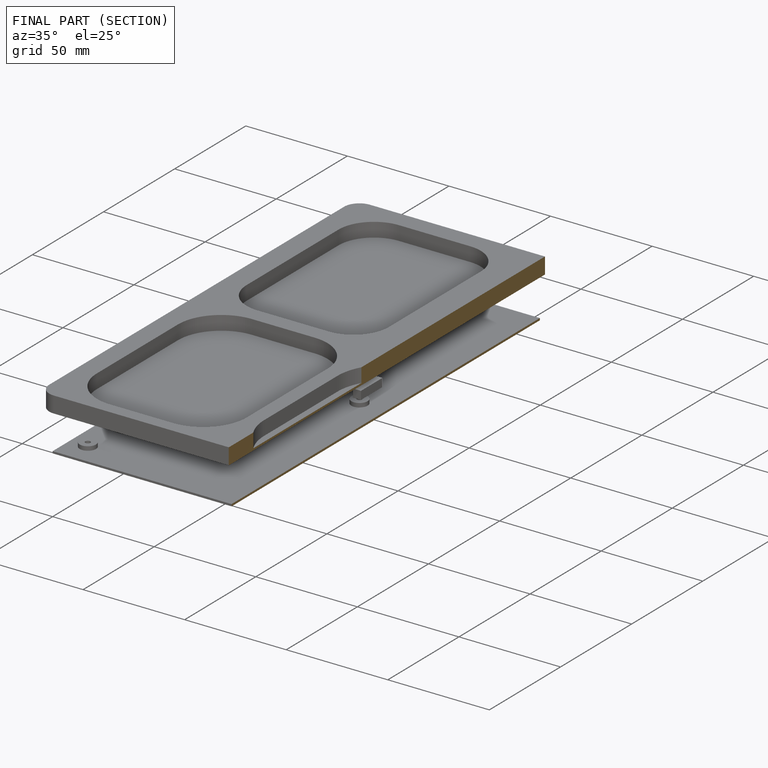
[diagram: finished part — half-section view (interior)]
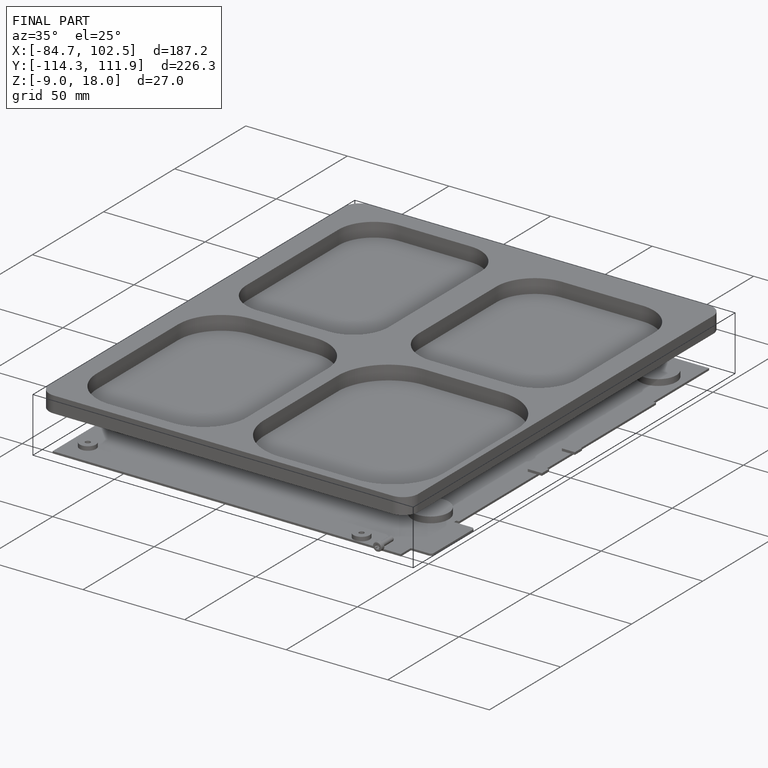
[diagram: finished part — iso view with bounding-box wireframe]
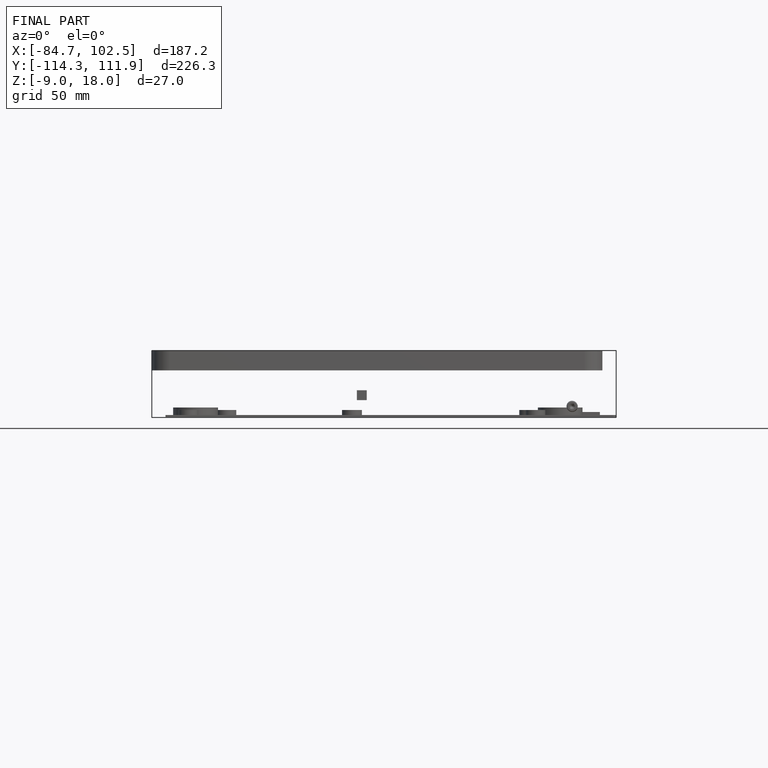
[diagram: finished part — front view with bounding-box wireframe]
